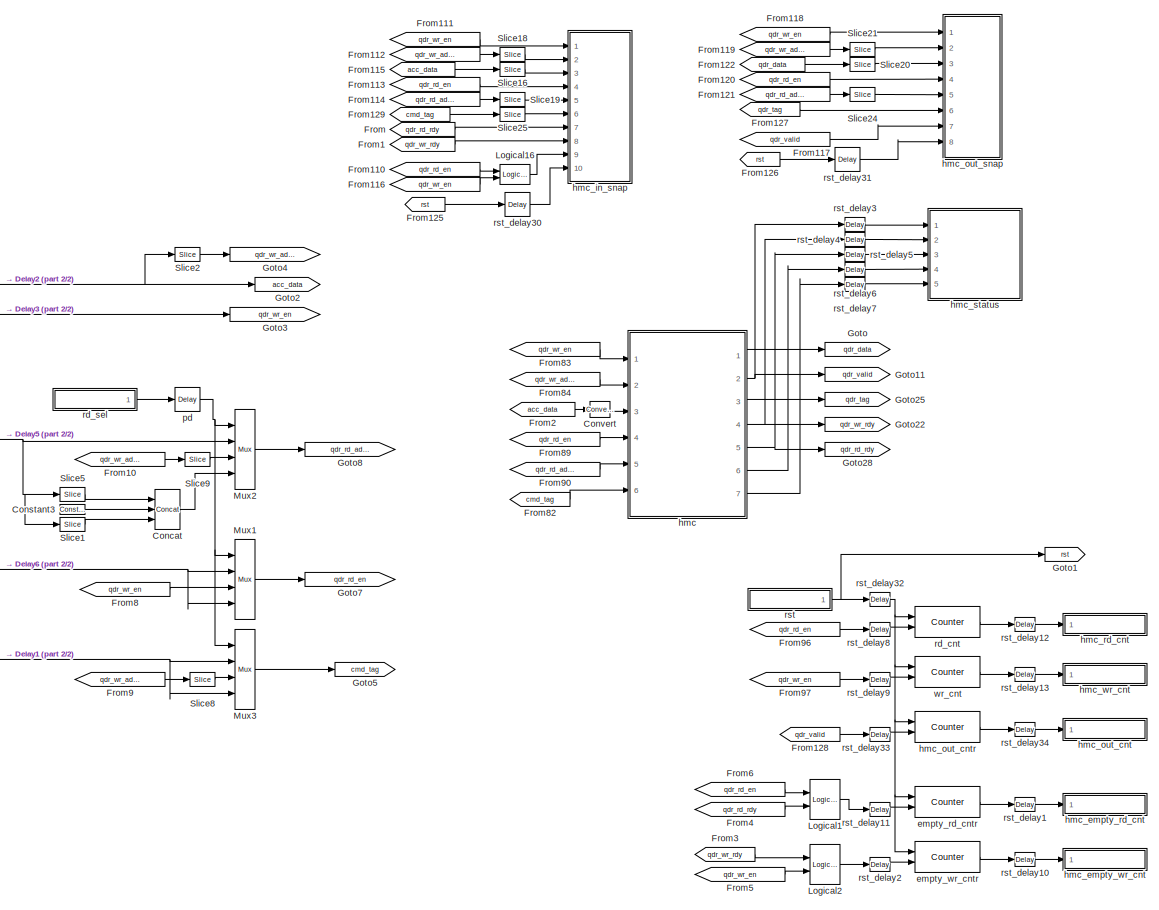
[diagram: root canvas - part 1/2, right side, full height]
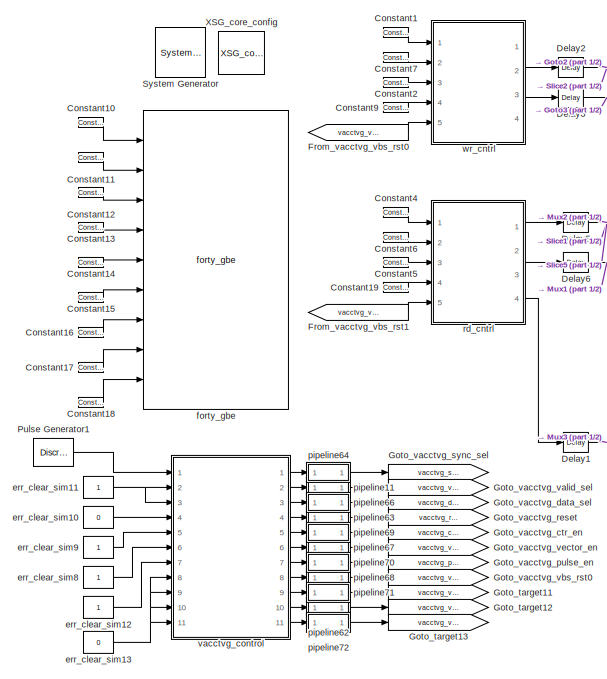
[diagram: root canvas - part 2/2, middle left region]
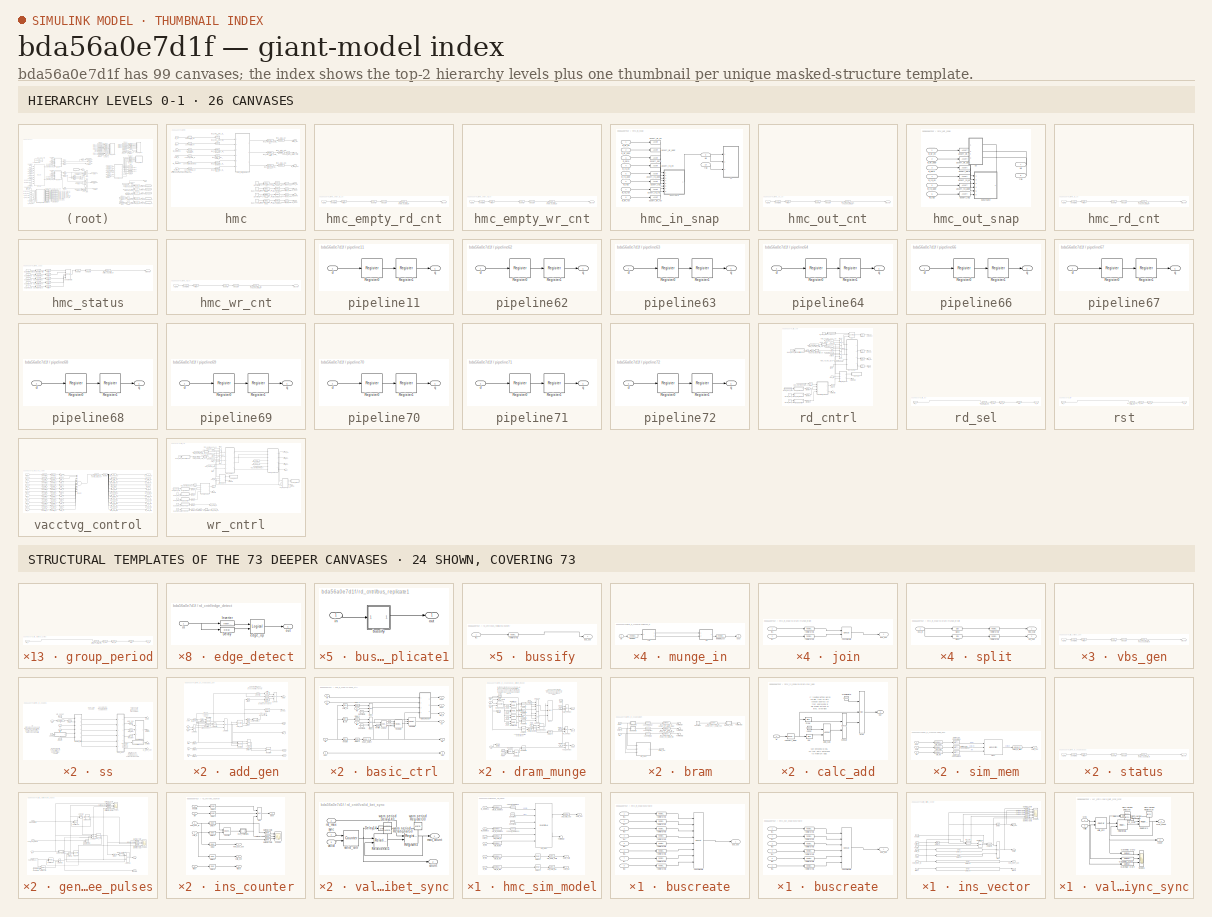
[diagram: thumbnail index - top-2 hierarchy levels (26 canvases) + 24 structural-template representatives of the remaining 73 canvases]
MODEL slx_bda56a0e7d1f
KIND model
CONFIG AbsTol = auto
CONFIG EnableMultiTasking = on
CONFIG FixedStep = auto
CONFIG MaxStep = auto
CONFIG MinStep = auto
CONFIG RelTol = 1e-3
CONFIG SampleTimeConstraint = Unconstrained
CONFIG Solver = ode45
CONFIG SolverName = ode45
CONFIG StartTime = 0.0
CONFIG StopTime = 400000
BLOCK [Reference]  System Generator  REF=xbsIndex_r4/ System Generator
  AttributesFormatString = System\nGenerator
  Ports = []
  SourceBlock = xbsIndex_r4/ System Generator
  SourceType = Xilinx System Generator Block
  Tag = genX
  UserDataPersistent = on
BLOCK [Reference] Concat  REF=xbsIndex_r4/Concat
  Ports = [3, 1]
  SourceBlock = xbsIndex_r4/Concat
  SourceType = Xilinx Bus Concatenator Block
BLOCK [Reference] Constant1  REF=xbsIndex_r4/Constant
  Ports = [0, 1]
  SourceBlock = xbsIndex_r4/Constant
  SourceType = Xilinx Constant Block Block
BLOCK [Reference] Constant10  REF=xbsIndex_r4/Constant
  Ports = [0, 1]
  SourceBlock = xbsIndex_r4/Constant
  SourceType = Xilinx Constant Block Block
BLOCK [Reference] Constant11  REF=xbsIndex_r4/Constant
  Ports = [0, 1]
  SourceBlock = xbsIndex_r4/Constant
  SourceType = Xilinx Constant Block Block
BLOCK [Reference] Constant12  REF=xbsIndex_r4/Constant
  Ports = [0, 1]
  SourceBlock = xbsIndex_r4/Constant
  SourceType = Xilinx Constant Block Block
BLOCK [Reference] Constant13  REF=xbsIndex_r4/Constant
  Ports = [0, 1]
  SourceBlock = xbsIndex_r4/Constant
  SourceType = Xilinx Constant Block Block
BLOCK [Reference] Constant14  REF=xbsIndex_r4/Constant
  Ports = [0, 1]
  SourceBlock = xbsIndex_r4/Constant
  SourceType = Xilinx Constant Block Block
BLOCK [Reference] Constant15  REF=xbsIndex_r4/Constant
  Ports = [0, 1]
  SourceBlock = xbsIndex_r4/Constant
  SourceType = Xilinx Constant Block Block
BLOCK [Reference] Constant16  REF=xbsIndex_r4/Constant
  Ports = [0, 1]
  SourceBlock = xbsIndex_r4/Constant
  SourceType = Xilinx Constant Block Block
BLOCK [Reference] Constant17  REF=xbsIndex_r4/Constant
  Ports = [0, 1]
  SourceBlock = xbsIndex_r4/Constant
  SourceType = Xilinx Constant Block Block
BLOCK [Reference] Constant18  REF=xbsIndex_r4/Constant
  Ports = [0, 1]
  SourceBlock = xbsIndex_r4/Constant
  SourceType = Xilinx Constant Block Block
BLOCK [Reference] Constant19  REF=xbsIndex_r4/Constant
  Ports = [0, 1]
  SourceBlock = xbsIndex_r4/Constant
  SourceType = Xilinx Constant Block Block
BLOCK [Reference] Constant2  REF=xbsIndex_r4/Constant
  Ports = [0, 1]
  SourceBlock = xbsIndex_r4/Constant
  SourceType = Xilinx Constant Block Block
BLOCK [Reference] Constant3  REF=xbsIndex_r4/Constant
  Ports = [0, 1]
  SourceBlock = xbsIndex_r4/Constant
  SourceType = Xilinx Constant Block Block
BLOCK [Reference] Constant4  REF=xbsIndex_r4/Constant
  Ports = [0, 1]
  SourceBlock = xbsIndex_r4/Constant
  SourceType = Xilinx Constant Block Block
BLOCK [Reference] Constant5  REF=xbsIndex_r4/Constant
  Ports = [0, 1]
  SourceBlock = xbsIndex_r4/Constant
  SourceType = Xilinx Constant Block Block
BLOCK [Reference] Constant6  REF=xbsIndex_r4/Constant
  Ports = [0, 1]
  SourceBlock = xbsIndex_r4/Constant
  SourceType = Xilinx Constant Block Block
BLOCK [Reference] Constant7  REF=xbsIndex_r4/Constant
  Ports = [0, 1]
  SourceBlock = xbsIndex_r4/Constant
  SourceType = Xilinx Constant Block Block
BLOCK [Reference] Constant9  REF=xbsIndex_r4/Constant
  Ports = [0, 1]
  SourceBlock = xbsIndex_r4/Constant
  SourceType = Xilinx Constant Block Block
BLOCK [Reference] Convert  REF=xbsIndex_r4/Convert
  Ports = [1, 1]
  SourceBlock = xbsIndex_r4/Convert
  SourceType = Xilinx Type Converter Block
BLOCK [Reference] Delay1  REF=xbsIndex_r4/Delay
  Ports = [1, 1]
  SourceBlock = xbsIndex_r4/Delay
  SourceType = Xilinx Delay Block
BLOCK [Reference] Delay2  REF=xbsIndex_r4/Delay
  Ports = [1, 1]
  SourceBlock = xbsIndex_r4/Delay
  SourceType = Xilinx Delay Block
BLOCK [Reference] Delay3  REF=xbsIndex_r4/Delay
  Ports = [1, 1]
  SourceBlock = xbsIndex_r4/Delay
  SourceType = Xilinx Delay Block
BLOCK [Reference] Delay5  REF=xbsIndex_r4/Delay
  Ports = [1, 1]
  SourceBlock = xbsIndex_r4/Delay
  SourceType = Xilinx Delay Block
BLOCK [Reference] Delay6  REF=xbsIndex_r4/Delay
  Ports = [1, 1]
  SourceBlock = xbsIndex_r4/Delay
  SourceType = Xilinx Delay Block
BLOCK [From] From
  GotoTag = qdr_rd_rdy
BLOCK [From] From1
  GotoTag = qdr_wr_rdy
BLOCK [From] From10
  CloseFcn = tagdialog Close
  GotoTag = qdr_wr_addr
BLOCK [From] From110
  CloseFcn = tagdialog Close
  GotoTag = qdr_rd_en
BLOCK [From] From111
  CloseFcn = tagdialog Close
  GotoTag = qdr_wr_en
BLOCK [From] From112
  CloseFcn = tagdialog Close
  GotoTag = qdr_wr_addr
BLOCK [From] From113
  CloseFcn = tagdialog Close
  GotoTag = qdr_rd_en
BLOCK [From] From114
  CloseFcn = tagdialog Close
  GotoTag = qdr_rd_addr
BLOCK [From] From115
  GotoTag = acc_data
BLOCK [From] From116
  CloseFcn = tagdialog Close
  GotoTag = qdr_wr_en
BLOCK [From] From117
  CloseFcn = tagdialog Close
  GotoTag = qdr_valid
BLOCK [From] From118
  CloseFcn = tagdialog Close
  GotoTag = qdr_wr_en
BLOCK [From] From119
  CloseFcn = tagdialog Close
  GotoTag = qdr_wr_addr
BLOCK [From] From120
  CloseFcn = tagdialog Close
  GotoTag = qdr_rd_en
BLOCK [From] From121
  CloseFcn = tagdialog Close
  GotoTag = qdr_rd_addr
BLOCK [From] From122
  GotoTag = qdr_data
BLOCK [From] From125
  CloseFcn = tagdialog Close
  GotoTag = rst
BLOCK [From] From126
  CloseFcn = tagdialog Close
  GotoTag = rst
BLOCK [From] From127
  CloseFcn = tagdialog Close
  GotoTag = qdr_tag
BLOCK [From] From128
  CloseFcn = tagdialog Close
  GotoTag = qdr_valid
BLOCK [From] From129
  CloseFcn = tagdialog Close
  GotoTag = cmd_tag
BLOCK [From] From2
  GotoTag = acc_data
BLOCK [From] From3
  CloseFcn = tagdialog Close
  GotoTag = qdr_wr_rdy
BLOCK [From] From4
  CloseFcn = tagdialog Close
  GotoTag = qdr_rd_rdy
BLOCK [From] From5
  CloseFcn = tagdialog Close
  GotoTag = qdr_wr_en
BLOCK [From] From6
  CloseFcn = tagdialog Close
  GotoTag = qdr_rd_en
BLOCK [From] From8
  CloseFcn = tagdialog Close
  GotoTag = qdr_wr_en
BLOCK [From] From82
  CloseFcn = tagdialog Close
  GotoTag = cmd_tag
BLOCK [From] From83
  CloseFcn = tagdialog Close
  GotoTag = qdr_wr_en
BLOCK [From] From84
  CloseFcn = tagdialog Close
  GotoTag = qdr_wr_addr
BLOCK [From] From89
  CloseFcn = tagdialog Close
  GotoTag = qdr_rd_en
BLOCK [From] From9
  CloseFcn = tagdialog Close
  GotoTag = qdr_wr_addr
BLOCK [From] From90
  CloseFcn = tagdialog Close
  GotoTag = qdr_rd_addr
BLOCK [From] From96
  CloseFcn = tagdialog Close
  GotoTag = qdr_rd_en
BLOCK [From] From97
  CloseFcn = tagdialog Close
  GotoTag = qdr_wr_en
BLOCK [From] From_vacctvg_vbs_rst0
  GotoTag = vacctvg_vbs_rst0
  TagVisibility = global
BLOCK [From] From_vacctvg_vbs_rst1
  GotoTag = vacctvg_vbs_rst0
  TagVisibility = global
BLOCK [Goto] Goto
  GotoTag = qdr_data
BLOCK [Goto] Goto1
  GotoTag = rst
BLOCK [Goto] Goto11
  GotoTag = qdr_valid
BLOCK [Goto] Goto2
  GotoTag = acc_data
BLOCK [Goto] Goto22
  GotoTag = qdr_wr_rdy
BLOCK [Goto] Goto25
  GotoTag = qdr_tag
BLOCK [Goto] Goto28
  GotoTag = qdr_rd_rdy
BLOCK [Goto] Goto3
  GotoTag = qdr_wr_en
BLOCK [Goto] Goto4
  GotoTag = qdr_wr_addr
BLOCK [Goto] Goto5
  GotoTag = cmd_tag
BLOCK [Goto] Goto7
  GotoTag = qdr_rd_en
BLOCK [Goto] Goto8
  GotoTag = qdr_rd_addr
BLOCK [Goto] Goto_target11
  GotoTag = vacctvg_vbs_rst1
  TagVisibility = global
BLOCK [Goto] Goto_target12
  GotoTag = vacctvg_vbs_rst2
  TagVisibility = global
BLOCK [Goto] Goto_target13
  GotoTag = vacctvg_vbs_rst3
  TagVisibility = global
BLOCK [Goto] Goto_vacctvg_ctr_en
  GotoTag = vacctvg_ctr_en
  TagVisibility = global
BLOCK [Goto] Goto_vacctvg_data_sel
  GotoTag = vacctvg_data_sel
  TagVisibility = global
BLOCK [Goto] Goto_vacctvg_pulse_en
  GotoTag = vacctvg_pulse_en
  TagVisibility = global
BLOCK [Goto] Goto_vacctvg_reset
  GotoTag = vacctvg_reset
  TagVisibility = global
BLOCK [Goto] Goto_vacctvg_sync_sel
  GotoTag = vacctvg_sync_sel
  TagVisibility = global
BLOCK [Goto] Goto_vacctvg_valid_sel
  GotoTag = vacctvg_valid_sel
  TagVisibility = global
BLOCK [Goto] Goto_vacctvg_vbs_rst0
  GotoTag = vacctvg_vbs_rst0
  TagVisibility = global
BLOCK [Goto] Goto_vacctvg_vector_en
  GotoTag = vacctvg_vector_en
  TagVisibility = global
BLOCK [Reference] Logical1  REF=xbsIndex_r4/Logical
  Ports = [2, 1]
  SourceBlock = xbsIndex_r4/Logical
  SourceType = Xilinx Logical Block Block
BLOCK [Reference] Logical16  REF=xbsIndex_r4/Logical
  Ports = [2, 1]
  SourceBlock = xbsIndex_r4/Logical
  SourceType = Xilinx Logical Block Block
BLOCK [Reference] Logical2  REF=xbsIndex_r4/Logical
  Ports = [2, 1]
  SourceBlock = xbsIndex_r4/Logical
  SourceType = Xilinx Logical Block Block
BLOCK [Reference] Mux1  REF=xbsIndex_r4/Mux
  Ports = [4, 1]
  SourceBlock = xbsIndex_r4/Mux
  SourceType = Xilinx Bus Multiplexer Block
BLOCK [Reference] Mux2  REF=xbsIndex_r4/Mux
  Ports = [4, 1]
  SourceBlock = xbsIndex_r4/Mux
  SourceType = Xilinx Bus Multiplexer Block
BLOCK [Reference] Mux3  REF=xbsIndex_r4/Mux
  Ports = [4, 1]
  SourceBlock = xbsIndex_r4/Mux
  SourceType = Xilinx Bus Multiplexer Block
BLOCK [DiscretePulseGenerator] Pulse Generator1
  Period = 99999999
  PhaseDelay = 1000
  Ports = [0, 1]
BLOCK [Reference] Slice1  REF=xbsIndex_r4/Slice
  Ports = [1, 1]
  SourceBlock = xbsIndex_r4/Slice
  SourceType = Xilinx Bit Slice Extractor Block
BLOCK [Reference] Slice16  REF=xbsIndex_r4/Slice
  Ports = [1, 1]
  SourceBlock = xbsIndex_r4/Slice
  SourceType = Xilinx Bit Slice Extractor Block
BLOCK [Reference] Slice18  REF=xbsIndex_r4/Slice
  Ports = [1, 1]
  SourceBlock = xbsIndex_r4/Slice
  SourceType = Xilinx Bit Slice Extractor Block
BLOCK [Reference] Slice19  REF=xbsIndex_r4/Slice
  Ports = [1, 1]
  SourceBlock = xbsIndex_r4/Slice
  SourceType = Xilinx Bit Slice Extractor Block
BLOCK [Reference] Slice2  REF=xbsIndex_r4/Slice
  Ports = [1, 1]
  SourceBlock = xbsIndex_r4/Slice
  SourceType = Xilinx Bit Slice Extractor Block
BLOCK [Reference] Slice20  REF=xbsIndex_r4/Slice
  Ports = [1, 1]
  SourceBlock = xbsIndex_r4/Slice
  SourceType = Xilinx Bit Slice Extractor Block
BLOCK [Reference] Slice21  REF=xbsIndex_r4/Slice
  Ports = [1, 1]
  SourceBlock = xbsIndex_r4/Slice
  SourceType = Xilinx Bit Slice Extractor Block
BLOCK [Reference] Slice24  REF=xbsIndex_r4/Slice
  Ports = [1, 1]
  SourceBlock = xbsIndex_r4/Slice
  SourceType = Xilinx Bit Slice Extractor Block
BLOCK [Reference] Slice25  REF=xbsIndex_r4/Slice
  Ports = [1, 1]
  SourceBlock = xbsIndex_r4/Slice
  SourceType = Xilinx Bit Slice Extractor Block
BLOCK [Reference] Slice5  REF=xbsIndex_r4/Slice
  Ports = [1, 1]
  SourceBlock = xbsIndex_r4/Slice
  SourceType = Xilinx Bit Slice Extractor Block
BLOCK [Reference] Slice8  REF=xbsIndex_r4/Slice
  Ports = [1, 1]
  SourceBlock = xbsIndex_r4/Slice
  SourceType = Xilinx Bit Slice Extractor Block
BLOCK [Reference] Slice9  REF=xbsIndex_r4/Slice
  Ports = [1, 1]
  SourceBlock = xbsIndex_r4/Slice
  SourceType = Xilinx Bit Slice Extractor Block
BLOCK [Reference] XSG_core_config  REF=xps_library/XSG_core_config  (lib defined in mdl_00b5cec29cd0, mdl_02ab6ecaa3d1, +5 more)
  Ports = []
  SourceBlock = xps_library/XSG_core_config
  SourceType = xsg core config
  Tag = xps:xsg
BLOCK [Reference] empty_rd_cntr  REF=xbsIndex_r4/Counter
  Ports = [2, 1]
  SourceBlock = xbsIndex_r4/Counter
  SourceType = Xilinx Counter Block
BLOCK [Reference] empty_wr_cntr  REF=xbsIndex_r4/Counter
  Ports = [2, 1]
  SourceBlock = xbsIndex_r4/Counter
  SourceType = Xilinx Counter Block
BLOCK [Constant] err_clear_sim10
  Value = 0
BLOCK [Constant] err_clear_sim11
BLOCK [Constant] err_clear_sim12
BLOCK [Constant] err_clear_sim13
  Value = 0
BLOCK [Constant] err_clear_sim8
BLOCK [Constant] err_clear_sim9
BLOCK [Reference] forty_gbe  REF=xps_library/forty_gbe  (lib defined in mdl_00b5cec29cd0, mdl_02ab6ecaa3d1, +5 more)
  Ports = [9, 12]
  SourceBlock = xps_library/forty_gbe
  SourceType = forty_gbe
  Tag = xps:forty_gbe
BLOCK [SubSystem] hmc
  AncestorBlock = xps_library/hmc
  Ports = [6, 7]
  RequestExecContextInheritance = off
  Tag = xps:hmc
  Variant = off
BLOCK [Constant] hmc/Constant2
BLOCK [Constant] hmc/Constant3
BLOCK [Reference] hmc/convert_data_in  REF=xbsIndex_r4/Convert
  Ports = [1, 1]
  SourceBlock = xbsIndex_r4/Convert
  SourceType = Xilinx Type Converter Block
BLOCK [Reference] hmc/convert_init_done  REF=xbsIndex_r4/Convert
  Ports = [1, 1]
  SourceBlock = xbsIndex_r4/Convert
  SourceType = Xilinx Type Converter Block
BLOCK [Reference] hmc/convert_post_ok  REF=xbsIndex_r4/Convert
  Ports = [1, 1]
  SourceBlock = xbsIndex_r4/Convert
  SourceType = Xilinx Type Converter Block
BLOCK [Reference] hmc/convert_post_ok1  REF=xbsIndex_r4/Convert
  Ports = [1, 1]
  SourceBlock = xbsIndex_r4/Convert
  SourceType = Xilinx Type Converter Block
BLOCK [Reference] hmc/convert_rd_address  REF=xbsIndex_r4/Convert
  Ports = [1, 1]
  SourceBlock = xbsIndex_r4/Convert
  SourceType = Xilinx Type Converter Block
BLOCK [Reference] hmc/convert_rd_en  REF=xbsIndex_r4/Convert
  Ports = [1, 1]
  SourceBlock = xbsIndex_r4/Convert
  SourceType = Xilinx Type Converter Block
BLOCK [Reference] hmc/convert_rd_ready  REF=xbsIndex_r4/Convert
  Ports = [1, 1]
  SourceBlock = xbsIndex_r4/Convert
  SourceType = Xilinx Type Converter Block
BLOCK [Reference] hmc/convert_rd_tag_in  REF=xbsIndex_r4/Convert
  Ports = [1, 1]
  SourceBlock = xbsIndex_r4/Convert
  SourceType = Xilinx Type Converter Block
BLOCK [Reference] hmc/convert_wr_address  REF=xbsIndex_r4/Convert
  Ports = [1, 1]
  SourceBlock = xbsIndex_r4/Convert
  SourceType = Xilinx Type Converter Block
BLOCK [Reference] hmc/convert_wr_en  REF=xbsIndex_r4/Convert
  Ports = [1, 1]
  SourceBlock = xbsIndex_r4/Convert
  SourceType = Xilinx Type Converter Block
BLOCK [Reference] hmc/convert_wr_ready  REF=xbsIndex_r4/Convert
  Ports = [1, 1]
  SourceBlock = xbsIndex_r4/Convert
  SourceType = Xilinx Type Converter Block
BLOCK [Inport] hmc/data_in
  IconDisplay = Port number
  Port = 3
BLOCK [Outport] hmc/data_out
  IconDisplay = Port number
BLOCK [Outport] hmc/data_valid 
  IconDisplay = Port number
  Port = 2
BLOCK [Reference] hmc/force_data_out  REF=xbsIndex_r4/Reinterpret
  Ports = [1, 1]
  SourceBlock = xbsIndex_r4/Reinterpret
  SourceType = Xilinx Type Reinterpreter Block
BLOCK [Reference] hmc/force_data_out1  REF=xbsIndex_r4/Reinterpret
  Ports = [1, 1]
  SourceBlock = xbsIndex_r4/Reinterpret
  SourceType = Xilinx Type Reinterpreter Block
BLOCK [Reference] hmc/force_data_out2  REF=xbsIndex_r4/Reinterpret
  Ports = [1, 1]
  SourceBlock = xbsIndex_r4/Reinterpret
  SourceType = Xilinx Type Reinterpreter Block
BLOCK [Reference] hmc/force_init_done  REF=xbsIndex_r4/Reinterpret
  Ports = [1, 1]
  SourceBlock = xbsIndex_r4/Reinterpret
  SourceType = Xilinx Type Reinterpreter Block
BLOCK [Reference] hmc/force_post_ok  REF=xbsIndex_r4/Reinterpret
  Ports = [1, 1]
  SourceBlock = xbsIndex_r4/Reinterpret
  SourceType = Xilinx Type Reinterpreter Block
BLOCK [Reference] hmc/force_rd_ready  REF=xbsIndex_r4/Reinterpret
  Ports = [1, 1]
  SourceBlock = xbsIndex_r4/Reinterpret
  SourceType = Xilinx Type Reinterpreter Block
BLOCK [Reference] hmc/force_wr_ready  REF=xbsIndex_r4/Reinterpret
  Ports = [1, 1]
  SourceBlock = xbsIndex_r4/Reinterpret
  SourceType = Xilinx Type Reinterpreter Block
BLOCK [SubSystem] hmc/hmc_sim_model
  Ports = [6, 3]
  RequestExecContextInheritance = off
  Variant = off
BLOCK [Reference] hmc/hmc_sim_model/Constant  REF=xbsIndex_r4/Constant
  Ports = [0, 1]
  SourceBlock = xbsIndex_r4/Constant
  SourceType = Xilinx Constant Block Block
BLOCK [Reference] hmc/hmc_sim_model/Constant1  REF=xbsIndex_r4/Constant
  Ports = [0, 1]
  SourceBlock = xbsIndex_r4/Constant
  SourceType = Xilinx Constant Block Block
BLOCK [Reference] hmc/hmc_sim_model/Delay2  REF=xbsIndex_r4/Delay
  Ports = [1, 1]
  SourceBlock = xbsIndex_r4/Delay
  SourceType = Xilinx Delay Block
BLOCK [Reference] hmc/hmc_sim_model/Delay3  REF=xbsIndex_r4/Delay
  Ports = [1, 1]
  SourceBlock = xbsIndex_r4/Delay
  SourceType = Xilinx Delay Block
BLOCK [Terminator] hmc/hmc_sim_model/Terminator
BLOCK [Reference] hmc/hmc_sim_model/convert_address  REF=xbsIndex_r4/Convert
  Ports = [1, 1]
  SourceBlock = xbsIndex_r4/Convert
  SourceType = Xilinx Type Converter Block
BLOCK [Reference] hmc/hmc_sim_model/convert_address1  REF=xbsIndex_r4/Convert
  Ports = [1, 1]
  SourceBlock = xbsIndex_r4/Convert
  SourceType = Xilinx Type Converter Block
BLOCK [Inport] hmc/hmc_sim_model/data_in
  IconDisplay = Port number
  Port = 4
BLOCK [Outport] hmc/hmc_sim_model/data_out
  IconDisplay = Port number
BLOCK [Outport] hmc/hmc_sim_model/data_tag
  IconDisplay = Port number
  Port = 3
BLOCK [Outport] hmc/hmc_sim_model/data_valid
  IconDisplay = Port number
  Port = 2
BLOCK [Inport] hmc/hmc_sim_model/rd_address
  IconDisplay = Port number
  Port = 5
BLOCK [Inport] hmc/hmc_sim_model/rd_req
  IconDisplay = Port number
BLOCK [Inport] hmc/hmc_sim_model/rd_tag
  IconDisplay = Port number
  Port = 6
BLOCK [Reference] hmc/hmc_sim_model/sim_bram  REF=xbsIndex_r4/Dual Port RAM
  Ports = [6, 2]
  SourceBlock = xbsIndex_r4/Dual Port RAM
  SourceType = Xilinx Dual Port Random Access Memory Block
BLOCK [Reference] hmc/hmc_sim_model/sim_data_in  REF=xbsIndex_r4/Gateway In
  Ports = [1, 1]
  SourceBlock = xbsIndex_r4/Gateway In
  SourceType = Xilinx Gateway In Block
BLOCK [Reference] hmc/hmc_sim_model/sim_data_out  REF=xbsIndex_r4/Gateway Out
  Ports = [1, 1]
  SourceBlock = xbsIndex_r4/Gateway Out
  SourceType = Xilinx Gateway Out Block
BLOCK [Reference] hmc/hmc_sim_model/sim_data_tag  REF=xbsIndex_r4/Gateway Out
  Ports = [1, 1]
  SourceBlock = xbsIndex_r4/Gateway Out
  SourceType = Xilinx Gateway Out Block
BLOCK [Reference] hmc/hmc_sim_model/sim_data_valid  REF=xbsIndex_r4/Gateway Out
  Ports = [1, 1]
  SourceBlock = xbsIndex_r4/Gateway Out
  SourceType = Xilinx Gateway Out Block
BLOCK [Reference] hmc/hmc_sim_model/sim_rd_address  REF=xbsIndex_r4/Gateway In
  Ports = [1, 1]
  SourceBlock = xbsIndex_r4/Gateway In
  SourceType = Xilinx Gateway In Block
BLOCK [Reference] hmc/hmc_sim_model/sim_rd_req  REF=xbsIndex_r4/Gateway In
  Ports = [1, 1]
  SourceBlock = xbsIndex_r4/Gateway In
  SourceType = Xilinx Gateway In Block
BLOCK [Reference] hmc/hmc_sim_model/sim_rd_tag  REF=xbsIndex_r4/Gateway In
  Ports = [1, 1]
  SourceBlock = xbsIndex_r4/Gateway In
  SourceType = Xilinx Gateway In Block
BLOCK [Reference] hmc/hmc_sim_model/sim_wr_address  REF=xbsIndex_r4/Gateway In
  Ports = [1, 1]
  SourceBlock = xbsIndex_r4/Gateway In
  SourceType = Xilinx Gateway In Block
BLOCK [Reference] hmc/hmc_sim_model/sim_wr_req  REF=xbsIndex_r4/Gateway In
  Ports = [1, 1]
  SourceBlock = xbsIndex_r4/Gateway In
  SourceType = Xilinx Gateway In Block
BLOCK [Inport] hmc/hmc_sim_model/wr_address
  IconDisplay = Port number
  Port = 3
BLOCK [Inport] hmc/hmc_sim_model/wr_req
  IconDisplay = Port number
  Port = 2
BLOCK [Outport] hmc/init_done
  IconDisplay = Port number
  Port = 6
BLOCK [Outport] hmc/post_ok
  IconDisplay = Port number
  Port = 7
BLOCK [Inport] hmc/rd_address
  IconDisplay = Port number
  Port = 5
BLOCK [Inport] hmc/rd_en
  IconDisplay = Port number
  Port = 4
BLOCK [Outport] hmc/rd_ready
  IconDisplay = Port number
  Port = 5
BLOCK [Inport] hmc/rd_tag_in
  IconDisplay = Port number
  Port = 6
BLOCK [Outport] hmc/rd_tag_out
  IconDisplay = Port number
  Port = 3
BLOCK [Constant] hmc/ready_constant
BLOCK [Constant] hmc/ready_constant1
BLOCK [Reference] hmc/test_hmc_hmc_data_in  REF=xbsIndex_r4/Gateway Out
  Ports = [1, 1]
  SourceBlock = xbsIndex_r4/Gateway Out
  SourceType = Xilinx Gateway Out Block
BLOCK [Reference] hmc/test_hmc_hmc_data_out  REF=xbsIndex_r4/Gateway In
  Ports = [1, 1]
  SourceBlock = xbsIndex_r4/Gateway In
  SourceType = Xilinx Gateway In Block
BLOCK [Reference] hmc/test_hmc_hmc_data_valid  REF=xbsIndex_r4/Gateway In
  Ports = [1, 1]
  SourceBlock = xbsIndex_r4/Gateway In
  SourceType = Xilinx Gateway In Block
BLOCK [Reference] hmc/test_hmc_hmc_init_done  REF=xbsIndex_r4/Gateway In
  Ports = [1, 1]
  SourceBlock = xbsIndex_r4/Gateway In
  SourceType = Xilinx Gateway In Block
BLOCK [Reference] hmc/test_hmc_hmc_post_ok  REF=xbsIndex_r4/Gateway In
  Ports = [1, 1]
  SourceBlock = xbsIndex_r4/Gateway In
  SourceType = Xilinx Gateway In Block
BLOCK [Reference] hmc/test_hmc_hmc_rd_address  REF=xbsIndex_r4/Gateway Out
  Ports = [1, 1]
  SourceBlock = xbsIndex_r4/Gateway Out
  SourceType = Xilinx Gateway Out Block
BLOCK [Reference] hmc/test_hmc_hmc_rd_en  REF=xbsIndex_r4/Gateway Out
  Ports = [1, 1]
  SourceBlock = xbsIndex_r4/Gateway Out
  SourceType = Xilinx Gateway Out Block
BLOCK [Reference] hmc/test_hmc_hmc_rd_ready  REF=xbsIndex_r4/Gateway In
  Ports = [1, 1]
  SourceBlock = xbsIndex_r4/Gateway In
  SourceType = Xilinx Gateway In Block
BLOCK [Reference] hmc/test_hmc_hmc_rd_tag_in  REF=xbsIndex_r4/Gateway Out
  Ports = [1, 1]
  SourceBlock = xbsIndex_r4/Gateway Out
  SourceType = Xilinx Gateway Out Block
BLOCK [Reference] hmc/test_hmc_hmc_rd_tag_out  REF=xbsIndex_r4/Gateway In
  Ports = [1, 1]
  SourceBlock = xbsIndex_r4/Gateway In
  SourceType = Xilinx Gateway In Block
BLOCK [Reference] hmc/test_hmc_hmc_wr_address  REF=xbsIndex_r4/Gateway Out
  Ports = [1, 1]
  SourceBlock = xbsIndex_r4/Gateway Out
  SourceType = Xilinx Gateway Out Block
BLOCK [Reference] hmc/test_hmc_hmc_wr_en  REF=xbsIndex_r4/Gateway Out
  Ports = [1, 1]
  SourceBlock = xbsIndex_r4/Gateway Out
  SourceType = Xilinx Gateway Out Block
BLOCK [Reference] hmc/test_hmc_hmc_wr_ready  REF=xbsIndex_r4/Gateway In
  Ports = [1, 1]
  SourceBlock = xbsIndex_r4/Gateway In
  SourceType = Xilinx Gateway In Block
BLOCK [Inport] hmc/wr_address
  IconDisplay = Port number
  Port = 2
BLOCK [Inport] hmc/wr_en
  IconDisplay = Port number
BLOCK [Outport] hmc/wr_ready
  IconDisplay = Port number
  Port = 4
BLOCK [SubSystem] hmc_empty_rd_cnt
  AncestorBlock = xps_library/software_register
  AttributesFormatString = 1output:uf32.0 = 32 bits
  Ports = [1]
  RequestExecContextInheritance = off
  Tag = xps:sw_reg
  Variant = off
BLOCK [Reference] hmc_empty_rd_cnt/assert_reg  REF=xbsIndex_r4/Assert
  Ports = [1, 1]
  SourceBlock = xbsIndex_r4/Assert
  SourceType = Xilinx Assert Block
BLOCK [Reference] hmc_empty_rd_cnt/cast_gw  REF=xbsIndex_r4/Convert
  Ports = [1, 1]
  SourceBlock = xbsIndex_r4/Convert
  SourceType = Xilinx Type Converter Block
BLOCK [Reference] hmc_empty_rd_cnt/io_delay  REF=xbsIndex_r4/Delay
  Ports = [1, 1]
  SourceBlock = xbsIndex_r4/Delay
  SourceType = Xilinx Delay Block
BLOCK [Inport] hmc_empty_rd_cnt/out_reg
  IconDisplay = Port number
BLOCK [Reference] hmc_empty_rd_cnt/reint1  REF=xbsIndex_r4/Reinterpret
  Ports = [1, 1]
  SourceBlock = xbsIndex_r4/Reinterpret
  SourceType = Xilinx Type Reinterpreter Block
BLOCK [Terminator] hmc_empty_rd_cnt/sim_out
BLOCK [Reference] hmc_empty_rd_cnt/test_hmc_hmc_empty_rd_cnt_user_data_in  REF=xbsIndex_r4/Gateway Out
  Ports = [1, 1]
  SourceBlock = xbsIndex_r4/Gateway Out
  SourceType = Xilinx Gateway Out Block
BLOCK [SubSystem] hmc_empty_wr_cnt
  AncestorBlock = xps_library/software_register
  AttributesFormatString = 1output:uf32.0 = 32 bits
  Ports = [1]
  RequestExecContextInheritance = off
  Tag = xps:sw_reg
  Variant = off
BLOCK [Reference] hmc_empty_wr_cnt/assert_reg  REF=xbsIndex_r4/Assert
  Ports = [1, 1]
  SourceBlock = xbsIndex_r4/Assert
  SourceType = Xilinx Assert Block
BLOCK [Reference] hmc_empty_wr_cnt/cast_gw  REF=xbsIndex_r4/Convert
  Ports = [1, 1]
  SourceBlock = xbsIndex_r4/Convert
  SourceType = Xilinx Type Converter Block
BLOCK [Reference] hmc_empty_wr_cnt/io_delay  REF=xbsIndex_r4/Delay
  Ports = [1, 1]
  SourceBlock = xbsIndex_r4/Delay
  SourceType = Xilinx Delay Block
BLOCK [Inport] hmc_empty_wr_cnt/out_reg
  IconDisplay = Port number
BLOCK [Reference] hmc_empty_wr_cnt/reint1  REF=xbsIndex_r4/Reinterpret
  Ports = [1, 1]
  SourceBlock = xbsIndex_r4/Reinterpret
  SourceType = Xilinx Type Reinterpreter Block
BLOCK [Terminator] hmc_empty_wr_cnt/sim_out
BLOCK [Reference] hmc_empty_wr_cnt/test_hmc_hmc_empty_wr_cnt_user_data_in  REF=xbsIndex_r4/Gateway Out
  Ports = [1, 1]
  SourceBlock = xbsIndex_r4/Gateway Out
  SourceType = Xilinx Gateway Out Block
BLOCK [SubSystem] hmc_in_snap
  AncestorBlock = casper_library_scopes/bitfield snapshot
  AttributesFormatString = snap(8):b,uf11.0,uf11.0,b,uf11.0,uf9.0,b,b = 46 bits
  Ports = [10]
  RequestExecContextInheritance = off
  Tag = casper:bitsnap
  UserDataPersistent = on
  Variant = off
BLOCK [Reference] hmc_in_snap/assert_data  REF=xbsIndex_r4/Assert
  Ports = [1, 1]
  SourceBlock = xbsIndex_r4/Assert
  SourceType = Xilinx Assert Block
BLOCK [Reference] hmc_in_snap/assert_rd_addr  REF=xbsIndex_r4/Assert
  Ports = [1, 1]
  SourceBlock = xbsIndex_r4/Assert
  SourceType = Xilinx Assert Block
BLOCK [Reference] hmc_in_snap/assert_rd_en  REF=xbsIndex_r4/Assert
  Ports = [1, 1]
  SourceBlock = xbsIndex_r4/Assert
  SourceType = Xilinx Assert Block
BLOCK [Reference] hmc_in_snap/assert_rd_rdy  REF=xbsIndex_r4/Assert
  Ports = [1, 1]
  SourceBlock = xbsIndex_r4/Assert
  SourceType = Xilinx Assert Block
BLOCK [Reference] hmc_in_snap/assert_tag  REF=xbsIndex_r4/Assert
  Ports = [1, 1]
  SourceBlock = xbsIndex_r4/Assert
  SourceType = Xilinx Assert Block
BLOCK [Reference] hmc_in_snap/assert_wr_addr  REF=xbsIndex_r4/Assert
  Ports = [1, 1]
  SourceBlock = xbsIndex_r4/Assert
  SourceType = Xilinx Assert Block
BLOCK [Reference] hmc_in_snap/assert_wr_en  REF=xbsIndex_r4/Assert
  Ports = [1, 1]
  SourceBlock = xbsIndex_r4/Assert
  SourceType = Xilinx Assert Block
BLOCK [Reference] hmc_in_snap/assert_wr_rdy  REF=xbsIndex_r4/Assert
  Ports = [1, 1]
  SourceBlock = xbsIndex_r4/Assert
  SourceType = Xilinx Assert Block
BLOCK [SubSystem] hmc_in_snap/buscreate
  AncestorBlock = casper_library_flow_control/bus_create
  Ports = [8, 1]
  RequestExecContextInheritance = off
  UserDataPersistent = on
  Variant = off
BLOCK [Outport] hmc_in_snap/buscreate/bus_out
  IconDisplay = Port number
BLOCK [Reference] hmc_in_snap/buscreate/concatenate  REF=xbsIndex_r4/Concat
  Ports = [8, 1]
  SourceBlock = xbsIndex_r4/Concat
  SourceType = Xilinx Bus Concatenator Block
BLOCK [Inport] hmc_in_snap/buscreate/in1
  IconDisplay = Port number
BLOCK [Inport] hmc_in_snap/buscreate/in2
  IconDisplay = Port number
  Port = 2
BLOCK [Inport] hmc_in_snap/buscreate/in3
  IconDisplay = Port number
  Port = 3
BLOCK [Inport] hmc_in_snap/buscreate/in4
  IconDisplay = Port number
  Port = 4
BLOCK [Inport] hmc_in_snap/buscreate/in5
  IconDisplay = Port number
  Port = 5
BLOCK [Inport] hmc_in_snap/buscreate/in6
  IconDisplay = Port number
  Port = 6
BLOCK [Inport] hmc_in_snap/buscreate/in7
  IconDisplay = Port number
  Port = 7
BLOCK [Inport] hmc_in_snap/buscreate/in8
  IconDisplay = Port number
  Port = 8
BLOCK [Reference] hmc_in_snap/buscreate/reinterpret1  REF=xbsIndex_r4/Reinterpret
  Ports = [1, 1]
  SourceBlock = xbsIndex_r4/Reinterpret
  SourceType = Xilinx Type Reinterpreter Block
BLOCK [Reference] hmc_in_snap/buscreate/reinterpret2  REF=xbsIndex_r4/Reinterpret
  Ports = [1, 1]
  SourceBlock = xbsIndex_r4/Reinterpret
  SourceType = Xilinx Type Reinterpreter Block
BLOCK [Reference] hmc_in_snap/buscreate/reinterpret3  REF=xbsIndex_r4/Reinterpret
  Ports = [1, 1]
  SourceBlock = xbsIndex_r4/Reinterpret
  SourceType = Xilinx Type Reinterpreter Block
BLOCK [Reference] hmc_in_snap/buscreate/reinterpret4  REF=xbsIndex_r4/Reinterpret
  Ports = [1, 1]
  SourceBlock = xbsIndex_r4/Reinterpret
  SourceType = Xilinx Type Reinterpreter Block
BLOCK [Reference] hmc_in_snap/buscreate/reinterpret5  REF=xbsIndex_r4/Reinterpret
  Ports = [1, 1]
  SourceBlock = xbsIndex_r4/Reinterpret
  SourceType = Xilinx Type Reinterpreter Block
BLOCK [Reference] hmc_in_snap/buscreate/reinterpret6  REF=xbsIndex_r4/Reinterpret
  Ports = [1, 1]
  SourceBlock = xbsIndex_r4/Reinterpret
  SourceType = Xilinx Type Reinterpreter Block
BLOCK [Reference] hmc_in_snap/buscreate/reinterpret7  REF=xbsIndex_r4/Reinterpret
  Ports = [1, 1]
  SourceBlock = xbsIndex_r4/Reinterpret
  SourceType = Xilinx Type Reinterpreter Block
BLOCK [Reference] hmc_in_snap/buscreate/reinterpret8  REF=xbsIndex_r4/Reinterpret
  Ports = [1, 1]
  SourceBlock = xbsIndex_r4/Reinterpret
  SourceType = Xilinx Type Reinterpreter Block
BLOCK [Inport] hmc_in_snap/in_data
  IconDisplay = Port number
  Port = 3
BLOCK [Inport] hmc_in_snap/in_rd_addr
  IconDisplay = Port number
  Port = 5
BLOCK [Inport] hmc_in_snap/in_rd_en
  IconDisplay = Port number
  Port = 4
BLOCK [Inport] hmc_in_snap/in_rd_rdy
  IconDisplay = Port number
  Port = 7
BLOCK [Inport] hmc_in_snap/in_tag
  IconDisplay = Port number
  Port = 6
BLOCK [Inport] hmc_in_snap/in_wr_addr
  IconDisplay = Port number
  Port = 2
BLOCK [Inport] hmc_in_snap/in_wr_en
  IconDisplay = Port number
BLOCK [Inport] hmc_in_snap/in_wr_rdy
  IconDisplay = Port number
  Port = 8
BLOCK [SubSystem] hmc_in_snap/ss
  AncestorBlock = casper_library_scopes/snapshot
  Ports = [3]
  RequestExecContextInheritance = off
  Tag = casper:snapshot
  UserDataPersistent = on
  Variant = off
BLOCK [Reference] hmc_in_snap/ss/add_del  REF=xbsIndex_r4/Delay
  Ports = [1, 1]
  SourceBlock = xbsIndex_r4/Delay
  SourceType = Xilinx Delay Block
BLOCK [SubSystem] hmc_in_snap/ss/add_gen
  AncestorBlock = casper_library_scopes/snapshot/add_gen
  Ports = [6, 6]
  RequestExecContextInheritance = off
  Variant = off
BLOCK [Reference] hmc_in_snap/ss/add_gen/Concat  REF=xbsIndex_r4/Concat
  Ports = [3, 1]
  SourceBlock = xbsIndex_r4/Concat
  SourceType = Xilinx Bus Concatenator Block
BLOCK [Reference] hmc_in_snap/ss/add_gen/Convert  REF=xbsIndex_r4/Convert
  Ports = [1, 1]
  SourceBlock = xbsIndex_r4/Convert
  SourceType = Xilinx Type Converter Block
BLOCK [Reference] hmc_in_snap/ss/add_gen/Delay  REF=xbsIndex_r4/Delay
  Ports = [1, 1]
  SourceBlock = xbsIndex_r4/Delay
  SourceType = Xilinx Delay Block
BLOCK [Reference] hmc_in_snap/ss/add_gen/Delay1  REF=xbsIndex_r4/Delay
  Ports = [1, 1]
  SourceBlock = xbsIndex_r4/Delay
  SourceType = Xilinx Delay Block
BLOCK [Reference] hmc_in_snap/ss/add_gen/Delay2  REF=xbsIndex_r4/Delay
  Ports = [1, 1]
  SourceBlock = xbsIndex_r4/Delay
  SourceType = Xilinx Delay Block
BLOCK [Reference] hmc_in_snap/ss/add_gen/Delay3  REF=xbsIndex_r4/Delay
  Ports = [1, 1]
  SourceBlock = xbsIndex_r4/Delay
  SourceType = Xilinx Delay Block
BLOCK [Reference] hmc_in_snap/ss/add_gen/Delay4  REF=xbsIndex_r4/Delay
  Ports = [1, 1]
  SourceBlock = xbsIndex_r4/Delay
  SourceType = Xilinx Delay Block
BLOCK [Reference] hmc_in_snap/ss/add_gen/Delay5  REF=xbsIndex_r4/Delay
  Ports = [1, 1]
  SourceBlock = xbsIndex_r4/Delay
  SourceType = Xilinx Delay Block
BLOCK [Reference] hmc_in_snap/ss/add_gen/Delay6  REF=xbsIndex_r4/Delay
  Ports = [1, 1]
  SourceBlock = xbsIndex_r4/Delay
  SourceType = Xilinx Delay Block
BLOCK [Reference] hmc_in_snap/ss/add_gen/Delay7  REF=xbsIndex_r4/Delay
  Ports = [1, 1]
  SourceBlock = xbsIndex_r4/Delay
  SourceType = Xilinx Delay Block
BLOCK [Reference] hmc_in_snap/ss/add_gen/Inverter  REF=xbsIndex_r4/Inverter
  Ports = [1, 1]
  SourceBlock = xbsIndex_r4/Inverter
  SourceType = Xilinx Inverter Block
BLOCK [Reference] hmc_in_snap/ss/add_gen/Inverter1  REF=xbsIndex_r4/Inverter
  Ports = [1, 1]
  SourceBlock = xbsIndex_r4/Inverter
  SourceType = Xilinx Inverter Block
BLOCK [Reference] hmc_in_snap/ss/add_gen/Logical1  REF=xbsIndex_r4/Logical
  Ports = [2, 1]
  SourceBlock = xbsIndex_r4/Logical
  SourceType = Xilinx Logical Block Block
BLOCK [Reference] hmc_in_snap/ss/add_gen/Logical2  REF=xbsIndex_r4/Logical
  Ports = [2, 1]
  SourceBlock = xbsIndex_r4/Logical
  SourceType = Xilinx Logical Block Block
BLOCK [Reference] hmc_in_snap/ss/add_gen/Logical4  REF=xbsIndex_r4/Logical
  Ports = [2, 1]
  SourceBlock = xbsIndex_r4/Logical
  SourceType = Xilinx Logical Block Block
BLOCK [Reference] hmc_in_snap/ss/add_gen/Logical6  REF=xbsIndex_r4/Logical
  Ports = [3, 1]
  SourceBlock = xbsIndex_r4/Logical
  SourceType = Xilinx Logical Block Block
BLOCK [Reference] hmc_in_snap/ss/add_gen/Register3  REF=xbsIndex_r4/Register
  Ports = [3, 1]
  SourceBlock = xbsIndex_r4/Register
  SourceType = Xilinx Register Block
BLOCK [Reference] hmc_in_snap/ss/add_gen/Register4  REF=xbsIndex_r4/Register
  Ports = [2, 1]
  SourceBlock = xbsIndex_r4/Register
  SourceType = Xilinx Register Block
BLOCK [Reference] hmc_in_snap/ss/add_gen/Register5  REF=xbsIndex_r4/Register
  Ports = [3, 1]
  SourceBlock = xbsIndex_r4/Register
  SourceType = Xilinx Register Block
BLOCK [Reference] hmc_in_snap/ss/add_gen/Shift  REF=xbsIndex_r4/Shift
  Ports = [1, 1]
  SourceBlock = xbsIndex_r4/Shift
  SourceType = Xilinx Binary Shift Operator Block
BLOCK [Outport] hmc_in_snap/ss/add_gen/add
  IconDisplay = Port number
  Port = 2
BLOCK [Reference] hmc_in_snap/ss/add_gen/add_gen  REF=xbsIndex_r4/Counter
  Ports = [2, 1]
  SourceBlock = xbsIndex_r4/Counter
  SourceType = Xilinx Counter Block
BLOCK [Inport] hmc_in_snap/ss/add_gen/cont
  IconDisplay = Port number
  Port = 5
BLOCK [Inport] hmc_in_snap/ss/add_gen/din
  IconDisplay = Port number
  Port = 2
BLOCK [Outport] hmc_in_snap/ss/add_gen/dout
  IconDisplay = Port number
  Port = 3
BLOCK [SubSystem] hmc_in_snap/ss/add_gen/edge_detect
  AncestorBlock = casper_library_misc/edge_detect
  AttributesFormatString = both edges\nactive high
  Ports = [1, 1]
  RequestExecContextInheritance = off
  UserDataPersistent = on
  Variant = off
BLOCK [Reference] hmc_in_snap/ss/add_gen/edge_detect/Delay  REF=xbsIndex_r4/Delay
  Ports = [1, 1]
  SourceBlock = xbsIndex_r4/Delay
  SourceType = Xilinx Delay Block
BLOCK [Reference] hmc_in_snap/ss/add_gen/edge_detect/Inverter  REF=xbsIndex_r4/Inverter
  Ports = [1, 1]
  SourceBlock = xbsIndex_r4/Inverter
  SourceType = Xilinx Inverter Block
BLOCK [Reference] hmc_in_snap/ss/add_gen/edge_detect/edge_op  REF=xbsIndex_r4/Logical
  Ports = [2, 1]
  SourceBlock = xbsIndex_r4/Logical
  SourceType = Xilinx Logical Block Block
BLOCK [Inport] hmc_in_snap/ss/add_gen/edge_detect/in
  IconDisplay = Port number
BLOCK [Outport] hmc_in_snap/ss/add_gen/edge_detect/out
  IconDisplay = Port number
BLOCK [Outport] hmc_in_snap/ss/add_gen/en_cnt
  IconDisplay = Port number
  Port = 6
BLOCK [Inport] hmc_in_snap/ss/add_gen/go
  IconDisplay = Port number
  Port = 4
BLOCK [Inport] hmc_in_snap/ss/add_gen/init
  IconDisplay = Port number
  Port = 6
BLOCK [Reference] hmc_in_snap/ss/add_gen/slice1  REF=xbsIndex_r4/Slice
  Ports = [1, 1]
  SourceBlock = xbsIndex_r4/Slice
  SourceType = Xilinx Bit Slice Extractor Block
BLOCK [Reference] hmc_in_snap/ss/add_gen/slice2  REF=xbsIndex_r4/Slice
  Ports = [1, 1]
  SourceBlock = xbsIndex_r4/Slice
  SourceType = Xilinx Bit Slice Extractor Block
BLOCK [Reference] hmc_in_snap/ss/add_gen/slice3  REF=xbsIndex_r4/Slice
  Ports = [1, 1]
  SourceBlock = xbsIndex_r4/Slice
  SourceType = Xilinx Bit Slice Extractor Block
BLOCK [Outport] hmc_in_snap/ss/add_gen/status
  IconDisplay = Port number
  Port = 5
BLOCK [Inport] hmc_in_snap/ss/add_gen/vin
  IconDisplay = Port number
BLOCK [Outport] hmc_in_snap/ss/add_gen/vout
  IconDisplay = Port number
BLOCK [Inport] hmc_in_snap/ss/add_gen/we
  IconDisplay = Port number
  Port = 3
BLOCK [Outport] hmc_in_snap/ss/add_gen/we_o
  IconDisplay = Port number
  Port = 4
BLOCK [SubSystem] hmc_in_snap/ss/basic_ctrl
  AncestorBlock = casper_library_scopes/snapshot/basic_ctrl
  Ports = [6, 6]
  RequestExecContextInheritance = off
  Variant = off
BLOCK [Reference] hmc_in_snap/ss/basic_ctrl/Constant  REF=xbsIndex_r4/Constant
  Ports = [0, 1]
  SourceBlock = xbsIndex_r4/Constant
  SourceType = Xilinx Constant Block Block
BLOCK [Reference] hmc_in_snap/ss/basic_ctrl/Constant1  REF=xbsIndex_r4/Constant
  Ports = [0, 1]
  SourceBlock = xbsIndex_r4/Constant
  SourceType = Xilinx Constant Block Block
BLOCK [Reference] hmc_in_snap/ss/basic_ctrl/Constant2  REF=xbsIndex_r4/Constant
  Ports = [0, 1]
  SourceBlock = xbsIndex_r4/Constant
  SourceType = Xilinx Constant Block Block
BLOCK [Reference] hmc_in_snap/ss/basic_ctrl/Delay1  REF=xbsIndex_r4/Delay
  Ports = [1, 1]
  SourceBlock = xbsIndex_r4/Delay
  SourceType = Xilinx Delay Block
BLOCK [Reference] hmc_in_snap/ss/basic_ctrl/Delay2  REF=xbsIndex_r4/Delay
  Ports = [1, 1]
  SourceBlock = xbsIndex_r4/Delay
  SourceType = Xilinx Delay Block
BLOCK [Reference] hmc_in_snap/ss/basic_ctrl/Delay3  REF=xbsIndex_r4/Delay
  Ports = [1, 1]
  SourceBlock = xbsIndex_r4/Delay
  SourceType = Xilinx Delay Block
BLOCK [Reference] hmc_in_snap/ss/basic_ctrl/Inverter  REF=xbsIndex_r4/Inverter
  Ports = [1, 1]
  SourceBlock = xbsIndex_r4/Inverter
  SourceType = Xilinx Inverter Block
BLOCK [Reference] hmc_in_snap/ss/basic_ctrl/Logical  REF=xbsIndex_r4/Logical
  Ports = [2, 1]
  SourceBlock = xbsIndex_r4/Logical
  SourceType = Xilinx Logical Block Block
BLOCK [Reference] hmc_in_snap/ss/basic_ctrl/Mux1  REF=xbsIndex_r4/Mux
  Ports = [3, 1]
  SourceBlock = xbsIndex_r4/Mux
  SourceType = Xilinx Bus Multiplexer Block
BLOCK [Reference] hmc_in_snap/ss/basic_ctrl/Mux2  REF=xbsIndex_r4/Mux
  Ports = [3, 1]
  SourceBlock = xbsIndex_r4/Mux
  SourceType = Xilinx Bus Multiplexer Block
BLOCK [Reference] hmc_in_snap/ss/basic_ctrl/Register1  REF=xbsIndex_r4/Register
  Ports = [3, 1]
  SourceBlock = xbsIndex_r4/Register
  SourceType = Xilinx Register Block
BLOCK [Reference] hmc_in_snap/ss/basic_ctrl/Register6  REF=xbsIndex_r4/Register
  Ports = [3, 1]
  SourceBlock = xbsIndex_r4/Register
  SourceType = Xilinx Register Block
BLOCK [Inport] hmc_in_snap/ss/basic_ctrl/ctrl
  IconDisplay = Port number
  Port = 5
BLOCK [Inport] hmc_in_snap/ss/basic_ctrl/din
  IconDisplay = Port number
  Port = 2
BLOCK [Outport] hmc_in_snap/ss/basic_ctrl/dout
  IconDisplay = Port number
  Port = 2
BLOCK [SubSystem] hmc_in_snap/ss/basic_ctrl/dram_munge
  Ports = [4, 3]
  RequestExecContextInheritance = off
  Variant = off
BLOCK [Reference] hmc_in_snap/ss/basic_ctrl/dram_munge/Concat  REF=xbsIndex_r4/Concat
  Ports = [4, 1]
  SourceBlock = xbsIndex_r4/Concat
  SourceType = Xilinx Bus Concatenator Block
BLOCK [Reference] hmc_in_snap/ss/basic_ctrl/dram_munge/Concat1  REF=xbsIndex_r4/Concat
  Ports = [4, 1]
  SourceBlock = xbsIndex_r4/Concat
  SourceType = Xilinx Bus Concatenator Block
BLOCK [Reference] hmc_in_snap/ss/basic_ctrl/dram_munge/Constant  REF=xbsIndex_r4/Constant
  Ports = [0, 1]
  SourceBlock = xbsIndex_r4/Constant
  SourceType = Xilinx Constant Block Block
BLOCK [Reference] hmc_in_snap/ss/basic_ctrl/dram_munge/Delay  REF=xbsIndex_r4/Delay
  Ports = [1, 1]
  SourceBlock = xbsIndex_r4/Delay
  SourceType = Xilinx Delay Block
BLOCK [Reference] hmc_in_snap/ss/basic_ctrl/dram_munge/Delay1  REF=xbsIndex_r4/Delay
  Ports = [1, 1]
  SourceBlock = xbsIndex_r4/Delay
  SourceType = Xilinx Delay Block
BLOCK [From] hmc_in_snap/ss/basic_ctrl/dram_munge/From
  CloseFcn = tagdialog Close
  GotoTag = init
BLOCK [From] hmc_in_snap/ss/basic_ctrl/dram_munge/From1
  CloseFcn = tagdialog Close
  GotoTag = we
BLOCK [From] hmc_in_snap/ss/basic_ctrl/dram_munge/From2
  CloseFcn = tagdialog Close
  GotoTag = din
BLOCK [From] hmc_in_snap/ss/basic_ctrl/dram_munge/From3
  CloseFcn = tagdialog Close
  GotoTag = init
BLOCK [From] hmc_in_snap/ss/basic_ctrl/dram_munge/From4
  CloseFcn = tagdialog Close
  GotoTag = we
BLOCK [From] hmc_in_snap/ss/basic_ctrl/dram_munge/From5
  CloseFcn = tagdialog Close
  GotoTag = vin
BLOCK [Goto] hmc_in_snap/ss/basic_ctrl/dram_munge/Goto
  GotoTag = init
BLOCK [Goto] hmc_in_snap/ss/basic_ctrl/dram_munge/Goto1
  GotoTag = we
BLOCK [Goto] hmc_in_snap/ss/basic_ctrl/dram_munge/Goto2
  GotoTag = din
BLOCK [Goto] hmc_in_snap/ss/basic_ctrl/dram_munge/Goto3
  GotoTag = vin
BLOCK [Reference] hmc_in_snap/ss/basic_ctrl/dram_munge/Logical  REF=xbsIndex_r4/Logical
  Ports = [2, 1]
  SourceBlock = xbsIndex_r4/Logical
  SourceType = Xilinx Logical Block Block
BLOCK [Reference] hmc_in_snap/ss/basic_ctrl/dram_munge/Logical1  REF=xbsIndex_r4/Logical
  Ports = [2, 1]
  SourceBlock = xbsIndex_r4/Logical
  SourceType = Xilinx Logical Block Block
BLOCK [Reference] hmc_in_snap/ss/basic_ctrl/dram_munge/Logical2  REF=xbsIndex_r4/Logical
  Ports = [2, 1]
  SourceBlock = xbsIndex_r4/Logical
  SourceType = Xilinx Logical Block Block
BLOCK [Reference] hmc_in_snap/ss/basic_ctrl/dram_munge/Mux1  REF=xbsIndex_r4/Mux
  Ports = [3, 1]
  SourceBlock = xbsIndex_r4/Mux
  SourceType = Xilinx Bus Multiplexer Block
BLOCK [Reference] hmc_in_snap/ss/basic_ctrl/dram_munge/Register  REF=xbsIndex_r4/Register
  Ports = [2, 1]
  SourceBlock = xbsIndex_r4/Register
  SourceType = Xilinx Register Block
BLOCK [Reference] hmc_in_snap/ss/basic_ctrl/dram_munge/Register1  REF=xbsIndex_r4/Register
  Ports = [2, 1]
  SourceBlock = xbsIndex_r4/Register
  SourceType = Xilinx Register Block
BLOCK [Reference] hmc_in_snap/ss/basic_ctrl/dram_munge/Register2  REF=xbsIndex_r4/Register
  Ports = [2, 1]
  SourceBlock = xbsIndex_r4/Register
  SourceType = Xilinx Register Block
BLOCK [Reference] hmc_in_snap/ss/basic_ctrl/dram_munge/Register3  REF=xbsIndex_r4/Register
  Ports = [2, 1]
  SourceBlock = xbsIndex_r4/Register
  SourceType = Xilinx Register Block
BLOCK [Reference] hmc_in_snap/ss/basic_ctrl/dram_munge/Register4  REF=xbsIndex_r4/Register
  Ports = [3, 1]
  SourceBlock = xbsIndex_r4/Register
  SourceType = Xilinx Register Block
BLOCK [Reference] hmc_in_snap/ss/basic_ctrl/dram_munge/Register5  REF=xbsIndex_r4/Register
  Ports = [2, 1]
  SourceBlock = xbsIndex_r4/Register
  SourceType = Xilinx Register Block
BLOCK [Reference] hmc_in_snap/ss/basic_ctrl/dram_munge/Relational  REF=xbsIndex_r4/Relational
  Ports = [2, 1]
  SourceBlock = xbsIndex_r4/Relational
  SourceType = Xilinx Arithmetic Relational Operator Block
BLOCK [Reference] hmc_in_snap/ss/basic_ctrl/dram_munge/Relational1  REF=xbsIndex_r4/Relational
  Ports = [2, 1]
  SourceBlock = xbsIndex_r4/Relational
  SourceType = Xilinx Arithmetic Relational Operator Block
BLOCK [Reference] hmc_in_snap/ss/basic_ctrl/dram_munge/Relational2  REF=xbsIndex_r4/Relational
  Ports = [2, 1]
  SourceBlock = xbsIndex_r4/Relational
  SourceType = Xilinx Arithmetic Relational Operator Block
BLOCK [Reference] hmc_in_snap/ss/basic_ctrl/dram_munge/Relational3  REF=xbsIndex_r4/Relational
  Ports = [2, 1]
  SourceBlock = xbsIndex_r4/Relational
  SourceType = Xilinx Arithmetic Relational Operator Block
BLOCK [Reference] hmc_in_snap/ss/basic_ctrl/dram_munge/con0  REF=xbsIndex_r4/Constant
  Ports = [0, 1]
  SourceBlock = xbsIndex_r4/Constant
  SourceType = Xilinx Constant Block Block
BLOCK [Reference] hmc_in_snap/ss/basic_ctrl/dram_munge/con1  REF=xbsIndex_r4/Constant
  Ports = [0, 1]
  SourceBlock = xbsIndex_r4/Constant
  SourceType = Xilinx Constant Block Block
BLOCK [Reference] hmc_in_snap/ss/basic_ctrl/dram_munge/con2  REF=xbsIndex_r4/Constant
  Ports = [0, 1]
  SourceBlock = xbsIndex_r4/Constant
  SourceType = Xilinx Constant Block Block
BLOCK [Reference] hmc_in_snap/ss/basic_ctrl/dram_munge/con3  REF=xbsIndex_r4/Constant
  Ports = [0, 1]
  SourceBlock = xbsIndex_r4/Constant
  SourceType = Xilinx Constant Block Block
BLOCK [Reference] hmc_in_snap/ss/basic_ctrl/dram_munge/data_choice  REF=xbsIndex_r4/Mux
  Ports = [3, 1]
  SourceBlock = xbsIndex_r4/Mux
  SourceType = Xilinx Bus Multiplexer Block
BLOCK [Inport] hmc_in_snap/ss/basic_ctrl/dram_munge/din
  IconDisplay = Port number
  Port = 2
BLOCK [Outport] hmc_in_snap/ss/basic_ctrl/dram_munge/dout
  IconDisplay = Port number
  Port = 2
BLOCK [Reference] hmc_in_snap/ss/basic_ctrl/dram_munge/dout_count  REF=xbsIndex_r4/Counter
  Ports = [2, 1]
  SourceBlock = xbsIndex_r4/Counter
  SourceType = Xilinx Counter Block
BLOCK [Reference] hmc_in_snap/ss/basic_ctrl/dram_munge/dram  REF=xbsIndex_r4/Constant
  Ports = [0, 1]
  SourceBlock = xbsIndex_r4/Constant
  SourceType = Xilinx Constant Block Block
BLOCK [Inport] hmc_in_snap/ss/basic_ctrl/dram_munge/init
  IconDisplay = Port number
  Port = 4
BLOCK [Reference] hmc_in_snap/ss/basic_ctrl/dram_munge/input_count  REF=xbsIndex_r4/Counter
  Ports = [2, 1]
  SourceBlock = xbsIndex_r4/Counter
  SourceType = Xilinx Counter Block
BLOCK [Inport] hmc_in_snap/ss/basic_ctrl/dram_munge/vin
  IconDisplay = Port number
BLOCK [Outport] hmc_in_snap/ss/basic_ctrl/dram_munge/vout
  IconDisplay = Port number
BLOCK [Reference] hmc_in_snap/ss/basic_ctrl/dram_munge/vout_choice  REF=xbsIndex_r4/Mux
  Ports = [3, 1]
  SourceBlock = xbsIndex_r4/Mux
  SourceType = Xilinx Bus Multiplexer Block
BLOCK [Inport] hmc_in_snap/ss/basic_ctrl/dram_munge/we
  IconDisplay = Port number
  Port = 3
BLOCK [Reference] hmc_in_snap/ss/basic_ctrl/dram_munge/we_choice  REF=xbsIndex_r4/Mux
  Ports = [3, 1]
  SourceBlock = xbsIndex_r4/Mux
  SourceType = Xilinx Bus Multiplexer Block
BLOCK [Outport] hmc_in_snap/ss/basic_ctrl/dram_munge/we_o
  IconDisplay = Port number
  Port = 3
BLOCK [Reference] hmc_in_snap/ss/basic_ctrl/edge_detect  REF=casper_library_misc/edge_detect  (lib defined in mdl_357510c33b49, mdl_57b5f564ae26, +4 more)
  AttributesFormatString = rising edges\nactive high
  Ports = [1, 1]
  SourceBlock = casper_library_misc/edge_detect
  SourceType = edge_detect
  UserDataPersistent = on
BLOCK [Reference] hmc_in_snap/ss/basic_ctrl/enable  REF=xbsIndex_r4/Slice
  Ports = [1, 1]
  SourceBlock = xbsIndex_r4/Slice
  SourceType = Xilinx Bit Slice Extractor Block
BLOCK [Outport] hmc_in_snap/ss/basic_ctrl/go
  IconDisplay = Port number
  Port = 4
BLOCK [Outport] hmc_in_snap/ss/basic_ctrl/init
  IconDisplay = Port number
  Port = 6
BLOCK [Outport] hmc_in_snap/ss/basic_ctrl/stop
  IconDisplay = Port number
  Port = 5
BLOCK [Inport] hmc_in_snap/ss/basic_ctrl/stopi
  IconDisplay = Port number
  Port = 6
BLOCK [Inport] hmc_in_snap/ss/basic_ctrl/trig
  IconDisplay = Port number
  Port = 4
BLOCK [Reference] hmc_in_snap/ss/basic_ctrl/trig_src  REF=xbsIndex_r4/Slice
  Ports = [1, 1]
  SourceBlock = xbsIndex_r4/Slice
  SourceType = Xilinx Bit Slice Extractor Block
BLOCK [Reference] hmc_in_snap/ss/basic_ctrl/valid_src  REF=xbsIndex_r4/Slice
  Ports = [1, 1]
  SourceBlock = xbsIndex_r4/Slice
  SourceType = Xilinx Bit Slice Extractor Block
BLOCK [Inport] hmc_in_snap/ss/basic_ctrl/vin
  IconDisplay = Port number
BLOCK [Outport] hmc_in_snap/ss/basic_ctrl/vout
  IconDisplay = Port number
BLOCK [Inport] hmc_in_snap/ss/basic_ctrl/we
  IconDisplay = Port number
  Port = 3
BLOCK [Outport] hmc_in_snap/ss/basic_ctrl/we_o
  IconDisplay = Port number
  Port = 3
BLOCK [SubSystem] hmc_in_snap/ss/bram
  AncestorBlock = xps_library/Shared_BRAM
  Ports = [3, 1]
  RequestExecContextInheritance = off
  Tag = xps:bram
  Variant = off
BLOCK [Constant] hmc_in_snap/ss/bram/Constant
BLOCK [Terminator] hmc_in_snap/ss/bram/Terminator
BLOCK [Terminator] hmc_in_snap/ss/bram/Terminator1
BLOCK [Terminator] hmc_in_snap/ss/bram/Terminator2
BLOCK [Terminator] hmc_in_snap/ss/bram/Terminator3
BLOCK [Inport] hmc_in_snap/ss/bram/addr
  IconDisplay = Port number
BLOCK [SubSystem] hmc_in_snap/ss/bram/calc_add
  Ports = [1, 1]
  RequestExecContextInheritance = off
  Variant = off
BLOCK [Reference] hmc_in_snap/ss/bram/calc_add/add_sub  REF=xbsIndex_r4/AddSub
  Ports = [2, 1]
  SourceBlock = xbsIndex_r4/AddSub
  SourceType = Xilinx Adder/Subtracter Block
BLOCK [Reference] hmc_in_snap/ss/bram/calc_add/concat  REF=xbsIndex_r4/Concat
  Ports = [2, 1]
  SourceBlock = xbsIndex_r4/Concat
  SourceType = Xilinx Bus Concatenator Block
BLOCK [Reference] hmc_in_snap/ss/bram/calc_add/const  REF=xbsIndex_r4/Constant
  Ports = [0, 1]
  SourceBlock = xbsIndex_r4/Constant
  SourceType = Xilinx Constant Block Block
BLOCK [Reference] hmc_in_snap/ss/bram/calc_add/convert_addr  REF=xbsIndex_r4/Convert
  Ports = [1, 1]
  SourceBlock = xbsIndex_r4/Convert
  SourceType = Xilinx Type Converter Block
BLOCK [Inport] hmc_in_snap/ss/bram/calc_add/in
  IconDisplay = Port number
BLOCK [Reference] hmc_in_snap/ss/bram/calc_add/lsw  REF=xbsIndex_r4/Slice
  Ports = [1, 1]
  SourceBlock = xbsIndex_r4/Slice
  SourceType = Xilinx Bit Slice Extractor Block
BLOCK [Reference] hmc_in_snap/ss/bram/calc_add/manipulate  REF=xbsIndex_r4/Constant
  Ports = [0, 1]
  SourceBlock = xbsIndex_r4/Constant
  SourceType = Xilinx Constant Block Block
BLOCK [Reference] hmc_in_snap/ss/bram/calc_add/msw  REF=xbsIndex_r4/Slice
  Ports = [1, 1]
  SourceBlock = xbsIndex_r4/Slice
  SourceType = Xilinx Bit Slice Extractor Block
BLOCK [Reference] hmc_in_snap/ss/bram/calc_add/mux  REF=xbsIndex_r4/Mux
  Ports = [3, 1]
  SourceBlock = xbsIndex_r4/Mux
  SourceType = Xilinx Bus Multiplexer Block
BLOCK [Outport] hmc_in_snap/ss/bram/calc_add/out
  IconDisplay = Port number
BLOCK [Reference] hmc_in_snap/ss/bram/convert_addr  REF=xbsIndex_r4/Convert
  Ports = [1, 1]
  SourceBlock = xbsIndex_r4/Convert
  SourceType = Xilinx Type Converter Block
BLOCK [Reference] hmc_in_snap/ss/bram/convert_din1  REF=xbsIndex_r4/Convert
  Ports = [1, 1]
  SourceBlock = xbsIndex_r4/Convert
  SourceType = Xilinx Type Converter Block
BLOCK [Reference] hmc_in_snap/ss/bram/convert_we  REF=xbsIndex_r4/Convert
  Ports = [1, 1]
  SourceBlock = xbsIndex_r4/Convert
  SourceType = Xilinx Type Converter Block
BLOCK [Inport] hmc_in_snap/ss/bram/data_in
  IconDisplay = Port number
  Port = 2
BLOCK [Outport] hmc_in_snap/ss/bram/data_out
  IconDisplay = Port number
BLOCK [SubSystem] hmc_in_snap/ss/bram/munge_in
  AncestorBlock = casper_library_flow_control/munge
  AttributesFormatString = split:[32 32]\njoin:[1 0]\nUnsigned [64,0]
  Ports = [1, 1]
  RequestExecContextInheritance = off
  UserDataPersistent = on
  Variant = off
BLOCK [Inport] hmc_in_snap/ss/bram/munge_in/din
  IconDisplay = Port number
BLOCK [Outport] hmc_in_snap/ss/bram/munge_in/dout
  IconDisplay = Port number
BLOCK [SubSystem] hmc_in_snap/ss/bram/munge_in/join
  AncestorBlock = casper_library_flow_control/bus_create
  Ports = [2, 1]
  RequestExecContextInheritance = off
  UserDataPersistent = on
  Variant = off
BLOCK [Outport] hmc_in_snap/ss/bram/munge_in/join/bus_out
  IconDisplay = Port number
BLOCK [Reference] hmc_in_snap/ss/bram/munge_in/join/concatenate  REF=xbsIndex_r4/Concat
  Ports = [2, 1]
  SourceBlock = xbsIndex_r4/Concat
  SourceType = Xilinx Bus Concatenator Block
BLOCK [Inport] hmc_in_snap/ss/bram/munge_in/join/in1
  IconDisplay = Port number
BLOCK [Inport] hmc_in_snap/ss/bram/munge_in/join/in2
  IconDisplay = Port number
  Port = 2
BLOCK [Reference] hmc_in_snap/ss/bram/munge_in/join/reinterpret1  REF=xbsIndex_r4/Reinterpret
  Ports = [1, 1]
  SourceBlock = xbsIndex_r4/Reinterpret
  SourceType = Xilinx Type Reinterpreter Block
BLOCK [Reference] hmc_in_snap/ss/bram/munge_in/join/reinterpret2  REF=xbsIndex_r4/Reinterpret
  Ports = [1, 1]
  SourceBlock = xbsIndex_r4/Reinterpret
  SourceType = Xilinx Type Reinterpreter Block
BLOCK [Reference] hmc_in_snap/ss/bram/munge_in/reinterpret  REF=xbsIndex_r4/Reinterpret
  Ports = [1, 1]
  SourceBlock = xbsIndex_r4/Reinterpret
  SourceType = Xilinx Type Reinterpreter Block
BLOCK [Reference] hmc_in_snap/ss/bram/munge_in/reinterpret_out  REF=xbsIndex_r4/Reinterpret
  Ports = [1, 1]
  SourceBlock = xbsIndex_r4/Reinterpret
  SourceType = Xilinx Type Reinterpreter Block
BLOCK [SubSystem] hmc_in_snap/ss/bram/munge_in/split
  AncestorBlock = casper_library_flow_control/bus_expand
  AttributesFormatString = 2 outputs
  Ports = [1, 2]
  RequestExecContextInheritance = off
  UserDataPersistent = on
  Variant = off
BLOCK [Inport] hmc_in_snap/ss/bram/munge_in/split/bus_in
  IconDisplay = Port number
BLOCK [Outport] hmc_in_snap/ss/bram/munge_in/split/lsb_out1
  IconDisplay = Port number
  Port = 2
BLOCK [Outport] hmc_in_snap/ss/bram/munge_in/split/msb_out2
  IconDisplay = Port number
BLOCK [Reference] hmc_in_snap/ss/bram/munge_in/split/reinterpret1  REF=xbsIndex_r4/Reinterpret
  Ports = [1, 1]
  SourceBlock = xbsIndex_r4/Reinterpret
  SourceType = Xilinx Type Reinterpreter Block
BLOCK [Reference] hmc_in_snap/ss/bram/munge_in/split/reinterpret2  REF=xbsIndex_r4/Reinterpret
  Ports = [1, 1]
  SourceBlock = xbsIndex_r4/Reinterpret
  SourceType = Xilinx Type Reinterpreter Block
BLOCK [Reference] hmc_in_snap/ss/bram/munge_in/split/slice1  REF=xbsIndex_r4/Slice
  Ports = [1, 1]
  SourceBlock = xbsIndex_r4/Slice
  SourceType = Xilinx Bit Slice Extractor Block
BLOCK [Reference] hmc_in_snap/ss/bram/munge_in/split/slice2  REF=xbsIndex_r4/Slice
  Ports = [1, 1]
  SourceBlock = xbsIndex_r4/Slice
  SourceType = Xilinx Bit Slice Extractor Block
BLOCK [SubSystem] hmc_in_snap/ss/bram/munge_out
  AncestorBlock = casper_library_flow_control/munge
  AttributesFormatString = split:[32 32]\njoin:[1 0]\nUnsigned [64,0]
  Ports = [1, 1]
  RequestExecContextInheritance = off
  UserDataPersistent = on
  Variant = off
BLOCK [Inport] hmc_in_snap/ss/bram/munge_out/din
  IconDisplay = Port number
BLOCK [Outport] hmc_in_snap/ss/bram/munge_out/dout
  IconDisplay = Port number
BLOCK [SubSystem] hmc_in_snap/ss/bram/munge_out/join
  AncestorBlock = casper_library_flow_control/bus_create
  Ports = [2, 1]
  RequestExecContextInheritance = off
  UserDataPersistent = on
  Variant = off
BLOCK [Outport] hmc_in_snap/ss/bram/munge_out/join/bus_out
  IconDisplay = Port number
BLOCK [Reference] hmc_in_snap/ss/bram/munge_out/join/concatenate  REF=xbsIndex_r4/Concat
  Ports = [2, 1]
  SourceBlock = xbsIndex_r4/Concat
  SourceType = Xilinx Bus Concatenator Block
BLOCK [Inport] hmc_in_snap/ss/bram/munge_out/join/in1
  IconDisplay = Port number
BLOCK [Inport] hmc_in_snap/ss/bram/munge_out/join/in2
  IconDisplay = Port number
  Port = 2
BLOCK [Reference] hmc_in_snap/ss/bram/munge_out/join/reinterpret1  REF=xbsIndex_r4/Reinterpret
  Ports = [1, 1]
  SourceBlock = xbsIndex_r4/Reinterpret
  SourceType = Xilinx Type Reinterpreter Block
BLOCK [Reference] hmc_in_snap/ss/bram/munge_out/join/reinterpret2  REF=xbsIndex_r4/Reinterpret
  Ports = [1, 1]
  SourceBlock = xbsIndex_r4/Reinterpret
  SourceType = Xilinx Type Reinterpreter Block
BLOCK [Reference] hmc_in_snap/ss/bram/munge_out/reinterpret  REF=xbsIndex_r4/Reinterpret
  Ports = [1, 1]
  SourceBlock = xbsIndex_r4/Reinterpret
  SourceType = Xilinx Type Reinterpreter Block
BLOCK [Reference] hmc_in_snap/ss/bram/munge_out/reinterpret_out  REF=xbsIndex_r4/Reinterpret
  Ports = [1, 1]
  SourceBlock = xbsIndex_r4/Reinterpret
  SourceType = Xilinx Type Reinterpreter Block
BLOCK [SubSystem] hmc_in_snap/ss/bram/munge_out/split
  AncestorBlock = casper_library_flow_control/bus_expand
  AttributesFormatString = 2 outputs
  Ports = [1, 2]
  RequestExecContextInheritance = off
  UserDataPersistent = on
  Variant = off
BLOCK [Inport] hmc_in_snap/ss/bram/munge_out/split/bus_in
  IconDisplay = Port number
BLOCK [Outport] hmc_in_snap/ss/bram/munge_out/split/lsb_out1
  IconDisplay = Port number
  Port = 2
BLOCK [Outport] hmc_in_snap/ss/bram/munge_out/split/msb_out2
  IconDisplay = Port number
BLOCK [Reference] hmc_in_snap/ss/bram/munge_out/split/reinterpret1  REF=xbsIndex_r4/Reinterpret
  Ports = [1, 1]
  SourceBlock = xbsIndex_r4/Reinterpret
  SourceType = Xilinx Type Reinterpreter Block
BLOCK [Reference] hmc_in_snap/ss/bram/munge_out/split/reinterpret2  REF=xbsIndex_r4/Reinterpret
  Ports = [1, 1]
  SourceBlock = xbsIndex_r4/Reinterpret
  SourceType = Xilinx Type Reinterpreter Block
BLOCK [Reference] hmc_in_snap/ss/bram/munge_out/split/slice1  REF=xbsIndex_r4/Slice
  Ports = [1, 1]
  SourceBlock = xbsIndex_r4/Slice
  SourceType = Xilinx Bit Slice Extractor Block
BLOCK [Reference] hmc_in_snap/ss/bram/munge_out/split/slice2  REF=xbsIndex_r4/Slice
  Ports = [1, 1]
  SourceBlock = xbsIndex_r4/Slice
  SourceType = Xilinx Bit Slice Extractor Block
BLOCK [SubSystem] hmc_in_snap/ss/bram/sim_mem
  Ports = [3, 1]
  RequestExecContextInheritance = off
  Variant = off
BLOCK [DataTypeConversion] hmc_in_snap/ss/bram/sim_mem/Data Type Conversion
  OutDataTypeStr = single
  RndMeth = Floor
  SaturateOnIntegerOverflow = off
BLOCK [DataTypeConversion] hmc_in_snap/ss/bram/sim_mem/Data Type Conversion1
  OutDataTypeStr = double
  RndMeth = Floor
  SaturateOnIntegerOverflow = off
BLOCK [DataTypeConversion] hmc_in_snap/ss/bram/sim_mem/Data Type Conversion2
  OutDataTypeStr = boolean
  RndMeth = Floor
  SaturateOnIntegerOverflow = off
BLOCK [Inport] hmc_in_snap/ss/bram/sim_mem/addr
  IconDisplay = Port number
BLOCK [Inport] hmc_in_snap/ss/bram/sim_mem/data
  IconDisplay = Port number
  Port = 2
BLOCK [Outport] hmc_in_snap/ss/bram/sim_mem/data_out
  IconDisplay = Port number
BLOCK [Reference] hmc_in_snap/ss/bram/sim_mem/data_to_xilinx  REF=xbsIndex_r4/Gateway In
  Ports = [1, 1]
  SourceBlock = xbsIndex_r4/Gateway In
  SourceType = Xilinx Gateway In Block
BLOCK [M-S-Function] hmc_in_snap/ss/bram/sim_mem/sfunc
  FunctionName = shared_bram_sim_sfunc
  Parameters = depth_bits, latency, init_vals
  Ports = [3, 1]
BLOCK [Reference] hmc_in_snap/ss/bram/sim_mem/sim_addr  REF=xbsIndex_r4/Gateway Out
  Ports = [1, 1]
  SourceBlock = xbsIndex_r4/Gateway Out
  SourceType = Xilinx Gateway Out Block
BLOCK [Reference] hmc_in_snap/ss/bram/sim_mem/sim_data  REF=xbsIndex_r4/Gateway Out
  Ports = [1, 1]
  SourceBlock = xbsIndex_r4/Gateway Out
  SourceType = Xilinx Gateway Out Block
BLOCK [Reference] hmc_in_snap/ss/bram/sim_mem/sim_we  REF=xbsIndex_r4/Gateway Out
  Ports = [1, 1]
  SourceBlock = xbsIndex_r4/Gateway Out
  SourceType = Xilinx Gateway Out Block
BLOCK [Inport] hmc_in_snap/ss/bram/sim_mem/we
  IconDisplay = Port number
  Port = 3
BLOCK [Reference] hmc_in_snap/ss/bram/test_hmc_hmc_in_snap_ss_bram_addr  REF=xbsIndex_r4/Gateway Out
  Ports = [1, 1]
  SourceBlock = xbsIndex_r4/Gateway Out
  SourceType = Xilinx Gateway Out Block
BLOCK [Reference] hmc_in_snap/ss/bram/test_hmc_hmc_in_snap_ss_bram_data_in  REF=xbsIndex_r4/Gateway Out
  Ports = [1, 1]
  SourceBlock = xbsIndex_r4/Gateway Out
  SourceType = Xilinx Gateway Out Block
BLOCK [Reference] hmc_in_snap/ss/bram/test_hmc_hmc_in_snap_ss_bram_data_out  REF=xbsIndex_r4/Gateway In
  Ports = [1, 1]
  SourceBlock = xbsIndex_r4/Gateway In
  SourceType = Xilinx Gateway In Block
BLOCK [Reference] hmc_in_snap/ss/bram/test_hmc_hmc_in_snap_ss_bram_we  REF=xbsIndex_r4/Gateway Out
  Ports = [1, 1]
  SourceBlock = xbsIndex_r4/Gateway Out
  SourceType = Xilinx Gateway Out Block
BLOCK [Inport] hmc_in_snap/ss/bram/we
  IconDisplay = Port number
  Port = 3
BLOCK [Reference] hmc_in_snap/ss/cast  REF=xbsIndex_r4/Convert
  Ports = [1, 1]
  SourceBlock = xbsIndex_r4/Convert
  SourceType = Xilinx Type Converter Block
BLOCK [Constant] hmc_in_snap/ss/const0
  Value = 0
BLOCK [SubSystem] hmc_in_snap/ss/ctrl
  AncestorBlock = xps_library/software_register
  AttributesFormatString = 1input:uf32.0 = 32 bits
  Ports = [1, 1]
  RequestExecContextInheritance = off
  Tag = xps:sw_reg
  Variant = off
BLOCK [Outport] hmc_in_snap/ss/ctrl/in_reg
  IconDisplay = Port number
BLOCK [Reference] hmc_in_snap/ss/ctrl/io_delay  REF=xbsIndex_r4/Delay
  Ports = [1, 1]
  SourceBlock = xbsIndex_r4/Delay
  SourceType = Xilinx Delay Block
BLOCK [Reference] hmc_in_snap/ss/ctrl/reint1  REF=xbsIndex_r4/Reinterpret
  Ports = [1, 1]
  SourceBlock = xbsIndex_r4/Reinterpret
  SourceType = Xilinx Type Reinterpreter Block
BLOCK [Inport] hmc_in_snap/ss/ctrl/sim_1
  IconDisplay = Port number
BLOCK [Reference] hmc_in_snap/ss/ctrl/slice_reg  REF=xbsIndex_r4/Slice
  Ports = [1, 1]
  SourceBlock = xbsIndex_r4/Slice
  SourceType = Xilinx Bit Slice Extractor Block
BLOCK [Reference] hmc_in_snap/ss/ctrl/test_hmc_hmc_in_snap_ss_ctrl_user_data_out  REF=xbsIndex_r4/Gateway In
  Ports = [1, 1]
  SourceBlock = xbsIndex_r4/Gateway In
  SourceType = Xilinx Gateway In Block
BLOCK [Reference] hmc_in_snap/ss/dat_del  REF=xbsIndex_r4/Delay
  Ports = [1, 1]
  SourceBlock = xbsIndex_r4/Delay
  SourceType = Xilinx Delay Block
BLOCK [Inport] hmc_in_snap/ss/din
  IconDisplay = Port number
BLOCK [Terminator] hmc_in_snap/ss/g_tr_en_cnt
BLOCK [Terminator] hmc_in_snap/ss/gbram
BLOCK [Terminator] hmc_in_snap/ss/gstatus
BLOCK [Terminator] hmc_in_snap/ss/gval
BLOCK [Reference] hmc_in_snap/ss/never  REF=xbsIndex_r4/Constant
  Ports = [0, 1]
  SourceBlock = xbsIndex_r4/Constant
  SourceType = Xilinx Constant Block Block
BLOCK [Reference] hmc_in_snap/ss/ri  REF=xbsIndex_r4/Reinterpret
  Ports = [1, 1]
  SourceBlock = xbsIndex_r4/Reinterpret
  SourceType = Xilinx Type Reinterpreter Block
BLOCK [SubSystem] hmc_in_snap/ss/status
  AncestorBlock = xps_library/software_register
  AttributesFormatString = 1output:uf32.0 = 32 bits
  Ports = [1, 1]
  RequestExecContextInheritance = off
  Tag = xps:sw_reg
  Variant = off
BLOCK [Reference] hmc_in_snap/ss/status/assert_reg  REF=xbsIndex_r4/Assert
  Ports = [1, 1]
  SourceBlock = xbsIndex_r4/Assert
  SourceType = Xilinx Assert Block
BLOCK [Reference] hmc_in_snap/ss/status/cast_gw  REF=xbsIndex_r4/Convert
  Ports = [1, 1]
  SourceBlock = xbsIndex_r4/Convert
  SourceType = Xilinx Type Converter Block
BLOCK [Reference] hmc_in_snap/ss/status/io_delay  REF=xbsIndex_r4/Delay
  Ports = [1, 1]
  SourceBlock = xbsIndex_r4/Delay
  SourceType = Xilinx Delay Block
BLOCK [Inport] hmc_in_snap/ss/status/out_reg
  IconDisplay = Port number
BLOCK [Reference] hmc_in_snap/ss/status/reint1  REF=xbsIndex_r4/Reinterpret
  Ports = [1, 1]
  SourceBlock = xbsIndex_r4/Reinterpret
  SourceType = Xilinx Type Reinterpreter Block
BLOCK [Outport] hmc_in_snap/ss/status/sim_out
  IconDisplay = Port number
BLOCK [Reference] hmc_in_snap/ss/status/test_hmc_hmc_in_snap_ss_status_user_data_in  REF=xbsIndex_r4/Gateway Out
  Ports = [1, 1]
  SourceBlock = xbsIndex_r4/Gateway Out
  SourceType = Xilinx Gateway Out Block
BLOCK [Inport] hmc_in_snap/ss/trig
  IconDisplay = Port number
  Port = 3
BLOCK [Reference] hmc_in_snap/ss/vin_const  REF=xbsIndex_r4/Constant
  Ports = [0, 1]
  SourceBlock = xbsIndex_r4/Constant
  SourceType = Xilinx Constant Block Block
BLOCK [Inport] hmc_in_snap/ss/we
  IconDisplay = Port number
  Port = 2
BLOCK [Reference] hmc_in_snap/ss/we_del  REF=xbsIndex_r4/Delay
  Ports = [1, 1]
  SourceBlock = xbsIndex_r4/Delay
  SourceType = Xilinx Delay Block
BLOCK [Inport] hmc_in_snap/trig
  IconDisplay = Port number
  Port = 10
BLOCK [Inport] hmc_in_snap/we
  IconDisplay = Port number
  Port = 9
BLOCK [SubSystem] hmc_out_cnt
  AncestorBlock = xps_library/software_register
  AttributesFormatString = 1output:uf32.0 = 32 bits
  Ports = [1]
  RequestExecContextInheritance = off
  Tag = xps:sw_reg
  Variant = off
BLOCK [Reference] hmc_out_cnt/assert_reg  REF=xbsIndex_r4/Assert
  Ports = [1, 1]
  SourceBlock = xbsIndex_r4/Assert
  SourceType = Xilinx Assert Block
BLOCK [Reference] hmc_out_cnt/cast_gw  REF=xbsIndex_r4/Convert
  Ports = [1, 1]
  SourceBlock = xbsIndex_r4/Convert
  SourceType = Xilinx Type Converter Block
BLOCK [Reference] hmc_out_cnt/io_delay  REF=xbsIndex_r4/Delay
  Ports = [1, 1]
  SourceBlock = xbsIndex_r4/Delay
  SourceType = Xilinx Delay Block
BLOCK [Inport] hmc_out_cnt/out_reg
  IconDisplay = Port number
BLOCK [Reference] hmc_out_cnt/reint1  REF=xbsIndex_r4/Reinterpret
  Ports = [1, 1]
  SourceBlock = xbsIndex_r4/Reinterpret
  SourceType = Xilinx Type Reinterpreter Block
BLOCK [Terminator] hmc_out_cnt/sim_out
BLOCK [Reference] hmc_out_cnt/test_hmc_hmc_out_cnt_user_data_in  REF=xbsIndex_r4/Gateway Out
  Ports = [1, 1]
  SourceBlock = xbsIndex_r4/Gateway Out
  SourceType = Xilinx Gateway Out Block
BLOCK [Reference] hmc_out_cntr  REF=xbsIndex_r4/Counter
  Ports = [2, 1]
  SourceBlock = xbsIndex_r4/Counter
  SourceType = Xilinx Counter Block
BLOCK [SubSystem] hmc_out_snap
  AncestorBlock = casper_library_scopes/bitfield snapshot
  AttributesFormatString = snap(6):b,uf11.0,uf11.0,b,uf11.0,uf9.0 = 44 bits
  Ports = [8]
  RequestExecContextInheritance = off
  Tag = casper:bitsnap
  UserDataPersistent = on
  Variant = off
BLOCK [Reference] hmc_out_snap/assert_data  REF=xbsIndex_r4/Assert
  Ports = [1, 1]
  SourceBlock = xbsIndex_r4/Assert
  SourceType = Xilinx Assert Block
BLOCK [Reference] hmc_out_snap/assert_rd_addr  REF=xbsIndex_r4/Assert
  Ports = [1, 1]
  SourceBlock = xbsIndex_r4/Assert
  SourceType = Xilinx Assert Block
BLOCK [Reference] hmc_out_snap/assert_rd_en  REF=xbsIndex_r4/Assert
  Ports = [1, 1]
  SourceBlock = xbsIndex_r4/Assert
  SourceType = Xilinx Assert Block
BLOCK [Reference] hmc_out_snap/assert_tag  REF=xbsIndex_r4/Assert
  Ports = [1, 1]
  SourceBlock = xbsIndex_r4/Assert
  SourceType = Xilinx Assert Block
BLOCK [Reference] hmc_out_snap/assert_wr_addr  REF=xbsIndex_r4/Assert
  Ports = [1, 1]
  SourceBlock = xbsIndex_r4/Assert
  SourceType = Xilinx Assert Block
BLOCK [Reference] hmc_out_snap/assert_wr_en  REF=xbsIndex_r4/Assert
  Ports = [1, 1]
  SourceBlock = xbsIndex_r4/Assert
  SourceType = Xilinx Assert Block
BLOCK [SubSystem] hmc_out_snap/buscreate
  AncestorBlock = casper_library_flow_control/bus_create
  Ports = [6, 1]
  RequestExecContextInheritance = off
  UserDataPersistent = on
  Variant = off
BLOCK [Outport] hmc_out_snap/buscreate/bus_out
  IconDisplay = Port number
BLOCK [Reference] hmc_out_snap/buscreate/concatenate  REF=xbsIndex_r4/Concat
  Ports = [6, 1]
  SourceBlock = xbsIndex_r4/Concat
  SourceType = Xilinx Bus Concatenator Block
BLOCK [Inport] hmc_out_snap/buscreate/in1
  IconDisplay = Port number
BLOCK [Inport] hmc_out_snap/buscreate/in2
  IconDisplay = Port number
  Port = 2
BLOCK [Inport] hmc_out_snap/buscreate/in3
  IconDisplay = Port number
  Port = 3
BLOCK [Inport] hmc_out_snap/buscreate/in4
  IconDisplay = Port number
  Port = 4
BLOCK [Inport] hmc_out_snap/buscreate/in5
  IconDisplay = Port number
  Port = 5
BLOCK [Inport] hmc_out_snap/buscreate/in6
  IconDisplay = Port number
  Port = 6
BLOCK [Reference] hmc_out_snap/buscreate/reinterpret1  REF=xbsIndex_r4/Reinterpret
  Ports = [1, 1]
  SourceBlock = xbsIndex_r4/Reinterpret
  SourceType = Xilinx Type Reinterpreter Block
BLOCK [Reference] hmc_out_snap/buscreate/reinterpret2  REF=xbsIndex_r4/Reinterpret
  Ports = [1, 1]
  SourceBlock = xbsIndex_r4/Reinterpret
  SourceType = Xilinx Type Reinterpreter Block
BLOCK [Reference] hmc_out_snap/buscreate/reinterpret3  REF=xbsIndex_r4/Reinterpret
  Ports = [1, 1]
  SourceBlock = xbsIndex_r4/Reinterpret
  SourceType = Xilinx Type Reinterpreter Block
BLOCK [Reference] hmc_out_snap/buscreate/reinterpret4  REF=xbsIndex_r4/Reinterpret
  Ports = [1, 1]
  SourceBlock = xbsIndex_r4/Reinterpret
  SourceType = Xilinx Type Reinterpreter Block
BLOCK [Reference] hmc_out_snap/buscreate/reinterpret5  REF=xbsIndex_r4/Reinterpret
  Ports = [1, 1]
  SourceBlock = xbsIndex_r4/Reinterpret
  SourceType = Xilinx Type Reinterpreter Block
BLOCK [Reference] hmc_out_snap/buscreate/reinterpret6  REF=xbsIndex_r4/Reinterpret
  Ports = [1, 1]
  SourceBlock = xbsIndex_r4/Reinterpret
  SourceType = Xilinx Type Reinterpreter Block
BLOCK [Inport] hmc_out_snap/in_data
  IconDisplay = Port number
  Port = 3
BLOCK [Inport] hmc_out_snap/in_rd_addr
  IconDisplay = Port number
  Port = 5
BLOCK [Inport] hmc_out_snap/in_rd_en
  IconDisplay = Port number
  Port = 4
BLOCK [Inport] hmc_out_snap/in_tag
  IconDisplay = Port number
  Port = 6
BLOCK [Inport] hmc_out_snap/in_wr_addr
  IconDisplay = Port number
  Port = 2
BLOCK [Inport] hmc_out_snap/in_wr_en
  IconDisplay = Port number
BLOCK [SubSystem] hmc_out_snap/ss
  AncestorBlock = casper_library_scopes/snapshot
  Ports = [3]
  RequestExecContextInheritance = off
  Tag = casper:snapshot
  UserDataPersistent = on
  Variant = off
BLOCK [Reference] hmc_out_snap/ss/add_del  REF=xbsIndex_r4/Delay
  Ports = [1, 1]
  SourceBlock = xbsIndex_r4/Delay
  SourceType = Xilinx Delay Block
BLOCK [SubSystem] hmc_out_snap/ss/add_gen
  AncestorBlock = casper_library_scopes/snapshot/add_gen
  Ports = [6, 6]
  RequestExecContextInheritance = off
  Variant = off
BLOCK [Reference] hmc_out_snap/ss/add_gen/Concat  REF=xbsIndex_r4/Concat
  Ports = [3, 1]
  SourceBlock = xbsIndex_r4/Concat
  SourceType = Xilinx Bus Concatenator Block
BLOCK [Reference] hmc_out_snap/ss/add_gen/Convert  REF=xbsIndex_r4/Convert
  Ports = [1, 1]
  SourceBlock = xbsIndex_r4/Convert
  SourceType = Xilinx Type Converter Block
BLOCK [Reference] hmc_out_snap/ss/add_gen/Delay  REF=xbsIndex_r4/Delay
  Ports = [1, 1]
  SourceBlock = xbsIndex_r4/Delay
  SourceType = Xilinx Delay Block
BLOCK [Reference] hmc_out_snap/ss/add_gen/Delay1  REF=xbsIndex_r4/Delay
  Ports = [1, 1]
  SourceBlock = xbsIndex_r4/Delay
  SourceType = Xilinx Delay Block
BLOCK [Reference] hmc_out_snap/ss/add_gen/Delay2  REF=xbsIndex_r4/Delay
  Ports = [1, 1]
  SourceBlock = xbsIndex_r4/Delay
  SourceType = Xilinx Delay Block
BLOCK [Reference] hmc_out_snap/ss/add_gen/Delay3  REF=xbsIndex_r4/Delay
  Ports = [1, 1]
  SourceBlock = xbsIndex_r4/Delay
  SourceType = Xilinx Delay Block
BLOCK [Reference] hmc_out_snap/ss/add_gen/Delay4  REF=xbsIndex_r4/Delay
  Ports = [1, 1]
  SourceBlock = xbsIndex_r4/Delay
  SourceType = Xilinx Delay Block
BLOCK [Reference] hmc_out_snap/ss/add_gen/Delay5  REF=xbsIndex_r4/Delay
  Ports = [1, 1]
  SourceBlock = xbsIndex_r4/Delay
  SourceType = Xilinx Delay Block
BLOCK [Reference] hmc_out_snap/ss/add_gen/Delay6  REF=xbsIndex_r4/Delay
  Ports = [1, 1]
  SourceBlock = xbsIndex_r4/Delay
  SourceType = Xilinx Delay Block
BLOCK [Reference] hmc_out_snap/ss/add_gen/Delay7  REF=xbsIndex_r4/Delay
  Ports = [1, 1]
  SourceBlock = xbsIndex_r4/Delay
  SourceType = Xilinx Delay Block
BLOCK [Reference] hmc_out_snap/ss/add_gen/Inverter  REF=xbsIndex_r4/Inverter
  Ports = [1, 1]
  SourceBlock = xbsIndex_r4/Inverter
  SourceType = Xilinx Inverter Block
BLOCK [Reference] hmc_out_snap/ss/add_gen/Inverter1  REF=xbsIndex_r4/Inverter
  Ports = [1, 1]
  SourceBlock = xbsIndex_r4/Inverter
  SourceType = Xilinx Inverter Block
BLOCK [Reference] hmc_out_snap/ss/add_gen/Logical1  REF=xbsIndex_r4/Logical
  Ports = [2, 1]
  SourceBlock = xbsIndex_r4/Logical
  SourceType = Xilinx Logical Block Block
BLOCK [Reference] hmc_out_snap/ss/add_gen/Logical2  REF=xbsIndex_r4/Logical
  Ports = [2, 1]
  SourceBlock = xbsIndex_r4/Logical
  SourceType = Xilinx Logical Block Block
BLOCK [Reference] hmc_out_snap/ss/add_gen/Logical4  REF=xbsIndex_r4/Logical
  Ports = [2, 1]
  SourceBlock = xbsIndex_r4/Logical
  SourceType = Xilinx Logical Block Block
BLOCK [Reference] hmc_out_snap/ss/add_gen/Logical6  REF=xbsIndex_r4/Logical
  Ports = [3, 1]
  SourceBlock = xbsIndex_r4/Logical
  SourceType = Xilinx Logical Block Block
BLOCK [Reference] hmc_out_snap/ss/add_gen/Register3  REF=xbsIndex_r4/Register
  Ports = [3, 1]
  SourceBlock = xbsIndex_r4/Register
  SourceType = Xilinx Register Block
BLOCK [Reference] hmc_out_snap/ss/add_gen/Register4  REF=xbsIndex_r4/Register
  Ports = [2, 1]
  SourceBlock = xbsIndex_r4/Register
  SourceType = Xilinx Register Block
BLOCK [Reference] hmc_out_snap/ss/add_gen/Register5  REF=xbsIndex_r4/Register
  Ports = [3, 1]
  SourceBlock = xbsIndex_r4/Register
  SourceType = Xilinx Register Block
BLOCK [Reference] hmc_out_snap/ss/add_gen/Shift  REF=xbsIndex_r4/Shift
  Ports = [1, 1]
  SourceBlock = xbsIndex_r4/Shift
  SourceType = Xilinx Binary Shift Operator Block
BLOCK [Outport] hmc_out_snap/ss/add_gen/add
  IconDisplay = Port number
  Port = 2
BLOCK [Reference] hmc_out_snap/ss/add_gen/add_gen  REF=xbsIndex_r4/Counter
  Ports = [2, 1]
  SourceBlock = xbsIndex_r4/Counter
  SourceType = Xilinx Counter Block
BLOCK [Inport] hmc_out_snap/ss/add_gen/cont
  IconDisplay = Port number
  Port = 5
BLOCK [Inport] hmc_out_snap/ss/add_gen/din
  IconDisplay = Port number
  Port = 2
BLOCK [Outport] hmc_out_snap/ss/add_gen/dout
  IconDisplay = Port number
  Port = 3
BLOCK [SubSystem] hmc_out_snap/ss/add_gen/edge_detect
  AncestorBlock = casper_library_misc/edge_detect
  AttributesFormatString = both edges\nactive high
  Ports = [1, 1]
  RequestExecContextInheritance = off
  UserDataPersistent = on
  Variant = off
BLOCK [Reference] hmc_out_snap/ss/add_gen/edge_detect/Delay  REF=xbsIndex_r4/Delay
  Ports = [1, 1]
  SourceBlock = xbsIndex_r4/Delay
  SourceType = Xilinx Delay Block
BLOCK [Reference] hmc_out_snap/ss/add_gen/edge_detect/Inverter  REF=xbsIndex_r4/Inverter
  Ports = [1, 1]
  SourceBlock = xbsIndex_r4/Inverter
  SourceType = Xilinx Inverter Block
BLOCK [Reference] hmc_out_snap/ss/add_gen/edge_detect/edge_op  REF=xbsIndex_r4/Logical
  Ports = [2, 1]
  SourceBlock = xbsIndex_r4/Logical
  SourceType = Xilinx Logical Block Block
BLOCK [Inport] hmc_out_snap/ss/add_gen/edge_detect/in
  IconDisplay = Port number
BLOCK [Outport] hmc_out_snap/ss/add_gen/edge_detect/out
  IconDisplay = Port number
BLOCK [Outport] hmc_out_snap/ss/add_gen/en_cnt
  IconDisplay = Port number
  Port = 6
BLOCK [Inport] hmc_out_snap/ss/add_gen/go
  IconDisplay = Port number
  Port = 4
BLOCK [Inport] hmc_out_snap/ss/add_gen/init
  IconDisplay = Port number
  Port = 6
BLOCK [Reference] hmc_out_snap/ss/add_gen/slice1  REF=xbsIndex_r4/Slice
  Ports = [1, 1]
  SourceBlock = xbsIndex_r4/Slice
  SourceType = Xilinx Bit Slice Extractor Block
BLOCK [Reference] hmc_out_snap/ss/add_gen/slice2  REF=xbsIndex_r4/Slice
  Ports = [1, 1]
  SourceBlock = xbsIndex_r4/Slice
  SourceType = Xilinx Bit Slice Extractor Block
BLOCK [Reference] hmc_out_snap/ss/add_gen/slice3  REF=xbsIndex_r4/Slice
  Ports = [1, 1]
  SourceBlock = xbsIndex_r4/Slice
  SourceType = Xilinx Bit Slice Extractor Block
BLOCK [Outport] hmc_out_snap/ss/add_gen/status
  IconDisplay = Port number
  Port = 5
BLOCK [Inport] hmc_out_snap/ss/add_gen/vin
  IconDisplay = Port number
BLOCK [Outport] hmc_out_snap/ss/add_gen/vout
  IconDisplay = Port number
BLOCK [Inport] hmc_out_snap/ss/add_gen/we
  IconDisplay = Port number
  Port = 3
BLOCK [Outport] hmc_out_snap/ss/add_gen/we_o
  IconDisplay = Port number
  Port = 4
BLOCK [SubSystem] hmc_out_snap/ss/basic_ctrl
  AncestorBlock = casper_library_scopes/snapshot/basic_ctrl
  Ports = [6, 6]
  RequestExecContextInheritance = off
  Variant = off
BLOCK [Reference] hmc_out_snap/ss/basic_ctrl/Constant  REF=xbsIndex_r4/Constant
  Ports = [0, 1]
  SourceBlock = xbsIndex_r4/Constant
  SourceType = Xilinx Constant Block Block
BLOCK [Reference] hmc_out_snap/ss/basic_ctrl/Constant1  REF=xbsIndex_r4/Constant
  Ports = [0, 1]
  SourceBlock = xbsIndex_r4/Constant
  SourceType = Xilinx Constant Block Block
BLOCK [Reference] hmc_out_snap/ss/basic_ctrl/Constant2  REF=xbsIndex_r4/Constant
  Ports = [0, 1]
  SourceBlock = xbsIndex_r4/Constant
  SourceType = Xilinx Constant Block Block
BLOCK [Reference] hmc_out_snap/ss/basic_ctrl/Delay1  REF=xbsIndex_r4/Delay
  Ports = [1, 1]
  SourceBlock = xbsIndex_r4/Delay
  SourceType = Xilinx Delay Block
BLOCK [Reference] hmc_out_snap/ss/basic_ctrl/Delay2  REF=xbsIndex_r4/Delay
  Ports = [1, 1]
  SourceBlock = xbsIndex_r4/Delay
  SourceType = Xilinx Delay Block
BLOCK [Reference] hmc_out_snap/ss/basic_ctrl/Delay3  REF=xbsIndex_r4/Delay
  Ports = [1, 1]
  SourceBlock = xbsIndex_r4/Delay
  SourceType = Xilinx Delay Block
BLOCK [Reference] hmc_out_snap/ss/basic_ctrl/Inverter  REF=xbsIndex_r4/Inverter
  Ports = [1, 1]
  SourceBlock = xbsIndex_r4/Inverter
  SourceType = Xilinx Inverter Block
BLOCK [Reference] hmc_out_snap/ss/basic_ctrl/Logical  REF=xbsIndex_r4/Logical
  Ports = [2, 1]
  SourceBlock = xbsIndex_r4/Logical
  SourceType = Xilinx Logical Block Block
BLOCK [Reference] hmc_out_snap/ss/basic_ctrl/Mux1  REF=xbsIndex_r4/Mux
  Ports = [3, 1]
  SourceBlock = xbsIndex_r4/Mux
  SourceType = Xilinx Bus Multiplexer Block
BLOCK [Reference] hmc_out_snap/ss/basic_ctrl/Mux2  REF=xbsIndex_r4/Mux
  Ports = [3, 1]
  SourceBlock = xbsIndex_r4/Mux
  SourceType = Xilinx Bus Multiplexer Block
BLOCK [Reference] hmc_out_snap/ss/basic_ctrl/Register1  REF=xbsIndex_r4/Register
  Ports = [3, 1]
  SourceBlock = xbsIndex_r4/Register
  SourceType = Xilinx Register Block
BLOCK [Reference] hmc_out_snap/ss/basic_ctrl/Register6  REF=xbsIndex_r4/Register
  Ports = [3, 1]
  SourceBlock = xbsIndex_r4/Register
  SourceType = Xilinx Register Block
BLOCK [Inport] hmc_out_snap/ss/basic_ctrl/ctrl
  IconDisplay = Port number
  Port = 5
BLOCK [Inport] hmc_out_snap/ss/basic_ctrl/din
  IconDisplay = Port number
  Port = 2
BLOCK [Outport] hmc_out_snap/ss/basic_ctrl/dout
  IconDisplay = Port number
  Port = 2
BLOCK [SubSystem] hmc_out_snap/ss/basic_ctrl/dram_munge
  Ports = [4, 3]
  RequestExecContextInheritance = off
  Variant = off
BLOCK [Reference] hmc_out_snap/ss/basic_ctrl/dram_munge/Concat  REF=xbsIndex_r4/Concat
  Ports = [4, 1]
  SourceBlock = xbsIndex_r4/Concat
  SourceType = Xilinx Bus Concatenator Block
BLOCK [Reference] hmc_out_snap/ss/basic_ctrl/dram_munge/Concat1  REF=xbsIndex_r4/Concat
  Ports = [4, 1]
  SourceBlock = xbsIndex_r4/Concat
  SourceType = Xilinx Bus Concatenator Block
BLOCK [Reference] hmc_out_snap/ss/basic_ctrl/dram_munge/Constant  REF=xbsIndex_r4/Constant
  Ports = [0, 1]
  SourceBlock = xbsIndex_r4/Constant
  SourceType = Xilinx Constant Block Block
BLOCK [Reference] hmc_out_snap/ss/basic_ctrl/dram_munge/Delay  REF=xbsIndex_r4/Delay
  Ports = [1, 1]
  SourceBlock = xbsIndex_r4/Delay
  SourceType = Xilinx Delay Block
BLOCK [Reference] hmc_out_snap/ss/basic_ctrl/dram_munge/Delay1  REF=xbsIndex_r4/Delay
  Ports = [1, 1]
  SourceBlock = xbsIndex_r4/Delay
  SourceType = Xilinx Delay Block
BLOCK [From] hmc_out_snap/ss/basic_ctrl/dram_munge/From
  CloseFcn = tagdialog Close
  GotoTag = init
BLOCK [From] hmc_out_snap/ss/basic_ctrl/dram_munge/From1
  CloseFcn = tagdialog Close
  GotoTag = we
BLOCK [From] hmc_out_snap/ss/basic_ctrl/dram_munge/From2
  CloseFcn = tagdialog Close
  GotoTag = din
BLOCK [From] hmc_out_snap/ss/basic_ctrl/dram_munge/From3
  CloseFcn = tagdialog Close
  GotoTag = init
BLOCK [From] hmc_out_snap/ss/basic_ctrl/dram_munge/From4
  CloseFcn = tagdialog Close
  GotoTag = we
BLOCK [From] hmc_out_snap/ss/basic_ctrl/dram_munge/From5
  CloseFcn = tagdialog Close
  GotoTag = vin
BLOCK [Goto] hmc_out_snap/ss/basic_ctrl/dram_munge/Goto
  GotoTag = init
BLOCK [Goto] hmc_out_snap/ss/basic_ctrl/dram_munge/Goto1
  GotoTag = we
BLOCK [Goto] hmc_out_snap/ss/basic_ctrl/dram_munge/Goto2
  GotoTag = din
BLOCK [Goto] hmc_out_snap/ss/basic_ctrl/dram_munge/Goto3
  GotoTag = vin
BLOCK [Reference] hmc_out_snap/ss/basic_ctrl/dram_munge/Logical  REF=xbsIndex_r4/Logical
  Ports = [2, 1]
  SourceBlock = xbsIndex_r4/Logical
  SourceType = Xilinx Logical Block Block
BLOCK [Reference] hmc_out_snap/ss/basic_ctrl/dram_munge/Logical1  REF=xbsIndex_r4/Logical
  Ports = [2, 1]
  SourceBlock = xbsIndex_r4/Logical
  SourceType = Xilinx Logical Block Block
BLOCK [Reference] hmc_out_snap/ss/basic_ctrl/dram_munge/Logical2  REF=xbsIndex_r4/Logical
  Ports = [2, 1]
  SourceBlock = xbsIndex_r4/Logical
  SourceType = Xilinx Logical Block Block
BLOCK [Reference] hmc_out_snap/ss/basic_ctrl/dram_munge/Mux1  REF=xbsIndex_r4/Mux
  Ports = [3, 1]
  SourceBlock = xbsIndex_r4/Mux
  SourceType = Xilinx Bus Multiplexer Block
BLOCK [Reference] hmc_out_snap/ss/basic_ctrl/dram_munge/Register  REF=xbsIndex_r4/Register
  Ports = [2, 1]
  SourceBlock = xbsIndex_r4/Register
  SourceType = Xilinx Register Block
BLOCK [Reference] hmc_out_snap/ss/basic_ctrl/dram_munge/Register1  REF=xbsIndex_r4/Register
  Ports = [2, 1]
  SourceBlock = xbsIndex_r4/Register
  SourceType = Xilinx Register Block
BLOCK [Reference] hmc_out_snap/ss/basic_ctrl/dram_munge/Register2  REF=xbsIndex_r4/Register
  Ports = [2, 1]
  SourceBlock = xbsIndex_r4/Register
  SourceType = Xilinx Register Block
BLOCK [Reference] hmc_out_snap/ss/basic_ctrl/dram_munge/Register3  REF=xbsIndex_r4/Register
  Ports = [2, 1]
  SourceBlock = xbsIndex_r4/Register
  SourceType = Xilinx Register Block
BLOCK [Reference] hmc_out_snap/ss/basic_ctrl/dram_munge/Register4  REF=xbsIndex_r4/Register
  Ports = [3, 1]
  SourceBlock = xbsIndex_r4/Register
  SourceType = Xilinx Register Block
BLOCK [Reference] hmc_out_snap/ss/basic_ctrl/dram_munge/Register5  REF=xbsIndex_r4/Register
  Ports = [2, 1]
  SourceBlock = xbsIndex_r4/Register
  SourceType = Xilinx Register Block
BLOCK [Reference] hmc_out_snap/ss/basic_ctrl/dram_munge/Relational  REF=xbsIndex_r4/Relational
  Ports = [2, 1]
  SourceBlock = xbsIndex_r4/Relational
  SourceType = Xilinx Arithmetic Relational Operator Block
BLOCK [Reference] hmc_out_snap/ss/basic_ctrl/dram_munge/Relational1  REF=xbsIndex_r4/Relational
  Ports = [2, 1]
  SourceBlock = xbsIndex_r4/Relational
  SourceType = Xilinx Arithmetic Relational Operator Block
BLOCK [Reference] hmc_out_snap/ss/basic_ctrl/dram_munge/Relational2  REF=xbsIndex_r4/Relational
  Ports = [2, 1]
  SourceBlock = xbsIndex_r4/Relational
  SourceType = Xilinx Arithmetic Relational Operator Block
BLOCK [Reference] hmc_out_snap/ss/basic_ctrl/dram_munge/Relational3  REF=xbsIndex_r4/Relational
  Ports = [2, 1]
  SourceBlock = xbsIndex_r4/Relational
  SourceType = Xilinx Arithmetic Relational Operator Block
BLOCK [Reference] hmc_out_snap/ss/basic_ctrl/dram_munge/con0  REF=xbsIndex_r4/Constant
  Ports = [0, 1]
  SourceBlock = xbsIndex_r4/Constant
  SourceType = Xilinx Constant Block Block
BLOCK [Reference] hmc_out_snap/ss/basic_ctrl/dram_munge/con1  REF=xbsIndex_r4/Constant
  Ports = [0, 1]
  SourceBlock = xbsIndex_r4/Constant
  SourceType = Xilinx Constant Block Block
BLOCK [Reference] hmc_out_snap/ss/basic_ctrl/dram_munge/con2  REF=xbsIndex_r4/Constant
  Ports = [0, 1]
  SourceBlock = xbsIndex_r4/Constant
  SourceType = Xilinx Constant Block Block
BLOCK [Reference] hmc_out_snap/ss/basic_ctrl/dram_munge/con3  REF=xbsIndex_r4/Constant
  Ports = [0, 1]
  SourceBlock = xbsIndex_r4/Constant
  SourceType = Xilinx Constant Block Block
BLOCK [Reference] hmc_out_snap/ss/basic_ctrl/dram_munge/data_choice  REF=xbsIndex_r4/Mux
  Ports = [3, 1]
  SourceBlock = xbsIndex_r4/Mux
  SourceType = Xilinx Bus Multiplexer Block
BLOCK [Inport] hmc_out_snap/ss/basic_ctrl/dram_munge/din
  IconDisplay = Port number
  Port = 2
BLOCK [Outport] hmc_out_snap/ss/basic_ctrl/dram_munge/dout
  IconDisplay = Port number
  Port = 2
BLOCK [Reference] hmc_out_snap/ss/basic_ctrl/dram_munge/dout_count  REF=xbsIndex_r4/Counter
  Ports = [2, 1]
  SourceBlock = xbsIndex_r4/Counter
  SourceType = Xilinx Counter Block
BLOCK [Reference] hmc_out_snap/ss/basic_ctrl/dram_munge/dram  REF=xbsIndex_r4/Constant
  Ports = [0, 1]
  SourceBlock = xbsIndex_r4/Constant
  SourceType = Xilinx Constant Block Block
BLOCK [Inport] hmc_out_snap/ss/basic_ctrl/dram_munge/init
  IconDisplay = Port number
  Port = 4
BLOCK [Reference] hmc_out_snap/ss/basic_ctrl/dram_munge/input_count  REF=xbsIndex_r4/Counter
  Ports = [2, 1]
  SourceBlock = xbsIndex_r4/Counter
  SourceType = Xilinx Counter Block
BLOCK [Inport] hmc_out_snap/ss/basic_ctrl/dram_munge/vin
  IconDisplay = Port number
BLOCK [Outport] hmc_out_snap/ss/basic_ctrl/dram_munge/vout
  IconDisplay = Port number
BLOCK [Reference] hmc_out_snap/ss/basic_ctrl/dram_munge/vout_choice  REF=xbsIndex_r4/Mux
  Ports = [3, 1]
  SourceBlock = xbsIndex_r4/Mux
  SourceType = Xilinx Bus Multiplexer Block
BLOCK [Inport] hmc_out_snap/ss/basic_ctrl/dram_munge/we
  IconDisplay = Port number
  Port = 3
BLOCK [Reference] hmc_out_snap/ss/basic_ctrl/dram_munge/we_choice  REF=xbsIndex_r4/Mux
  Ports = [3, 1]
  SourceBlock = xbsIndex_r4/Mux
  SourceType = Xilinx Bus Multiplexer Block
BLOCK [Outport] hmc_out_snap/ss/basic_ctrl/dram_munge/we_o
  IconDisplay = Port number
  Port = 3
BLOCK [Reference] hmc_out_snap/ss/basic_ctrl/edge_detect  REF=casper_library_misc/edge_detect  (lib defined in mdl_357510c33b49, mdl_57b5f564ae26, +4 more)
  AttributesFormatString = rising edges\nactive high
  Ports = [1, 1]
  SourceBlock = casper_library_misc/edge_detect
  SourceType = edge_detect
  UserDataPersistent = on
BLOCK [Reference] hmc_out_snap/ss/basic_ctrl/enable  REF=xbsIndex_r4/Slice
  Ports = [1, 1]
  SourceBlock = xbsIndex_r4/Slice
  SourceType = Xilinx Bit Slice Extractor Block
BLOCK [Outport] hmc_out_snap/ss/basic_ctrl/go
  IconDisplay = Port number
  Port = 4
BLOCK [Outport] hmc_out_snap/ss/basic_ctrl/init
  IconDisplay = Port number
  Port = 6
BLOCK [Outport] hmc_out_snap/ss/basic_ctrl/stop
  IconDisplay = Port number
  Port = 5
BLOCK [Inport] hmc_out_snap/ss/basic_ctrl/stopi
  IconDisplay = Port number
  Port = 6
BLOCK [Inport] hmc_out_snap/ss/basic_ctrl/trig
  IconDisplay = Port number
  Port = 4
BLOCK [Reference] hmc_out_snap/ss/basic_ctrl/trig_src  REF=xbsIndex_r4/Slice
  Ports = [1, 1]
  SourceBlock = xbsIndex_r4/Slice
  SourceType = Xilinx Bit Slice Extractor Block
BLOCK [Reference] hmc_out_snap/ss/basic_ctrl/valid_src  REF=xbsIndex_r4/Slice
  Ports = [1, 1]
  SourceBlock = xbsIndex_r4/Slice
  SourceType = Xilinx Bit Slice Extractor Block
BLOCK [Inport] hmc_out_snap/ss/basic_ctrl/vin
  IconDisplay = Port number
BLOCK [Outport] hmc_out_snap/ss/basic_ctrl/vout
  IconDisplay = Port number
BLOCK [Inport] hmc_out_snap/ss/basic_ctrl/we
  IconDisplay = Port number
  Port = 3
BLOCK [Outport] hmc_out_snap/ss/basic_ctrl/we_o
  IconDisplay = Port number
  Port = 3
BLOCK [SubSystem] hmc_out_snap/ss/bram
  AncestorBlock = xps_library/Shared_BRAM
  Ports = [3, 1]
  RequestExecContextInheritance = off
  Tag = xps:bram
  Variant = off
BLOCK [Constant] hmc_out_snap/ss/bram/Constant
BLOCK [Terminator] hmc_out_snap/ss/bram/Terminator
BLOCK [Terminator] hmc_out_snap/ss/bram/Terminator1
BLOCK [Terminator] hmc_out_snap/ss/bram/Terminator2
BLOCK [Terminator] hmc_out_snap/ss/bram/Terminator3
BLOCK [Inport] hmc_out_snap/ss/bram/addr
  IconDisplay = Port number
BLOCK [SubSystem] hmc_out_snap/ss/bram/calc_add
  Ports = [1, 1]
  RequestExecContextInheritance = off
  Variant = off
BLOCK [Reference] hmc_out_snap/ss/bram/calc_add/add_sub  REF=xbsIndex_r4/AddSub
  Ports = [2, 1]
  SourceBlock = xbsIndex_r4/AddSub
  SourceType = Xilinx Adder/Subtracter Block
BLOCK [Reference] hmc_out_snap/ss/bram/calc_add/concat  REF=xbsIndex_r4/Concat
  Ports = [2, 1]
  SourceBlock = xbsIndex_r4/Concat
  SourceType = Xilinx Bus Concatenator Block
BLOCK [Reference] hmc_out_snap/ss/bram/calc_add/const  REF=xbsIndex_r4/Constant
  Ports = [0, 1]
  SourceBlock = xbsIndex_r4/Constant
  SourceType = Xilinx Constant Block Block
BLOCK [Reference] hmc_out_snap/ss/bram/calc_add/convert_addr  REF=xbsIndex_r4/Convert
  Ports = [1, 1]
  SourceBlock = xbsIndex_r4/Convert
  SourceType = Xilinx Type Converter Block
BLOCK [Inport] hmc_out_snap/ss/bram/calc_add/in
  IconDisplay = Port number
BLOCK [Reference] hmc_out_snap/ss/bram/calc_add/lsw  REF=xbsIndex_r4/Slice
  Ports = [1, 1]
  SourceBlock = xbsIndex_r4/Slice
  SourceType = Xilinx Bit Slice Extractor Block
BLOCK [Reference] hmc_out_snap/ss/bram/calc_add/manipulate  REF=xbsIndex_r4/Constant
  Ports = [0, 1]
  SourceBlock = xbsIndex_r4/Constant
  SourceType = Xilinx Constant Block Block
BLOCK [Reference] hmc_out_snap/ss/bram/calc_add/msw  REF=xbsIndex_r4/Slice
  Ports = [1, 1]
  SourceBlock = xbsIndex_r4/Slice
  SourceType = Xilinx Bit Slice Extractor Block
BLOCK [Reference] hmc_out_snap/ss/bram/calc_add/mux  REF=xbsIndex_r4/Mux
  Ports = [3, 1]
  SourceBlock = xbsIndex_r4/Mux
  SourceType = Xilinx Bus Multiplexer Block
BLOCK [Outport] hmc_out_snap/ss/bram/calc_add/out
  IconDisplay = Port number
BLOCK [Reference] hmc_out_snap/ss/bram/convert_addr  REF=xbsIndex_r4/Convert
  Ports = [1, 1]
  SourceBlock = xbsIndex_r4/Convert
  SourceType = Xilinx Type Converter Block
BLOCK [Reference] hmc_out_snap/ss/bram/convert_din1  REF=xbsIndex_r4/Convert
  Ports = [1, 1]
  SourceBlock = xbsIndex_r4/Convert
  SourceType = Xilinx Type Converter Block
BLOCK [Reference] hmc_out_snap/ss/bram/convert_we  REF=xbsIndex_r4/Convert
  Ports = [1, 1]
  SourceBlock = xbsIndex_r4/Convert
  SourceType = Xilinx Type Converter Block
BLOCK [Inport] hmc_out_snap/ss/bram/data_in
  IconDisplay = Port number
  Port = 2
BLOCK [Outport] hmc_out_snap/ss/bram/data_out
  IconDisplay = Port number
BLOCK [SubSystem] hmc_out_snap/ss/bram/munge_in
  AncestorBlock = casper_library_flow_control/munge
  AttributesFormatString = split:[32 32]\njoin:[1 0]\nUnsigned [64,0]
  Ports = [1, 1]
  RequestExecContextInheritance = off
  UserDataPersistent = on
  Variant = off
BLOCK [Inport] hmc_out_snap/ss/bram/munge_in/din
  IconDisplay = Port number
BLOCK [Outport] hmc_out_snap/ss/bram/munge_in/dout
  IconDisplay = Port number
BLOCK [SubSystem] hmc_out_snap/ss/bram/munge_in/join
  AncestorBlock = casper_library_flow_control/bus_create
  Ports = [2, 1]
  RequestExecContextInheritance = off
  UserDataPersistent = on
  Variant = off
BLOCK [Outport] hmc_out_snap/ss/bram/munge_in/join/bus_out
  IconDisplay = Port number
BLOCK [Reference] hmc_out_snap/ss/bram/munge_in/join/concatenate  REF=xbsIndex_r4/Concat
  Ports = [2, 1]
  SourceBlock = xbsIndex_r4/Concat
  SourceType = Xilinx Bus Concatenator Block
BLOCK [Inport] hmc_out_snap/ss/bram/munge_in/join/in1
  IconDisplay = Port number
BLOCK [Inport] hmc_out_snap/ss/bram/munge_in/join/in2
  IconDisplay = Port number
  Port = 2
BLOCK [Reference] hmc_out_snap/ss/bram/munge_in/join/reinterpret1  REF=xbsIndex_r4/Reinterpret
  Ports = [1, 1]
  SourceBlock = xbsIndex_r4/Reinterpret
  SourceType = Xilinx Type Reinterpreter Block
BLOCK [Reference] hmc_out_snap/ss/bram/munge_in/join/reinterpret2  REF=xbsIndex_r4/Reinterpret
  Ports = [1, 1]
  SourceBlock = xbsIndex_r4/Reinterpret
  SourceType = Xilinx Type Reinterpreter Block
BLOCK [Reference] hmc_out_snap/ss/bram/munge_in/reinterpret  REF=xbsIndex_r4/Reinterpret
  Ports = [1, 1]
  SourceBlock = xbsIndex_r4/Reinterpret
  SourceType = Xilinx Type Reinterpreter Block
BLOCK [Reference] hmc_out_snap/ss/bram/munge_in/reinterpret_out  REF=xbsIndex_r4/Reinterpret
  Ports = [1, 1]
  SourceBlock = xbsIndex_r4/Reinterpret
  SourceType = Xilinx Type Reinterpreter Block
BLOCK [SubSystem] hmc_out_snap/ss/bram/munge_in/split
  AncestorBlock = casper_library_flow_control/bus_expand
  AttributesFormatString = 2 outputs
  Ports = [1, 2]
  RequestExecContextInheritance = off
  UserDataPersistent = on
  Variant = off
BLOCK [Inport] hmc_out_snap/ss/bram/munge_in/split/bus_in
  IconDisplay = Port number
BLOCK [Outport] hmc_out_snap/ss/bram/munge_in/split/lsb_out1
  IconDisplay = Port number
  Port = 2
BLOCK [Outport] hmc_out_snap/ss/bram/munge_in/split/msb_out2
  IconDisplay = Port number
BLOCK [Reference] hmc_out_snap/ss/bram/munge_in/split/reinterpret1  REF=xbsIndex_r4/Reinterpret
  Ports = [1, 1]
  SourceBlock = xbsIndex_r4/Reinterpret
  SourceType = Xilinx Type Reinterpreter Block
BLOCK [Reference] hmc_out_snap/ss/bram/munge_in/split/reinterpret2  REF=xbsIndex_r4/Reinterpret
  Ports = [1, 1]
  SourceBlock = xbsIndex_r4/Reinterpret
  SourceType = Xilinx Type Reinterpreter Block
BLOCK [Reference] hmc_out_snap/ss/bram/munge_in/split/slice1  REF=xbsIndex_r4/Slice
  Ports = [1, 1]
  SourceBlock = xbsIndex_r4/Slice
  SourceType = Xilinx Bit Slice Extractor Block
BLOCK [Reference] hmc_out_snap/ss/bram/munge_in/split/slice2  REF=xbsIndex_r4/Slice
  Ports = [1, 1]
  SourceBlock = xbsIndex_r4/Slice
  SourceType = Xilinx Bit Slice Extractor Block
BLOCK [SubSystem] hmc_out_snap/ss/bram/munge_out
  AncestorBlock = casper_library_flow_control/munge
  AttributesFormatString = split:[32 32]\njoin:[1 0]\nUnsigned [64,0]
  Ports = [1, 1]
  RequestExecContextInheritance = off
  UserDataPersistent = on
  Variant = off
BLOCK [Inport] hmc_out_snap/ss/bram/munge_out/din
  IconDisplay = Port number
BLOCK [Outport] hmc_out_snap/ss/bram/munge_out/dout
  IconDisplay = Port number
BLOCK [SubSystem] hmc_out_snap/ss/bram/munge_out/join
  AncestorBlock = casper_library_flow_control/bus_create
  Ports = [2, 1]
  RequestExecContextInheritance = off
  UserDataPersistent = on
  Variant = off
BLOCK [Outport] hmc_out_snap/ss/bram/munge_out/join/bus_out
  IconDisplay = Port number
BLOCK [Reference] hmc_out_snap/ss/bram/munge_out/join/concatenate  REF=xbsIndex_r4/Concat
  Ports = [2, 1]
  SourceBlock = xbsIndex_r4/Concat
  SourceType = Xilinx Bus Concatenator Block
BLOCK [Inport] hmc_out_snap/ss/bram/munge_out/join/in1
  IconDisplay = Port number
BLOCK [Inport] hmc_out_snap/ss/bram/munge_out/join/in2
  IconDisplay = Port number
  Port = 2
BLOCK [Reference] hmc_out_snap/ss/bram/munge_out/join/reinterpret1  REF=xbsIndex_r4/Reinterpret
  Ports = [1, 1]
  SourceBlock = xbsIndex_r4/Reinterpret
  SourceType = Xilinx Type Reinterpreter Block
BLOCK [Reference] hmc_out_snap/ss/bram/munge_out/join/reinterpret2  REF=xbsIndex_r4/Reinterpret
  Ports = [1, 1]
  SourceBlock = xbsIndex_r4/Reinterpret
  SourceType = Xilinx Type Reinterpreter Block
BLOCK [Reference] hmc_out_snap/ss/bram/munge_out/reinterpret  REF=xbsIndex_r4/Reinterpret
  Ports = [1, 1]
  SourceBlock = xbsIndex_r4/Reinterpret
  SourceType = Xilinx Type Reinterpreter Block
BLOCK [Reference] hmc_out_snap/ss/bram/munge_out/reinterpret_out  REF=xbsIndex_r4/Reinterpret
  Ports = [1, 1]
  SourceBlock = xbsIndex_r4/Reinterpret
  SourceType = Xilinx Type Reinterpreter Block
BLOCK [SubSystem] hmc_out_snap/ss/bram/munge_out/split
  AncestorBlock = casper_library_flow_control/bus_expand
  AttributesFormatString = 2 outputs
  Ports = [1, 2]
  RequestExecContextInheritance = off
  UserDataPersistent = on
  Variant = off
BLOCK [Inport] hmc_out_snap/ss/bram/munge_out/split/bus_in
  IconDisplay = Port number
BLOCK [Outport] hmc_out_snap/ss/bram/munge_out/split/lsb_out1
  IconDisplay = Port number
  Port = 2
BLOCK [Outport] hmc_out_snap/ss/bram/munge_out/split/msb_out2
  IconDisplay = Port number
BLOCK [Reference] hmc_out_snap/ss/bram/munge_out/split/reinterpret1  REF=xbsIndex_r4/Reinterpret
  Ports = [1, 1]
  SourceBlock = xbsIndex_r4/Reinterpret
  SourceType = Xilinx Type Reinterpreter Block
BLOCK [Reference] hmc_out_snap/ss/bram/munge_out/split/reinterpret2  REF=xbsIndex_r4/Reinterpret
  Ports = [1, 1]
  SourceBlock = xbsIndex_r4/Reinterpret
  SourceType = Xilinx Type Reinterpreter Block
BLOCK [Reference] hmc_out_snap/ss/bram/munge_out/split/slice1  REF=xbsIndex_r4/Slice
  Ports = [1, 1]
  SourceBlock = xbsIndex_r4/Slice
  SourceType = Xilinx Bit Slice Extractor Block
BLOCK [Reference] hmc_out_snap/ss/bram/munge_out/split/slice2  REF=xbsIndex_r4/Slice
  Ports = [1, 1]
  SourceBlock = xbsIndex_r4/Slice
  SourceType = Xilinx Bit Slice Extractor Block
BLOCK [SubSystem] hmc_out_snap/ss/bram/sim_mem
  Ports = [3, 1]
  RequestExecContextInheritance = off
  Variant = off
BLOCK [DataTypeConversion] hmc_out_snap/ss/bram/sim_mem/Data Type Conversion
  OutDataTypeStr = single
  RndMeth = Floor
  SaturateOnIntegerOverflow = off
BLOCK [DataTypeConversion] hmc_out_snap/ss/bram/sim_mem/Data Type Conversion1
  OutDataTypeStr = double
  RndMeth = Floor
  SaturateOnIntegerOverflow = off
BLOCK [DataTypeConversion] hmc_out_snap/ss/bram/sim_mem/Data Type Conversion2
  OutDataTypeStr = boolean
  RndMeth = Floor
  SaturateOnIntegerOverflow = off
BLOCK [Inport] hmc_out_snap/ss/bram/sim_mem/addr
  IconDisplay = Port number
BLOCK [Inport] hmc_out_snap/ss/bram/sim_mem/data
  IconDisplay = Port number
  Port = 2
BLOCK [Outport] hmc_out_snap/ss/bram/sim_mem/data_out
  IconDisplay = Port number
BLOCK [Reference] hmc_out_snap/ss/bram/sim_mem/data_to_xilinx  REF=xbsIndex_r4/Gateway In
  Ports = [1, 1]
  SourceBlock = xbsIndex_r4/Gateway In
  SourceType = Xilinx Gateway In Block
BLOCK [M-S-Function] hmc_out_snap/ss/bram/sim_mem/sfunc
  FunctionName = shared_bram_sim_sfunc
  Parameters = depth_bits, latency, init_vals
  Ports = [3, 1]
BLOCK [Reference] hmc_out_snap/ss/bram/sim_mem/sim_addr  REF=xbsIndex_r4/Gateway Out
  Ports = [1, 1]
  SourceBlock = xbsIndex_r4/Gateway Out
  SourceType = Xilinx Gateway Out Block
BLOCK [Reference] hmc_out_snap/ss/bram/sim_mem/sim_data  REF=xbsIndex_r4/Gateway Out
  Ports = [1, 1]
  SourceBlock = xbsIndex_r4/Gateway Out
  SourceType = Xilinx Gateway Out Block
BLOCK [Reference] hmc_out_snap/ss/bram/sim_mem/sim_we  REF=xbsIndex_r4/Gateway Out
  Ports = [1, 1]
  SourceBlock = xbsIndex_r4/Gateway Out
  SourceType = Xilinx Gateway Out Block
BLOCK [Inport] hmc_out_snap/ss/bram/sim_mem/we
  IconDisplay = Port number
  Port = 3
BLOCK [Reference] hmc_out_snap/ss/bram/test_hmc_hmc_out_snap_ss_bram_addr  REF=xbsIndex_r4/Gateway Out
  Ports = [1, 1]
  SourceBlock = xbsIndex_r4/Gateway Out
  SourceType = Xilinx Gateway Out Block
BLOCK [Reference] hmc_out_snap/ss/bram/test_hmc_hmc_out_snap_ss_bram_data_in  REF=xbsIndex_r4/Gateway Out
  Ports = [1, 1]
  SourceBlock = xbsIndex_r4/Gateway Out
  SourceType = Xilinx Gateway Out Block
BLOCK [Reference] hmc_out_snap/ss/bram/test_hmc_hmc_out_snap_ss_bram_data_out  REF=xbsIndex_r4/Gateway In
  Ports = [1, 1]
  SourceBlock = xbsIndex_r4/Gateway In
  SourceType = Xilinx Gateway In Block
BLOCK [Reference] hmc_out_snap/ss/bram/test_hmc_hmc_out_snap_ss_bram_we  REF=xbsIndex_r4/Gateway Out
  Ports = [1, 1]
  SourceBlock = xbsIndex_r4/Gateway Out
  SourceType = Xilinx Gateway Out Block
BLOCK [Inport] hmc_out_snap/ss/bram/we
  IconDisplay = Port number
  Port = 3
BLOCK [Reference] hmc_out_snap/ss/cast  REF=xbsIndex_r4/Convert
  Ports = [1, 1]
  SourceBlock = xbsIndex_r4/Convert
  SourceType = Xilinx Type Converter Block
BLOCK [Constant] hmc_out_snap/ss/const0
  Value = 0
BLOCK [SubSystem] hmc_out_snap/ss/ctrl
  AncestorBlock = xps_library/software_register
  AttributesFormatString = 1input:uf32.0 = 32 bits
  Ports = [1, 1]
  RequestExecContextInheritance = off
  Tag = xps:sw_reg
  Variant = off
BLOCK [Outport] hmc_out_snap/ss/ctrl/in_reg
  IconDisplay = Port number
BLOCK [Reference] hmc_out_snap/ss/ctrl/io_delay  REF=xbsIndex_r4/Delay
  Ports = [1, 1]
  SourceBlock = xbsIndex_r4/Delay
  SourceType = Xilinx Delay Block
BLOCK [Reference] hmc_out_snap/ss/ctrl/reint1  REF=xbsIndex_r4/Reinterpret
  Ports = [1, 1]
  SourceBlock = xbsIndex_r4/Reinterpret
  SourceType = Xilinx Type Reinterpreter Block
BLOCK [Inport] hmc_out_snap/ss/ctrl/sim_1
  IconDisplay = Port number
BLOCK [Reference] hmc_out_snap/ss/ctrl/slice_reg  REF=xbsIndex_r4/Slice
  Ports = [1, 1]
  SourceBlock = xbsIndex_r4/Slice
  SourceType = Xilinx Bit Slice Extractor Block
BLOCK [Reference] hmc_out_snap/ss/ctrl/test_hmc_hmc_out_snap_ss_ctrl_user_data_out  REF=xbsIndex_r4/Gateway In
  Ports = [1, 1]
  SourceBlock = xbsIndex_r4/Gateway In
  SourceType = Xilinx Gateway In Block
BLOCK [Reference] hmc_out_snap/ss/dat_del  REF=xbsIndex_r4/Delay
  Ports = [1, 1]
  SourceBlock = xbsIndex_r4/Delay
  SourceType = Xilinx Delay Block
BLOCK [Inport] hmc_out_snap/ss/din
  IconDisplay = Port number
BLOCK [Terminator] hmc_out_snap/ss/g_tr_en_cnt
BLOCK [Terminator] hmc_out_snap/ss/gbram
BLOCK [Terminator] hmc_out_snap/ss/gstatus
BLOCK [Terminator] hmc_out_snap/ss/gval
BLOCK [Reference] hmc_out_snap/ss/never  REF=xbsIndex_r4/Constant
  Ports = [0, 1]
  SourceBlock = xbsIndex_r4/Constant
  SourceType = Xilinx Constant Block Block
BLOCK [Reference] hmc_out_snap/ss/ri  REF=xbsIndex_r4/Reinterpret
  Ports = [1, 1]
  SourceBlock = xbsIndex_r4/Reinterpret
  SourceType = Xilinx Type Reinterpreter Block
BLOCK [SubSystem] hmc_out_snap/ss/status
  AncestorBlock = xps_library/software_register
  AttributesFormatString = 1output:uf32.0 = 32 bits
  Ports = [1, 1]
  RequestExecContextInheritance = off
  Tag = xps:sw_reg
  Variant = off
BLOCK [Reference] hmc_out_snap/ss/status/assert_reg  REF=xbsIndex_r4/Assert
  Ports = [1, 1]
  SourceBlock = xbsIndex_r4/Assert
  SourceType = Xilinx Assert Block
BLOCK [Reference] hmc_out_snap/ss/status/cast_gw  REF=xbsIndex_r4/Convert
  Ports = [1, 1]
  SourceBlock = xbsIndex_r4/Convert
  SourceType = Xilinx Type Converter Block
BLOCK [Reference] hmc_out_snap/ss/status/io_delay  REF=xbsIndex_r4/Delay
  Ports = [1, 1]
  SourceBlock = xbsIndex_r4/Delay
  SourceType = Xilinx Delay Block
BLOCK [Inport] hmc_out_snap/ss/status/out_reg
  IconDisplay = Port number
BLOCK [Reference] hmc_out_snap/ss/status/reint1  REF=xbsIndex_r4/Reinterpret
  Ports = [1, 1]
  SourceBlock = xbsIndex_r4/Reinterpret
  SourceType = Xilinx Type Reinterpreter Block
BLOCK [Outport] hmc_out_snap/ss/status/sim_out
  IconDisplay = Port number
BLOCK [Reference] hmc_out_snap/ss/status/test_hmc_hmc_out_snap_ss_status_user_data_in  REF=xbsIndex_r4/Gateway Out
  Ports = [1, 1]
  SourceBlock = xbsIndex_r4/Gateway Out
  SourceType = Xilinx Gateway Out Block
BLOCK [Inport] hmc_out_snap/ss/trig
  IconDisplay = Port number
  Port = 3
BLOCK [Reference] hmc_out_snap/ss/vin_const  REF=xbsIndex_r4/Constant
  Ports = [0, 1]
  SourceBlock = xbsIndex_r4/Constant
  SourceType = Xilinx Constant Block Block
BLOCK [Inport] hmc_out_snap/ss/we
  IconDisplay = Port number
  Port = 2
BLOCK [Reference] hmc_out_snap/ss/we_del  REF=xbsIndex_r4/Delay
  Ports = [1, 1]
  SourceBlock = xbsIndex_r4/Delay
  SourceType = Xilinx Delay Block
BLOCK [Inport] hmc_out_snap/trig
  IconDisplay = Port number
  Port = 8
BLOCK [Inport] hmc_out_snap/we
  IconDisplay = Port number
  Port = 7
BLOCK [SubSystem] hmc_rd_cnt
  AncestorBlock = xps_library/software_register
  AttributesFormatString = 1output:uf32.0 = 32 bits
  Ports = [1]
  RequestExecContextInheritance = off
  Tag = xps:sw_reg
  Variant = off
BLOCK [Reference] hmc_rd_cnt/assert_reg  REF=xbsIndex_r4/Assert
  Ports = [1, 1]
  SourceBlock = xbsIndex_r4/Assert
  SourceType = Xilinx Assert Block
BLOCK [Reference] hmc_rd_cnt/cast_gw  REF=xbsIndex_r4/Convert
  Ports = [1, 1]
  SourceBlock = xbsIndex_r4/Convert
  SourceType = Xilinx Type Converter Block
BLOCK [Reference] hmc_rd_cnt/io_delay  REF=xbsIndex_r4/Delay
  Ports = [1, 1]
  SourceBlock = xbsIndex_r4/Delay
  SourceType = Xilinx Delay Block
BLOCK [Inport] hmc_rd_cnt/out_reg
  IconDisplay = Port number
BLOCK [Reference] hmc_rd_cnt/reint1  REF=xbsIndex_r4/Reinterpret
  Ports = [1, 1]
  SourceBlock = xbsIndex_r4/Reinterpret
  SourceType = Xilinx Type Reinterpreter Block
BLOCK [Terminator] hmc_rd_cnt/sim_out
BLOCK [Reference] hmc_rd_cnt/test_hmc_hmc_rd_cnt_user_data_in  REF=xbsIndex_r4/Gateway Out
  Ports = [1, 1]
  SourceBlock = xbsIndex_r4/Gateway Out
  SourceType = Xilinx Gateway Out Block
BLOCK [SubSystem] hmc_status
  AncestorBlock = xps_library/software_register
  AttributesFormatString = 5 outputs:b,b,b,b,b = 5 bits
  Ports = [5]
  RequestExecContextInheritance = off
  Tag = xps:sw_reg
  Variant = off
BLOCK [Reference] hmc_status/assert_data_valid  REF=xbsIndex_r4/Assert
  Ports = [1, 1]
  SourceBlock = xbsIndex_r4/Assert
  SourceType = Xilinx Assert Block
BLOCK [Reference] hmc_status/assert_init_done  REF=xbsIndex_r4/Assert
  Ports = [1, 1]
  SourceBlock = xbsIndex_r4/Assert
  SourceType = Xilinx Assert Block
BLOCK [Reference] hmc_status/assert_post_ok  REF=xbsIndex_r4/Assert
  Ports = [1, 1]
  SourceBlock = xbsIndex_r4/Assert
  SourceType = Xilinx Assert Block
BLOCK [Reference] hmc_status/assert_rd_ready  REF=xbsIndex_r4/Assert
  Ports = [1, 1]
  SourceBlock = xbsIndex_r4/Assert
  SourceType = Xilinx Assert Block
BLOCK [Reference] hmc_status/assert_wr_ready  REF=xbsIndex_r4/Assert
  Ports = [1, 1]
  SourceBlock = xbsIndex_r4/Assert
  SourceType = Xilinx Assert Block
BLOCK [Reference] hmc_status/cast_gw  REF=xbsIndex_r4/Convert
  Ports = [1, 1]
  SourceBlock = xbsIndex_r4/Convert
  SourceType = Xilinx Type Converter Block
BLOCK [Reference] hmc_status/concatenate  REF=xbsIndex_r4/Concat
  Ports = [5, 1]
  SourceBlock = xbsIndex_r4/Concat
  SourceType = Xilinx Bus Concatenator Block
BLOCK [Reference] hmc_status/io_delay  REF=xbsIndex_r4/Delay
  Ports = [1, 1]
  SourceBlock = xbsIndex_r4/Delay
  SourceType = Xilinx Delay Block
BLOCK [Inport] hmc_status/out_data_valid
  IconDisplay = Port number
BLOCK [Inport] hmc_status/out_init_done
  IconDisplay = Port number
  Port = 4
BLOCK [Inport] hmc_status/out_post_ok
  IconDisplay = Port number
  Port = 5
BLOCK [Inport] hmc_status/out_rd_ready
  IconDisplay = Port number
  Port = 3
BLOCK [Inport] hmc_status/out_wr_ready
  IconDisplay = Port number
  Port = 2
BLOCK [Reference] hmc_status/reint1  REF=xbsIndex_r4/Reinterpret
  Ports = [1, 1]
  SourceBlock = xbsIndex_r4/Reinterpret
  SourceType = Xilinx Type Reinterpreter Block
BLOCK [Reference] hmc_status/reint2  REF=xbsIndex_r4/Reinterpret
  Ports = [1, 1]
  SourceBlock = xbsIndex_r4/Reinterpret
  SourceType = Xilinx Type Reinterpreter Block
BLOCK [Reference] hmc_status/reint3  REF=xbsIndex_r4/Reinterpret
  Ports = [1, 1]
  SourceBlock = xbsIndex_r4/Reinterpret
  SourceType = Xilinx Type Reinterpreter Block
BLOCK [Reference] hmc_status/reint4  REF=xbsIndex_r4/Reinterpret
  Ports = [1, 1]
  SourceBlock = xbsIndex_r4/Reinterpret
  SourceType = Xilinx Type Reinterpreter Block
BLOCK [Reference] hmc_status/reint5  REF=xbsIndex_r4/Reinterpret
  Ports = [1, 1]
  SourceBlock = xbsIndex_r4/Reinterpret
  SourceType = Xilinx Type Reinterpreter Block
BLOCK [Terminator] hmc_status/sim_out
BLOCK [Reference] hmc_status/test_hmc_hmc_status_user_data_in  REF=xbsIndex_r4/Gateway Out
  Ports = [1, 1]
  SourceBlock = xbsIndex_r4/Gateway Out
  SourceType = Xilinx Gateway Out Block
BLOCK [SubSystem] hmc_wr_cnt
  AncestorBlock = xps_library/software_register
  AttributesFormatString = 1output:uf32.0 = 32 bits
  Ports = [1]
  RequestExecContextInheritance = off
  Tag = xps:sw_reg
  Variant = off
BLOCK [Reference] hmc_wr_cnt/assert_reg  REF=xbsIndex_r4/Assert
  Ports = [1, 1]
  SourceBlock = xbsIndex_r4/Assert
  SourceType = Xilinx Assert Block
BLOCK [Reference] hmc_wr_cnt/cast_gw  REF=xbsIndex_r4/Convert
  Ports = [1, 1]
  SourceBlock = xbsIndex_r4/Convert
  SourceType = Xilinx Type Converter Block
BLOCK [Reference] hmc_wr_cnt/io_delay  REF=xbsIndex_r4/Delay
  Ports = [1, 1]
  SourceBlock = xbsIndex_r4/Delay
  SourceType = Xilinx Delay Block
BLOCK [Inport] hmc_wr_cnt/out_reg
  IconDisplay = Port number
BLOCK [Reference] hmc_wr_cnt/reint1  REF=xbsIndex_r4/Reinterpret
  Ports = [1, 1]
  SourceBlock = xbsIndex_r4/Reinterpret
  SourceType = Xilinx Type Reinterpreter Block
BLOCK [Terminator] hmc_wr_cnt/sim_out
BLOCK [Reference] hmc_wr_cnt/test_hmc_hmc_wr_cnt_user_data_in  REF=xbsIndex_r4/Gateway Out
  Ports = [1, 1]
  SourceBlock = xbsIndex_r4/Gateway Out
  SourceType = Xilinx Gateway Out Block
BLOCK [Reference] pd  REF=xbsIndex_r4/Delay
  Ports = [1, 1]
  SourceBlock = xbsIndex_r4/Delay
  SourceType = Xilinx Delay Block
BLOCK [SubSystem] pipeline11
  AncestorBlock = casper_library_delays/pipeline
  AttributesFormatString = Latency = %<latency>
  Ports = [1, 1]
  RequestExecContextInheritance = off
  UserDataPersistent = on
  Variant = off
BLOCK [Reference] pipeline11/Register0  REF=xbsIndex_r4/Register
  Ports = [1, 1]
  SourceBlock = xbsIndex_r4/Register
  SourceType = Xilinx Register Block
BLOCK [Reference] pipeline11/Register1  REF=xbsIndex_r4/Register
  Ports = [1, 1]
  SourceBlock = xbsIndex_r4/Register
  SourceType = Xilinx Register Block
BLOCK [Inport] pipeline11/d
  IconDisplay = Port number
BLOCK [Outport] pipeline11/q
  IconDisplay = Port number
BLOCK [SubSystem] pipeline62
  AncestorBlock = casper_library_delays/pipeline
  AttributesFormatString = Latency = %<latency>
  Ports = [1, 1]
  RequestExecContextInheritance = off
  UserDataPersistent = on
  Variant = off
BLOCK [Reference] pipeline62/Register0  REF=xbsIndex_r4/Register
  Ports = [1, 1]
  SourceBlock = xbsIndex_r4/Register
  SourceType = Xilinx Register Block
BLOCK [Reference] pipeline62/Register1  REF=xbsIndex_r4/Register
  Ports = [1, 1]
  SourceBlock = xbsIndex_r4/Register
  SourceType = Xilinx Register Block
BLOCK [Inport] pipeline62/d
  IconDisplay = Port number
BLOCK [Outport] pipeline62/q
  IconDisplay = Port number
BLOCK [SubSystem] pipeline63
  AncestorBlock = casper_library_delays/pipeline
  AttributesFormatString = Latency = %<latency>
  Ports = [1, 1]
  RequestExecContextInheritance = off
  UserDataPersistent = on
  Variant = off
BLOCK [Reference] pipeline63/Register0  REF=xbsIndex_r4/Register
  Ports = [1, 1]
  SourceBlock = xbsIndex_r4/Register
  SourceType = Xilinx Register Block
BLOCK [Reference] pipeline63/Register1  REF=xbsIndex_r4/Register
  Ports = [1, 1]
  SourceBlock = xbsIndex_r4/Register
  SourceType = Xilinx Register Block
BLOCK [Inport] pipeline63/d
  IconDisplay = Port number
BLOCK [Outport] pipeline63/q
  IconDisplay = Port number
BLOCK [SubSystem] pipeline64
  AncestorBlock = casper_library_delays/pipeline
  AttributesFormatString = Latency = %<latency>
  Ports = [1, 1]
  RequestExecContextInheritance = off
  UserDataPersistent = on
  Variant = off
BLOCK [Reference] pipeline64/Register0  REF=xbsIndex_r4/Register
  Ports = [1, 1]
  SourceBlock = xbsIndex_r4/Register
  SourceType = Xilinx Register Block
BLOCK [Reference] pipeline64/Register1  REF=xbsIndex_r4/Register
  Ports = [1, 1]
  SourceBlock = xbsIndex_r4/Register
  SourceType = Xilinx Register Block
BLOCK [Inport] pipeline64/d
  IconDisplay = Port number
BLOCK [Outport] pipeline64/q
  IconDisplay = Port number
BLOCK [SubSystem] pipeline66
  AncestorBlock = casper_library_delays/pipeline
  AttributesFormatString = Latency = %<latency>
  Ports = [1, 1]
  RequestExecContextInheritance = off
  UserDataPersistent = on
  Variant = off
BLOCK [Reference] pipeline66/Register0  REF=xbsIndex_r4/Register
  Ports = [1, 1]
  SourceBlock = xbsIndex_r4/Register
  SourceType = Xilinx Register Block
BLOCK [Reference] pipeline66/Register1  REF=xbsIndex_r4/Register
  Ports = [1, 1]
  SourceBlock = xbsIndex_r4/Register
  SourceType = Xilinx Register Block
BLOCK [Inport] pipeline66/d
  IconDisplay = Port number
BLOCK [Outport] pipeline66/q
  IconDisplay = Port number
BLOCK [SubSystem] pipeline67
  AncestorBlock = casper_library_delays/pipeline
  AttributesFormatString = Latency = %<latency>
  Ports = [1, 1]
  RequestExecContextInheritance = off
  UserDataPersistent = on
  Variant = off
BLOCK [Reference] pipeline67/Register0  REF=xbsIndex_r4/Register
  Ports = [1, 1]
  SourceBlock = xbsIndex_r4/Register
  SourceType = Xilinx Register Block
BLOCK [Reference] pipeline67/Register1  REF=xbsIndex_r4/Register
  Ports = [1, 1]
  SourceBlock = xbsIndex_r4/Register
  SourceType = Xilinx Register Block
BLOCK [Inport] pipeline67/d
  IconDisplay = Port number
BLOCK [Outport] pipeline67/q
  IconDisplay = Port number
BLOCK [SubSystem] pipeline68
  AncestorBlock = casper_library_delays/pipeline
  AttributesFormatString = Latency = %<latency>
  Ports = [1, 1]
  RequestExecContextInheritance = off
  UserDataPersistent = on
  Variant = off
BLOCK [Reference] pipeline68/Register0  REF=xbsIndex_r4/Register
  Ports = [1, 1]
  SourceBlock = xbsIndex_r4/Register
  SourceType = Xilinx Register Block
BLOCK [Reference] pipeline68/Register1  REF=xbsIndex_r4/Register
  Ports = [1, 1]
  SourceBlock = xbsIndex_r4/Register
  SourceType = Xilinx Register Block
BLOCK [Inport] pipeline68/d
  IconDisplay = Port number
BLOCK [Outport] pipeline68/q
  IconDisplay = Port number
BLOCK [SubSystem] pipeline69
  AncestorBlock = casper_library_delays/pipeline
  AttributesFormatString = Latency = %<latency>
  Ports = [1, 1]
  RequestExecContextInheritance = off
  UserDataPersistent = on
  Variant = off
BLOCK [Reference] pipeline69/Register0  REF=xbsIndex_r4/Register
  Ports = [1, 1]
  SourceBlock = xbsIndex_r4/Register
  SourceType = Xilinx Register Block
BLOCK [Reference] pipeline69/Register1  REF=xbsIndex_r4/Register
  Ports = [1, 1]
  SourceBlock = xbsIndex_r4/Register
  SourceType = Xilinx Register Block
BLOCK [Inport] pipeline69/d
  IconDisplay = Port number
BLOCK [Outport] pipeline69/q
  IconDisplay = Port number
BLOCK [SubSystem] pipeline70
  AncestorBlock = casper_library_delays/pipeline
  AttributesFormatString = Latency = %<latency>
  Ports = [1, 1]
  RequestExecContextInheritance = off
  UserDataPersistent = on
  Variant = off
BLOCK [Reference] pipeline70/Register0  REF=xbsIndex_r4/Register
  Ports = [1, 1]
  SourceBlock = xbsIndex_r4/Register
  SourceType = Xilinx Register Block
BLOCK [Reference] pipeline70/Register1  REF=xbsIndex_r4/Register
  Ports = [1, 1]
  SourceBlock = xbsIndex_r4/Register
  SourceType = Xilinx Register Block
BLOCK [Inport] pipeline70/d
  IconDisplay = Port number
BLOCK [Outport] pipeline70/q
  IconDisplay = Port number
BLOCK [SubSystem] pipeline71
  AncestorBlock = casper_library_delays/pipeline
  AttributesFormatString = Latency = %<latency>
  Ports = [1, 1]
  RequestExecContextInheritance = off
  UserDataPersistent = on
  Variant = off
BLOCK [Reference] pipeline71/Register0  REF=xbsIndex_r4/Register
  Ports = [1, 1]
  SourceBlock = xbsIndex_r4/Register
  SourceType = Xilinx Register Block
BLOCK [Reference] pipeline71/Register1  REF=xbsIndex_r4/Register
  Ports = [1, 1]
  SourceBlock = xbsIndex_r4/Register
  SourceType = Xilinx Register Block
BLOCK [Inport] pipeline71/d
  IconDisplay = Port number
BLOCK [Outport] pipeline71/q
  IconDisplay = Port number
BLOCK [SubSystem] pipeline72
  AncestorBlock = casper_library_delays/pipeline
  AttributesFormatString = Latency = %<latency>
  Ports = [1, 1]
  RequestExecContextInheritance = off
  UserDataPersistent = on
  Variant = off
BLOCK [Reference] pipeline72/Register0  REF=xbsIndex_r4/Register
  Ports = [1, 1]
  SourceBlock = xbsIndex_r4/Register
  SourceType = Xilinx Register Block
BLOCK [Reference] pipeline72/Register1  REF=xbsIndex_r4/Register
  Ports = [1, 1]
  SourceBlock = xbsIndex_r4/Register
  SourceType = Xilinx Register Block
BLOCK [Inport] pipeline72/d
  IconDisplay = Port number
BLOCK [Outport] pipeline72/q
  IconDisplay = Port number
BLOCK [Reference] rd_cnt  REF=xbsIndex_r4/Counter
  Ports = [2, 1]
  SourceBlock = xbsIndex_r4/Counter
  SourceType = Xilinx Counter Block
BLOCK [SubSystem] rd_cntrl
  AncestorBlock = casper_library/Accumulators/vacc_tvg
  AttributesFormatString = Vector Length: 134217728
  Ports = [5, 4]
  RequestExecContextInheritance = off
  Variant = off
BLOCK [Reference] rd_cntrl/Convert  REF=xbsIndex_r4/Convert
  Ports = [1, 1]
  SourceBlock = xbsIndex_r4/Convert
  SourceType = Xilinx Type Converter Block
BLOCK [Reference] rd_cntrl/Delay  REF=xbsIndex_r4/Delay
  Ports = [1, 1]
  SourceBlock = xbsIndex_r4/Delay
  SourceType = Xilinx Delay Block
BLOCK [Reference] rd_cntrl/Delay1  REF=xbsIndex_r4/Delay
  Ports = [1, 1]
  SourceBlock = xbsIndex_r4/Delay
  SourceType = Xilinx Delay Block
BLOCK [Reference] rd_cntrl/Delay2  REF=xbsIndex_r4/Delay
  Ports = [1, 1]
  SourceBlock = xbsIndex_r4/Delay
  SourceType = Xilinx Delay Block
BLOCK [Reference] rd_cntrl/Delay3  REF=xbsIndex_r4/Delay
  Ports = [1, 1]
  SourceBlock = xbsIndex_r4/Delay
  SourceType = Xilinx Delay Block
BLOCK [Reference] rd_cntrl/Delay4  REF=xbsIndex_r4/Delay
  Ports = [1, 1]
  SourceBlock = xbsIndex_r4/Delay
  SourceType = Xilinx Delay Block
BLOCK [Reference] rd_cntrl/Delay5  REF=xbsIndex_r4/Delay
  Ports = [1, 1]
  SourceBlock = xbsIndex_r4/Delay
  SourceType = Xilinx Delay Block
BLOCK [From] rd_cntrl/From_vacctvg_ctr_en
  GotoTag = vacctvg_ctr_en
  TagVisibility = global
BLOCK [From] rd_cntrl/From_vacctvg_data_sel
  GotoTag = vacctvg_data_sel
  TagVisibility = global
BLOCK [From] rd_cntrl/From_vacctvg_pulse_en
  GotoTag = vacctvg_pulse_en
  TagVisibility = global
BLOCK [From] rd_cntrl/From_vacctvg_reset
  GotoTag = vacctvg_reset
  TagVisibility = global
BLOCK [From] rd_cntrl/From_vacctvg_sync_sel
  GotoTag = vacctvg_sync_sel
  TagVisibility = global
BLOCK [From] rd_cntrl/From_vacctvg_valid_sel
  GotoTag = vacctvg_valid_sel
  TagVisibility = global
BLOCK [Reference] rd_cntrl/Mux1  REF=xbsIndex_r4/Mux
  Ports = [3, 1]
  SourceBlock = xbsIndex_r4/Mux
  SourceType = Xilinx Bus Multiplexer Block
BLOCK [Reference] rd_cntrl/Mux2  REF=xbsIndex_r4/Mux
  Ports = [3, 1]
  SourceBlock = xbsIndex_r4/Mux
  SourceType = Xilinx Bus Multiplexer Block
BLOCK [Reference] rd_cntrl/Mux3  REF=xbsIndex_r4/Mux
  Ports = [3, 1]
  SourceBlock = xbsIndex_r4/Mux
  SourceType = Xilinx Bus Multiplexer Block
BLOCK [Reference] rd_cntrl/Slice8  REF=xbsIndex_r4/Slice
  Ports = [1, 1]
  SourceBlock = xbsIndex_r4/Slice
  SourceType = Xilinx Bit Slice Extractor Block
BLOCK [Terminator] rd_cntrl/Terminator2
BLOCK [Terminator] rd_cntrl/Terminator5
BLOCK [Reference] rd_cntrl/acc  REF=xbsIndex_r4/Accumulator
  Ports = [3, 1]
  SourceBlock = xbsIndex_r4/Accumulator
  SourceType = Xilinx Accumulator Block
BLOCK [Outport] rd_cntrl/addr_out
  IconDisplay = Port number
BLOCK [SubSystem] rd_cntrl/bus_replicate1
  AncestorBlock = casper_library_bus/bus_replicate
  Ports = [1, 1]
  RequestExecContextInheritance = off
  UserDataPersistent = on
  Variant = off
BLOCK [SubSystem] rd_cntrl/bus_replicate1/bussify
  AncestorBlock = casper_library_flow_control/bus_create
  Ports = [1, 1]
  RequestExecContextInheritance = off
  UserDataPersistent = on
  Variant = off
BLOCK [Outport] rd_cntrl/bus_replicate1/bussify/bus_out
  IconDisplay = Port number
BLOCK [Inport] rd_cntrl/bus_replicate1/bussify/in1
  IconDisplay = Port number
BLOCK [Reference] rd_cntrl/bus_replicate1/bussify/reinterpret1  REF=xbsIndex_r4/Reinterpret
  Ports = [1, 1]
  SourceBlock = xbsIndex_r4/Reinterpret
  SourceType = Xilinx Type Reinterpreter Block
BLOCK [Inport] rd_cntrl/bus_replicate1/in
  IconDisplay = Port number
BLOCK [Outport] rd_cntrl/bus_replicate1/out
  IconDisplay = Port number
BLOCK [Inport] rd_cntrl/data_in
  IconDisplay = Port number
  Port = 2
BLOCK [SubSystem] rd_cntrl/edge_detect
  AncestorBlock = casper_library_misc/edge_detect
  AttributesFormatString = rising edges\nactive high
  Ports = [1, 1]
  RequestExecContextInheritance = off
  UserDataPersistent = on
  Variant = off
BLOCK [Reference] rd_cntrl/edge_detect/Delay  REF=xbsIndex_r4/Delay
  Ports = [1, 1]
  SourceBlock = xbsIndex_r4/Delay
  SourceType = Xilinx Delay Block
BLOCK [Reference] rd_cntrl/edge_detect/Inverter  REF=xbsIndex_r4/Inverter
  Ports = [1, 1]
  SourceBlock = xbsIndex_r4/Inverter
  SourceType = Xilinx Inverter Block
BLOCK [Reference] rd_cntrl/edge_detect/edge_op  REF=xbsIndex_r4/Logical
  Ports = [2, 1]
  SourceBlock = xbsIndex_r4/Logical
  SourceType = Xilinx Logical Block Block
BLOCK [Inport] rd_cntrl/edge_detect/in
  IconDisplay = Port number
BLOCK [Outport] rd_cntrl/edge_detect/out
  IconDisplay = Port number
BLOCK [Constant] rd_cntrl/err_clear_sim11
BLOCK [SubSystem] rd_cntrl/generate_pulses
  Ports = [4, 2]
  RequestExecContextInheritance = off
  Variant = off
BLOCK [Reference] rd_cntrl/generate_pulses/Constant  REF=xbsIndex_r4/Constant
  Ports = [0, 1]
  SourceBlock = xbsIndex_r4/Constant
  SourceType = Xilinx Constant Block Block
BLOCK [Reference] rd_cntrl/generate_pulses/Gateway Out1  REF=xbsIndex_r4/Gateway Out
  Ports = [1, 1]
  SourceBlock = xbsIndex_r4/Gateway Out
  SourceType = Xilinx Gateway Out Block
BLOCK [Reference] rd_cntrl/generate_pulses/Gateway Out2  REF=xbsIndex_r4/Gateway Out
  Ports = [1, 1]
  SourceBlock = xbsIndex_r4/Gateway Out
  SourceType = Xilinx Gateway Out Block
BLOCK [Reference] rd_cntrl/generate_pulses/Gateway Out3  REF=xbsIndex_r4/Gateway Out
  Ports = [1, 1]
  SourceBlock = xbsIndex_r4/Gateway Out
  SourceType = Xilinx Gateway Out Block
BLOCK [Reference] rd_cntrl/generate_pulses/Gateway Out4  REF=xbsIndex_r4/Gateway Out
  Ports = [1, 1]
  SourceBlock = xbsIndex_r4/Gateway Out
  SourceType = Xilinx Gateway Out Block
BLOCK [Reference] rd_cntrl/generate_pulses/Gateway Out5  REF=xbsIndex_r4/Gateway Out
  Ports = [1, 1]
  SourceBlock = xbsIndex_r4/Gateway Out
  SourceType = Xilinx Gateway Out Block
BLOCK [Reference] rd_cntrl/generate_pulses/Gateway Out6  REF=xbsIndex_r4/Gateway Out
  Ports = [1, 1]
  SourceBlock = xbsIndex_r4/Gateway Out
  SourceType = Xilinx Gateway Out Block
BLOCK [Reference] rd_cntrl/generate_pulses/Gateway Out7  REF=xbsIndex_r4/Gateway Out
  Ports = [1, 1]
  SourceBlock = xbsIndex_r4/Gateway Out
  SourceType = Xilinx Gateway Out Block
BLOCK [Reference] rd_cntrl/generate_pulses/Gateway Out8  REF=xbsIndex_r4/Gateway Out
  Ports = [1, 1]
  SourceBlock = xbsIndex_r4/Gateway Out
  SourceType = Xilinx Gateway Out Block
BLOCK [Reference] rd_cntrl/generate_pulses/Logical1  REF=xbsIndex_r4/Logical
  Ports = [2, 1]
  SourceBlock = xbsIndex_r4/Logical
  SourceType = Xilinx Logical Block Block
BLOCK [Reference] rd_cntrl/generate_pulses/Logical2  REF=xbsIndex_r4/Logical
  Ports = [3, 1]
  SourceBlock = xbsIndex_r4/Logical
  SourceType = Xilinx Logical Block Block
BLOCK [Reference] rd_cntrl/generate_pulses/Logical3  REF=xbsIndex_r4/Logical
  Ports = [2, 1]
  SourceBlock = xbsIndex_r4/Logical
  SourceType = Xilinx Logical Block Block
BLOCK [Reference] rd_cntrl/generate_pulses/Logical4  REF=xbsIndex_r4/Logical
  Ports = [2, 1]
  SourceBlock = xbsIndex_r4/Logical
  SourceType = Xilinx Logical Block Block
BLOCK [Reference] rd_cntrl/generate_pulses/Logical5  REF=xbsIndex_r4/Logical
  Ports = [2, 1]
  SourceBlock = xbsIndex_r4/Logical
  SourceType = Xilinx Logical Block Block
BLOCK [Reference] rd_cntrl/generate_pulses/Relational  REF=xbsIndex_r4/Relational
  Ports = [2, 1]
  SourceBlock = xbsIndex_r4/Relational
  SourceType = Xilinx Arithmetic Relational Operator Block
BLOCK [Reference] rd_cntrl/generate_pulses/Relational1  REF=xbsIndex_r4/Relational
  Ports = [2, 1]
  SourceBlock = xbsIndex_r4/Relational
  SourceType = Xilinx Arithmetic Relational Operator Block
BLOCK [Reference] rd_cntrl/generate_pulses/Relational2  REF=xbsIndex_r4/Relational
  Ports = [2, 1]
  SourceBlock = xbsIndex_r4/Relational
  SourceType = Xilinx Arithmetic Relational Operator Block
BLOCK [Reference] rd_cntrl/generate_pulses/Relational3  REF=xbsIndex_r4/Relational
  Ports = [2, 1]
  SourceBlock = xbsIndex_r4/Relational
  SourceType = Xilinx Arithmetic Relational Operator Block
BLOCK [Scope] rd_cntrl/generate_pulses/Scope1
  NumInputPorts = 4
  Ports = [4]
  ScopeSpecificationString = C++SS(StrPVP('Location','[6, 49, 1030, 743]'),StrPVP('Open','off'),StrPVP('ZoomMode','xonly'),MxPVP('AxesTitles',24,'struct(''axes1'',''run'',''axes2'',''rst'',''axes3'',''pulse_cnt_en'',''axes4'',''total_cnt_en'')'),StrPVP('ShowLegends','off'),StrPVP('YMin','0~-1~0~0'),StrPVP('YMax','1~1~1~1'),StrPVP('DataFormat','StructureWithTime'),StrPVP('LimitDataPoints','off'),StrPVP('BlockParamSampleTime','...<+67ch>
BLOCK [Scope] rd_cntrl/generate_pulses/Scope2
  NumInputPorts = 4
  Ports = [4]
  ScopeSpecificationString = C++SS(StrPVP('Location','[6, 49, 1030, 743]'),StrPVP('Open','off'),StrPVP('ZoomMode','yonly'),MxPVP('AxesTitles',24,'struct(''axes1'',''valid'',''axes2'',''pulse_cnt'',''axes3'',''group_cnt'',''axes4'',''total_pulse_cnt'')'),StrPVP('ShowLegends','off'),StrPVP('YMin','0.95~0~-1~-5'),StrPVP('YMax','1.05~1~1~5'),StrPVP('SaveName','ScopeData1'),StrPVP('DataFormat','StructureWithTime'),StrPVP('LimitDat...<+114ch>
BLOCK [Reference] rd_cntrl/generate_pulses/Slice6  REF=xbsIndex_r4/Slice
  Ports = [1, 1]
  SourceBlock = xbsIndex_r4/Slice
  SourceType = Xilinx Bit Slice Extractor Block
BLOCK [SubSystem] rd_cntrl/generate_pulses/edge_detect
  AncestorBlock = casper_library_misc/edge_detect
  AttributesFormatString = rising edges\nactive high
  Ports = [1, 1]
  RequestExecContextInheritance = off
  UserDataPersistent = on
  Variant = off
BLOCK [Reference] rd_cntrl/generate_pulses/edge_detect/Delay  REF=xbsIndex_r4/Delay
  Ports = [1, 1]
  SourceBlock = xbsIndex_r4/Delay
  SourceType = Xilinx Delay Block
BLOCK [Reference] rd_cntrl/generate_pulses/edge_detect/Inverter  REF=xbsIndex_r4/Inverter
  Ports = [1, 1]
  SourceBlock = xbsIndex_r4/Inverter
  SourceType = Xilinx Inverter Block
BLOCK [Reference] rd_cntrl/generate_pulses/edge_detect/edge_op  REF=xbsIndex_r4/Logical
  Ports = [2, 1]
  SourceBlock = xbsIndex_r4/Logical
  SourceType = Xilinx Logical Block Block
BLOCK [Inport] rd_cntrl/generate_pulses/edge_detect/in
  IconDisplay = Port number
BLOCK [Outport] rd_cntrl/generate_pulses/edge_detect/out
  IconDisplay = Port number
BLOCK [SubSystem] rd_cntrl/generate_pulses/edge_detect1
  AncestorBlock = casper_library_misc/edge_detect
  AttributesFormatString = both edges\nactive high
  Ports = [1, 1]
  RequestExecContextInheritance = off
  UserDataPersistent = on
  Variant = off
BLOCK [Reference] rd_cntrl/generate_pulses/edge_detect1/Delay  REF=xbsIndex_r4/Delay
  Ports = [1, 1]
  SourceBlock = xbsIndex_r4/Delay
  SourceType = Xilinx Delay Block
BLOCK [Reference] rd_cntrl/generate_pulses/edge_detect1/Inverter  REF=xbsIndex_r4/Inverter
  Ports = [1, 1]
  SourceBlock = xbsIndex_r4/Inverter
  SourceType = Xilinx Inverter Block
BLOCK [Reference] rd_cntrl/generate_pulses/edge_detect1/edge_op  REF=xbsIndex_r4/Logical
  Ports = [2, 1]
  SourceBlock = xbsIndex_r4/Logical
  SourceType = Xilinx Logical Block Block
BLOCK [Inport] rd_cntrl/generate_pulses/edge_detect1/in
  IconDisplay = Port number
BLOCK [Outport] rd_cntrl/generate_pulses/edge_detect1/out
  IconDisplay = Port number
BLOCK [Inport] rd_cntrl/generate_pulses/group period
  IconDisplay = Port number
  Port = 4
BLOCK [Reference] rd_cntrl/generate_pulses/group_cntr  REF=xbsIndex_r4/Counter
  Ports = [1, 1]
  SourceBlock = xbsIndex_r4/Counter
  SourceType = Xilinx Counter Block
BLOCK [Inport] rd_cntrl/generate_pulses/num_per_group
  IconDisplay = Port number
  Port = 3
BLOCK [Inport] rd_cntrl/generate_pulses/num_pulses
  IconDisplay = Port number
  Port = 2
BLOCK [Reference] rd_cntrl/generate_pulses/pulse_cntr  REF=xbsIndex_r4/Counter
  Ports = [2, 1]
  SourceBlock = xbsIndex_r4/Counter
  SourceType = Xilinx Counter Block
BLOCK [Inport] rd_cntrl/generate_pulses/run
  IconDisplay = Port number
BLOCK [Outport] rd_cntrl/generate_pulses/running
  IconDisplay = Port number
  Port = 2
BLOCK [Reference] rd_cntrl/generate_pulses/tot_cntr  REF=xbsIndex_r4/Counter
  Ports = [2, 1]
  SourceBlock = xbsIndex_r4/Counter
  SourceType = Xilinx Counter Block
BLOCK [Outport] rd_cntrl/generate_pulses/valid
  IconDisplay = Port number
BLOCK [SubSystem] rd_cntrl/group_period
  AncestorBlock = xps_library/software register
  AttributesFormatString = 1input:uf32.0 = 32 bits
  Ports = [1, 1]
  RequestExecContextInheritance = off
  Tag = xps:sw_reg
  Variant = off
BLOCK [Outport] rd_cntrl/group_period/in_reg
  IconDisplay = Port number
BLOCK [Reference] rd_cntrl/group_period/io_delay  REF=xbsIndex_r4/Delay
  Ports = [1, 1]
  SourceBlock = xbsIndex_r4/Delay
  SourceType = Xilinx Delay Block
BLOCK [Reference] rd_cntrl/group_period/reint1  REF=xbsIndex_r4/Reinterpret
  Ports = [1, 1]
  SourceBlock = xbsIndex_r4/Reinterpret
  SourceType = Xilinx Type Reinterpreter Block
BLOCK [Inport] rd_cntrl/group_period/sim_1
  IconDisplay = Port number
BLOCK [Reference] rd_cntrl/group_period/slice_reg  REF=xbsIndex_r4/Slice
  Ports = [1, 1]
  SourceBlock = xbsIndex_r4/Slice
  SourceType = Xilinx Bit Slice Extractor Block
BLOCK [Reference] rd_cntrl/group_period/test_hmc_rd_cntrl_group_period_user_data_out  REF=xbsIndex_r4/Gateway In
  Ports = [1, 1]
  SourceBlock = xbsIndex_r4/Gateway In
  SourceType = Xilinx Gateway In Block
BLOCK [SubSystem] rd_cntrl/incr
  AncestorBlock = xps_library/software_register
  AttributesFormatString = 1input:uf32.0 = 32 bits
  Ports = [1, 1]
  RequestExecContextInheritance = off
  Tag = xps:sw_reg
  Variant = off
BLOCK [Outport] rd_cntrl/incr/in_reg
  IconDisplay = Port number
BLOCK [Reference] rd_cntrl/incr/io_delay  REF=xbsIndex_r4/Delay
  Ports = [1, 1]
  SourceBlock = xbsIndex_r4/Delay
  SourceType = Xilinx Delay Block
BLOCK [Reference] rd_cntrl/incr/reint1  REF=xbsIndex_r4/Reinterpret
  Ports = [1, 1]
  SourceBlock = xbsIndex_r4/Reinterpret
  SourceType = Xilinx Type Reinterpreter Block
BLOCK [Inport] rd_cntrl/incr/sim_1
  IconDisplay = Port number
BLOCK [Reference] rd_cntrl/incr/slice_reg  REF=xbsIndex_r4/Slice
  Ports = [1, 1]
  SourceBlock = xbsIndex_r4/Slice
  SourceType = Xilinx Bit Slice Extractor Block
BLOCK [Reference] rd_cntrl/incr/test_hmc_rd_cntrl_incr_user_data_out  REF=xbsIndex_r4/Gateway In
  Ports = [1, 1]
  SourceBlock = xbsIndex_r4/Gateway In
  SourceType = Xilinx Gateway In Block
BLOCK [SubSystem] rd_cntrl/ins_counter
  AttributesFormatString = Vector Length: 134217728
  Ports = [5, 4]
  RequestExecContextInheritance = off
  Variant = off
BLOCK [Reference] rd_cntrl/ins_counter/Counter  REF=xbsIndex_r4/Counter
  Ports = [2, 1]
  SourceBlock = xbsIndex_r4/Counter
  SourceType = Xilinx Counter Block
BLOCK [Reference] rd_cntrl/ins_counter/Delay  REF=xbsIndex_r4/Delay
  Ports = [1, 1]
  SourceBlock = xbsIndex_r4/Delay
  SourceType = Xilinx Delay Block
BLOCK [Reference] rd_cntrl/ins_counter/Delay1  REF=xbsIndex_r4/Delay
  Ports = [1, 1]
  SourceBlock = xbsIndex_r4/Delay
  SourceType = Xilinx Delay Block
BLOCK [Reference] rd_cntrl/ins_counter/Delay2  REF=xbsIndex_r4/Delay
  Ports = [1, 1]
  SourceBlock = xbsIndex_r4/Delay
  SourceType = Xilinx Delay Block
BLOCK [Reference] rd_cntrl/ins_counter/Delay3  REF=xbsIndex_r4/Delay
  Ports = [1, 1]
  SourceBlock = xbsIndex_r4/Delay
  SourceType = Xilinx Delay Block
BLOCK [Reference] rd_cntrl/ins_counter/Delay4  REF=xbsIndex_r4/Delay
  Ports = [1, 1]
  SourceBlock = xbsIndex_r4/Delay
  SourceType = Xilinx Delay Block
BLOCK [Reference] rd_cntrl/ins_counter/Delay5  REF=xbsIndex_r4/Delay
  Ports = [1, 1]
  SourceBlock = xbsIndex_r4/Delay
  SourceType = Xilinx Delay Block
BLOCK [Reference] rd_cntrl/ins_counter/Delay6  REF=xbsIndex_r4/Delay
  Ports = [1, 1]
  SourceBlock = xbsIndex_r4/Delay
  SourceType = Xilinx Delay Block
BLOCK [Reference] rd_cntrl/ins_counter/Gateway Out4  REF=xbsIndex_r4/Gateway Out
  Ports = [1, 1]
  SourceBlock = xbsIndex_r4/Gateway Out
  SourceType = Xilinx Gateway Out Block
BLOCK [Reference] rd_cntrl/ins_counter/Gateway Out5  REF=xbsIndex_r4/Gateway Out
  Ports = [1, 1]
  SourceBlock = xbsIndex_r4/Gateway Out
  SourceType = Xilinx Gateway Out Block
BLOCK [Reference] rd_cntrl/ins_counter/Gateway Out6  REF=xbsIndex_r4/Gateway Out
  Ports = [1, 1]
  SourceBlock = xbsIndex_r4/Gateway Out
  SourceType = Xilinx Gateway Out Block
BLOCK [Reference] rd_cntrl/ins_counter/Mux  REF=xbsIndex_r4/Mux
  Ports = [3, 1]
  SourceBlock = xbsIndex_r4/Mux
  SourceType = Xilinx Bus Multiplexer Block
BLOCK [Scope] rd_cntrl/ins_counter/Scope2
  NumInputPorts = 3
  Ports = [3]
  ScopeSpecificationString = C++SS(StrPVP('Location','[-3, 41, 1437, 867]'),StrPVP('Open','off'),StrPVP('ZoomMode','xonly'),MxPVP('AxesTitles',24,'struct(''axes1'',''new_acc'',''axes2'',''data_out'',''axes3'',''valid_out'')'),StrPVP('ShowLegends','off'),StrPVP('YMin','-1~65~0'),StrPVP('YMax','1~92.5~1'),StrPVP('SaveName','ScopeData35'),StrPVP('DataFormat','StructureWithTime'),StrPVP('LimitDataPoints','off'),StrPVP('BlockParam...<+80ch>
BLOCK [SubSystem] rd_cntrl/ins_counter/bus_replicate1
  AncestorBlock = casper_library_bus/bus_replicate
  Ports = [1, 1]
  RequestExecContextInheritance = off
  UserDataPersistent = on
  Variant = off
BLOCK [SubSystem] rd_cntrl/ins_counter/bus_replicate1/bussify
  AncestorBlock = casper_library_flow_control/bus_create
  Ports = [1, 1]
  RequestExecContextInheritance = off
  UserDataPersistent = on
  Variant = off
BLOCK [Outport] rd_cntrl/ins_counter/bus_replicate1/bussify/bus_out
  IconDisplay = Port number
BLOCK [Inport] rd_cntrl/ins_counter/bus_replicate1/bussify/in1
  IconDisplay = Port number
BLOCK [Reference] rd_cntrl/ins_counter/bus_replicate1/bussify/reinterpret1  REF=xbsIndex_r4/Reinterpret
  Ports = [1, 1]
  SourceBlock = xbsIndex_r4/Reinterpret
  SourceType = Xilinx Type Reinterpreter Block
BLOCK [Inport] rd_cntrl/ins_counter/bus_replicate1/in
  IconDisplay = Port number
BLOCK [Outport] rd_cntrl/ins_counter/bus_replicate1/out
  IconDisplay = Port number
BLOCK [Inport] rd_cntrl/ins_counter/din
  IconDisplay = Port number
  Port = 2
BLOCK [Outport] rd_cntrl/ins_counter/dout
  IconDisplay = Port number
  Port = 2
BLOCK [Inport] rd_cntrl/ins_counter/enable
  IconDisplay = Port number
  Port = 4
BLOCK [Inport] rd_cntrl/ins_counter/misci
  IconDisplay = Port number
  Port = 5
BLOCK [Outport] rd_cntrl/ins_counter/misco
  IconDisplay = Port number
  Port = 4
BLOCK [Inport] rd_cntrl/ins_counter/new_acc_in
  IconDisplay = Port number
BLOCK [Outport] rd_cntrl/ins_counter/new_acc_out
  IconDisplay = Port number
BLOCK [Inport] rd_cntrl/ins_counter/valid_in
  IconDisplay = Port number
  Port = 3
BLOCK [Outport] rd_cntrl/ins_counter/valid_out
  IconDisplay = Port number
  Port = 3
BLOCK [Constant] rd_cntrl/master_reset_sim1
  Value = 10
BLOCK [Constant] rd_cntrl/master_reset_sim2
  Value = 51200000
BLOCK [Constant] rd_cntrl/master_reset_sim3
BLOCK [Constant] rd_cntrl/master_reset_sim5
  Value = 10
BLOCK [Inport] rd_cntrl/misci
  IconDisplay = Port number
  Port = 4
BLOCK [Outport] rd_cntrl/misco
  IconDisplay = Port number
  Port = 3
BLOCK [SubSystem] rd_cntrl/n_per_group
  AncestorBlock = xps_library/software register
  AttributesFormatString = 1input:uf32.0 = 32 bits
  Ports = [1, 1]
  RequestExecContextInheritance = off
  Tag = xps:sw_reg
  Variant = off
BLOCK [Outport] rd_cntrl/n_per_group/in_reg
  IconDisplay = Port number
BLOCK [Reference] rd_cntrl/n_per_group/io_delay  REF=xbsIndex_r4/Delay
  Ports = [1, 1]
  SourceBlock = xbsIndex_r4/Delay
  SourceType = Xilinx Delay Block
BLOCK [Reference] rd_cntrl/n_per_group/reint1  REF=xbsIndex_r4/Reinterpret
  Ports = [1, 1]
  SourceBlock = xbsIndex_r4/Reinterpret
  SourceType = Xilinx Type Reinterpreter Block
BLOCK [Inport] rd_cntrl/n_per_group/sim_1
  IconDisplay = Port number
BLOCK [Reference] rd_cntrl/n_per_group/slice_reg  REF=xbsIndex_r4/Slice
  Ports = [1, 1]
  SourceBlock = xbsIndex_r4/Slice
  SourceType = Xilinx Bit Slice Extractor Block
BLOCK [Reference] rd_cntrl/n_per_group/test_hmc_rd_cntrl_n_per_group_user_data_out  REF=xbsIndex_r4/Gateway In
  Ports = [1, 1]
  SourceBlock = xbsIndex_r4/Gateway In
  SourceType = Xilinx Gateway In Block
BLOCK [SubSystem] rd_cntrl/n_pulses
  AncestorBlock = xps_library/software register
  AttributesFormatString = 1input:uf32.0 = 32 bits
  Ports = [1, 1]
  RequestExecContextInheritance = off
  Tag = xps:sw_reg
  Variant = off
BLOCK [Outport] rd_cntrl/n_pulses/in_reg
  IconDisplay = Port number
BLOCK [Reference] rd_cntrl/n_pulses/io_delay  REF=xbsIndex_r4/Delay
  Ports = [1, 1]
  SourceBlock = xbsIndex_r4/Delay
  SourceType = Xilinx Delay Block
BLOCK [Reference] rd_cntrl/n_pulses/reint1  REF=xbsIndex_r4/Reinterpret
  Ports = [1, 1]
  SourceBlock = xbsIndex_r4/Reinterpret
  SourceType = Xilinx Type Reinterpreter Block
BLOCK [Inport] rd_cntrl/n_pulses/sim_1
  IconDisplay = Port number
BLOCK [Reference] rd_cntrl/n_pulses/slice_reg  REF=xbsIndex_r4/Slice
  Ports = [1, 1]
  SourceBlock = xbsIndex_r4/Slice
  SourceType = Xilinx Bit Slice Extractor Block
BLOCK [Reference] rd_cntrl/n_pulses/test_hmc_rd_cntrl_n_pulses_user_data_out  REF=xbsIndex_r4/Gateway In
  Ports = [1, 1]
  SourceBlock = xbsIndex_r4/Gateway In
  SourceType = Xilinx Gateway In Block
BLOCK [Reference] rd_cntrl/pipeline1  REF=casper_library_delays/pipeline  (lib defined in mdl_259a08a3fac5, mdl_65009615caaa, +5 more)
  AttributesFormatString = Latency = %<latency>
  Ports = [1, 1]
  SourceBlock = casper_library_delays/pipeline
  SourceType = pipeline
  UserDataPersistent = on
BLOCK [Reference] rd_cntrl/pipeline2  REF=casper_library_delays/pipeline  (lib defined in mdl_259a08a3fac5, mdl_65009615caaa, +5 more)
  AttributesFormatString = Latency = %<latency>
  Ports = [1, 1]
  SourceBlock = casper_library_delays/pipeline
  SourceType = pipeline
  UserDataPersistent = on
BLOCK [Reference] rd_cntrl/pipeline7  REF=casper_library_delays/pipeline  (lib defined in mdl_259a08a3fac5, mdl_65009615caaa, +5 more)
  AttributesFormatString = Latency = %<latency>
  Ports = [1, 1]
  SourceBlock = casper_library_delays/pipeline
  SourceType = pipeline
  UserDataPersistent = on
BLOCK [Inport] rd_cntrl/sync_in
  IconDisplay = Port number
BLOCK [Outport] rd_cntrl/tag_out
  IconDisplay = Port number
  Port = 4
BLOCK [SubSystem] rd_cntrl/valid_bet_sync
  Ports = [3, 2]
  RequestExecContextInheritance = off
  Variant = off
BLOCK [Reference] rd_cntrl/valid_bet_sync/Delay14  REF=xbsIndex_r4/Delay
  Ports = [1, 1]
  SourceBlock = xbsIndex_r4/Delay
  SourceType = Xilinx Delay Block
BLOCK [Reference] rd_cntrl/valid_bet_sync/Register3  REF=xbsIndex_r4/Register
  Ports = [3, 1]
  SourceBlock = xbsIndex_r4/Register
  SourceType = Xilinx Register Block
BLOCK [Reference] rd_cntrl/valid_bet_sync/Relational5  REF=xbsIndex_r4/Relational
  Ports = [2, 1]
  SourceBlock = xbsIndex_r4/Relational
  SourceType = Xilinx Arithmetic Relational Operator Block
BLOCK [Outport] rd_cntrl/valid_bet_sync/count
  IconDisplay = Port number
  Port = 2
BLOCK [Outport] rd_cntrl/valid_bet_sync/max_count
  IconDisplay = Port number
BLOCK [Inport] rd_cntrl/valid_bet_sync/rst_max
  IconDisplay = Port number
  Port = 2
BLOCK [Inport] rd_cntrl/valid_bet_sync/sync
  IconDisplay = Port number
BLOCK [Inport] rd_cntrl/valid_bet_sync/valid
  IconDisplay = Port number
  Port = 3
BLOCK [Reference] rd_cntrl/valid_bet_sync/valid_cntr  REF=xbsIndex_r4/Counter
  Ports = [2, 1]
  SourceBlock = xbsIndex_r4/Counter
  SourceType = Xilinx Counter Block
BLOCK [Reference] rd_cntrl/valid_bet_sync/warn period Delay140  REF=xbsReplacements_r4/Warning
  Ports = []
  SourceBlock = xbsReplacements_r4/Warning
BLOCK [Reference] rd_cntrl/valid_bet_sync/warn period Register30  REF=xbsReplacements_r4/Warning
  Ports = []
  SourceBlock = xbsReplacements_r4/Warning
BLOCK [Reference] rd_cntrl/valid_bet_sync/warn period Relational50  REF=xbsReplacements_r4/Warning
  Ports = []
  SourceBlock = xbsReplacements_r4/Warning
BLOCK [Inport] rd_cntrl/valid_in
  IconDisplay = Port number
  Port = 3
BLOCK [Outport] rd_cntrl/valid_out
  IconDisplay = Port number
  Port = 2
BLOCK [SubSystem] rd_cntrl/vbs_gen
  AncestorBlock = xps_library/software register
  AttributesFormatString = 1output:uf32.0 = 32 bits
  Ports = [1]
  RequestExecContextInheritance = off
  Tag = xps:sw_reg
  Variant = off
BLOCK [Reference] rd_cntrl/vbs_gen/assert_reg  REF=xbsIndex_r4/Assert
  Ports = [1, 1]
  SourceBlock = xbsIndex_r4/Assert
  SourceType = Xilinx Assert Block
BLOCK [Reference] rd_cntrl/vbs_gen/cast_gw  REF=xbsIndex_r4/Convert
  Ports = [1, 1]
  SourceBlock = xbsIndex_r4/Convert
  SourceType = Xilinx Type Converter Block
BLOCK [Reference] rd_cntrl/vbs_gen/io_delay  REF=xbsIndex_r4/Delay
  Ports = [1, 1]
  SourceBlock = xbsIndex_r4/Delay
  SourceType = Xilinx Delay Block
BLOCK [Inport] rd_cntrl/vbs_gen/out_reg
  IconDisplay = Port number
BLOCK [Reference] rd_cntrl/vbs_gen/reint1  REF=xbsIndex_r4/Reinterpret
  Ports = [1, 1]
  SourceBlock = xbsIndex_r4/Reinterpret
  SourceType = Xilinx Type Reinterpreter Block
BLOCK [Terminator] rd_cntrl/vbs_gen/sim_out
BLOCK [Reference] rd_cntrl/vbs_gen/test_hmc_rd_cntrl_vbs_gen_user_data_in  REF=xbsIndex_r4/Gateway Out
  Ports = [1, 1]
  SourceBlock = xbsIndex_r4/Gateway Out
  SourceType = Xilinx Gateway Out Block
BLOCK [Inport] rd_cntrl/vbs_rst
  IconDisplay = Port number
  Port = 5
BLOCK [SubSystem] rd_cntrl/write
  AncestorBlock = xps_library/software register
  AttributesFormatString = 1input:uf32.0 = 32 bits
  Ports = [1, 1]
  RequestExecContextInheritance = off
  Tag = xps:sw_reg
  Variant = off
BLOCK [Outport] rd_cntrl/write/in_reg
  IconDisplay = Port number
BLOCK [Reference] rd_cntrl/write/io_delay  REF=xbsIndex_r4/Delay
  Ports = [1, 1]
  SourceBlock = xbsIndex_r4/Delay
  SourceType = Xilinx Delay Block
BLOCK [Reference] rd_cntrl/write/reint1  REF=xbsIndex_r4/Reinterpret
  Ports = [1, 1]
  SourceBlock = xbsIndex_r4/Reinterpret
  SourceType = Xilinx Type Reinterpreter Block
BLOCK [Inport] rd_cntrl/write/sim_1
  IconDisplay = Port number
BLOCK [Reference] rd_cntrl/write/slice_reg  REF=xbsIndex_r4/Slice
  Ports = [1, 1]
  SourceBlock = xbsIndex_r4/Slice
  SourceType = Xilinx Bit Slice Extractor Block
BLOCK [Reference] rd_cntrl/write/test_hmc_rd_cntrl_write_user_data_out  REF=xbsIndex_r4/Gateway In
  Ports = [1, 1]
  SourceBlock = xbsIndex_r4/Gateway In
  SourceType = Xilinx Gateway In Block
BLOCK [SubSystem] rd_sel
  AncestorBlock = xps_library/software_register
  AttributesFormatString = 1input:uf2.0 = 2 bits
  Ports = [0, 1]
  RequestExecContextInheritance = off
  Tag = xps:sw_reg
  Variant = off
BLOCK [Outport] rd_sel/in_reg
  IconDisplay = Port number
BLOCK [Reference] rd_sel/io_delay  REF=xbsIndex_r4/Delay
  Ports = [1, 1]
  SourceBlock = xbsIndex_r4/Delay
  SourceType = Xilinx Delay Block
BLOCK [Reference] rd_sel/reint1  REF=xbsIndex_r4/Reinterpret
  Ports = [1, 1]
  SourceBlock = xbsIndex_r4/Reinterpret
  SourceType = Xilinx Type Reinterpreter Block
BLOCK [Constant] rd_sel/sim_1
  Value = 0
BLOCK [Reference] rd_sel/slice_reg  REF=xbsIndex_r4/Slice
  Ports = [1, 1]
  SourceBlock = xbsIndex_r4/Slice
  SourceType = Xilinx Bit Slice Extractor Block
BLOCK [Reference] rd_sel/test_hmc_rd_sel_user_data_out  REF=xbsIndex_r4/Gateway In
  Ports = [1, 1]
  SourceBlock = xbsIndex_r4/Gateway In
  SourceType = Xilinx Gateway In Block
BLOCK [SubSystem] rst
  AncestorBlock = xps_library/software_register
  AttributesFormatString = 1input:b = 1 bits
  Ports = [0, 1]
  RequestExecContextInheritance = off
  Tag = xps:sw_reg
  Variant = off
BLOCK [Outport] rst/in_reg
  IconDisplay = Port number
BLOCK [Reference] rst/io_delay  REF=xbsIndex_r4/Delay
  Ports = [1, 1]
  SourceBlock = xbsIndex_r4/Delay
  SourceType = Xilinx Delay Block
BLOCK [Constant] rst/sim_1
  Value = 0
BLOCK [Reference] rst/slice_reg  REF=xbsIndex_r4/Slice
  Ports = [1, 1]
  SourceBlock = xbsIndex_r4/Slice
  SourceType = Xilinx Bit Slice Extractor Block
BLOCK [Reference] rst/test_hmc_rst_user_data_out  REF=xbsIndex_r4/Gateway In
  Ports = [1, 1]
  SourceBlock = xbsIndex_r4/Gateway In
  SourceType = Xilinx Gateway In Block
BLOCK [Reference] rst_delay1  REF=xbsIndex_r4/Delay
  Ports = [1, 1]
  SourceBlock = xbsIndex_r4/Delay
  SourceType = Xilinx Delay Block
BLOCK [Reference] rst_delay10  REF=xbsIndex_r4/Delay
  Ports = [1, 1]
  SourceBlock = xbsIndex_r4/Delay
  SourceType = Xilinx Delay Block
BLOCK [Reference] rst_delay11  REF=xbsIndex_r4/Delay
  Ports = [1, 1]
  SourceBlock = xbsIndex_r4/Delay
  SourceType = Xilinx Delay Block
BLOCK [Reference] rst_delay12  REF=xbsIndex_r4/Delay
  Ports = [1, 1]
  SourceBlock = xbsIndex_r4/Delay
  SourceType = Xilinx Delay Block
BLOCK [Reference] rst_delay13  REF=xbsIndex_r4/Delay
  Ports = [1, 1]
  SourceBlock = xbsIndex_r4/Delay
  SourceType = Xilinx Delay Block
BLOCK [Reference] rst_delay2  REF=xbsIndex_r4/Delay
  Ports = [1, 1]
  SourceBlock = xbsIndex_r4/Delay
  SourceType = Xilinx Delay Block
BLOCK [Reference] rst_delay3  REF=xbsIndex_r4/Delay
  Ports = [1, 1]
  SourceBlock = xbsIndex_r4/Delay
  SourceType = Xilinx Delay Block
BLOCK [Reference] rst_delay30  REF=xbsIndex_r4/Delay
  Ports = [1, 1]
  SourceBlock = xbsIndex_r4/Delay
  SourceType = Xilinx Delay Block
BLOCK [Reference] rst_delay31  REF=xbsIndex_r4/Delay
  Ports = [1, 1]
  SourceBlock = xbsIndex_r4/Delay
  SourceType = Xilinx Delay Block
BLOCK [Reference] rst_delay32  REF=xbsIndex_r4/Delay
  Ports = [1, 1]
  SourceBlock = xbsIndex_r4/Delay
  SourceType = Xilinx Delay Block
BLOCK [Reference] rst_delay33  REF=xbsIndex_r4/Delay
  Ports = [1, 1]
  SourceBlock = xbsIndex_r4/Delay
  SourceType = Xilinx Delay Block
BLOCK [Reference] rst_delay34  REF=xbsIndex_r4/Delay
  Ports = [1, 1]
  SourceBlock = xbsIndex_r4/Delay
  SourceType = Xilinx Delay Block
BLOCK [Reference] rst_delay4  REF=xbsIndex_r4/Delay
  Ports = [1, 1]
  SourceBlock = xbsIndex_r4/Delay
  SourceType = Xilinx Delay Block
BLOCK [Reference] rst_delay5  REF=xbsIndex_r4/Delay
  Ports = [1, 1]
  SourceBlock = xbsIndex_r4/Delay
  SourceType = Xilinx Delay Block
BLOCK [Reference] rst_delay6  REF=xbsIndex_r4/Delay
  Ports = [1, 1]
  SourceBlock = xbsIndex_r4/Delay
  SourceType = Xilinx Delay Block
BLOCK [Reference] rst_delay7  REF=xbsIndex_r4/Delay
  Ports = [1, 1]
  SourceBlock = xbsIndex_r4/Delay
  SourceType = Xilinx Delay Block
BLOCK [Reference] rst_delay8  REF=xbsIndex_r4/Delay
  Ports = [1, 1]
  SourceBlock = xbsIndex_r4/Delay
  SourceType = Xilinx Delay Block
BLOCK [Reference] rst_delay9  REF=xbsIndex_r4/Delay
  Ports = [1, 1]
  SourceBlock = xbsIndex_r4/Delay
  SourceType = Xilinx Delay Block
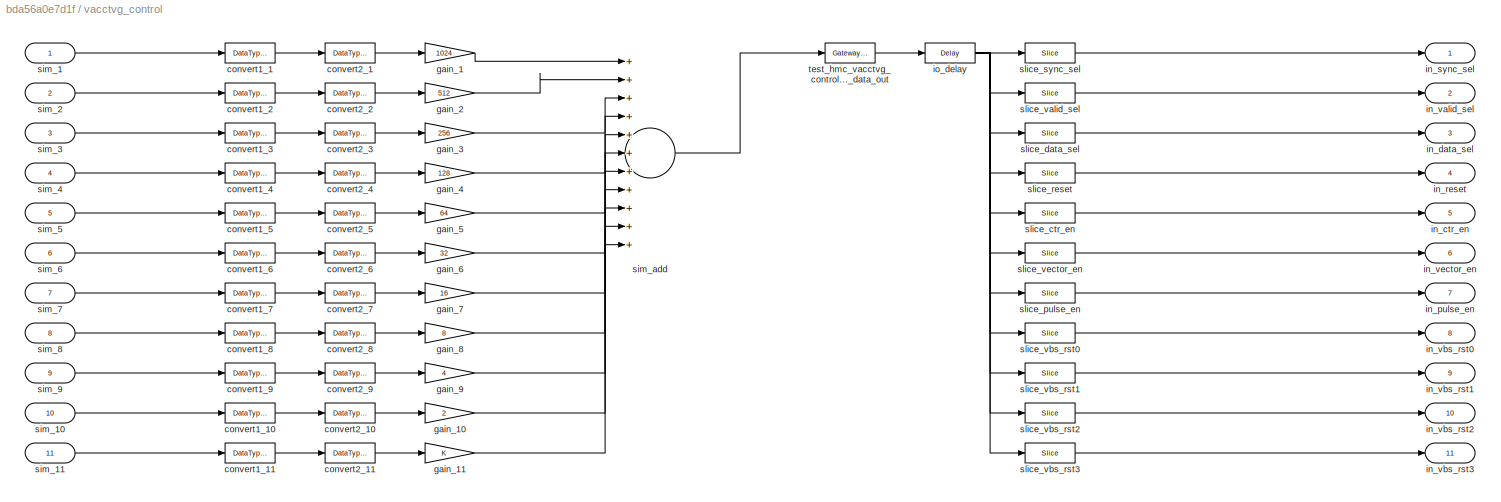
BLOCK [SubSystem] vacctvg_control
  AncestorBlock = xps_library/software register
  AttributesFormatString = 11 inputs:b,b,b,b,b,b,b,b,b,b,b = 11 bits
  Ports = [11, 11]
  RequestExecContextInheritance = off
  Tag = xps:sw_reg
  Variant = off
BLOCK [DataTypeConversion] vacctvg_control/convert1_1
  LockScale = on
  OutDataTypeStr = fixdt('ufix1_En0')
  RndMeth = Floor
  SaturateOnIntegerOverflow = off
BLOCK [DataTypeConversion] vacctvg_control/convert1_10
  LockScale = on
  OutDataTypeStr = fixdt('ufix1_En0')
  RndMeth = Floor
  SaturateOnIntegerOverflow = off
BLOCK [DataTypeConversion] vacctvg_control/convert1_11
  LockScale = on
  OutDataTypeStr = fixdt('ufix1_En0')
  RndMeth = Floor
  SaturateOnIntegerOverflow = off
BLOCK [DataTypeConversion] vacctvg_control/convert1_2
  LockScale = on
  OutDataTypeStr = fixdt('ufix1_En0')
  RndMeth = Floor
  SaturateOnIntegerOverflow = off
BLOCK [DataTypeConversion] vacctvg_control/convert1_3
  LockScale = on
  OutDataTypeStr = fixdt('ufix1_En0')
  RndMeth = Floor
  SaturateOnIntegerOverflow = off
BLOCK [DataTypeConversion] vacctvg_control/convert1_4
  LockScale = on
  OutDataTypeStr = fixdt('ufix1_En0')
  RndMeth = Floor
  SaturateOnIntegerOverflow = off
BLOCK [DataTypeConversion] vacctvg_control/convert1_5
  LockScale = on
  OutDataTypeStr = fixdt('ufix1_En0')
  RndMeth = Floor
  SaturateOnIntegerOverflow = off
BLOCK [DataTypeConversion] vacctvg_control/convert1_6
  LockScale = on
  OutDataTypeStr = fixdt('ufix1_En0')
  RndMeth = Floor
  SaturateOnIntegerOverflow = off
BLOCK [DataTypeConversion] vacctvg_control/convert1_7
  LockScale = on
  OutDataTypeStr = fixdt('ufix1_En0')
  RndMeth = Floor
  SaturateOnIntegerOverflow = off
BLOCK [DataTypeConversion] vacctvg_control/convert1_8
  LockScale = on
  OutDataTypeStr = fixdt('ufix1_En0')
  RndMeth = Floor
  SaturateOnIntegerOverflow = off
BLOCK [DataTypeConversion] vacctvg_control/convert1_9
  LockScale = on
  OutDataTypeStr = fixdt('ufix1_En0')
  RndMeth = Floor
  SaturateOnIntegerOverflow = off
BLOCK [DataTypeConversion] vacctvg_control/convert2_1
  ConvertRealWorld = Stored Integer (SI)
  LockScale = on
  OutDataTypeStr = fixdt('ufix1_En0')
  RndMeth = Floor
  SaturateOnIntegerOverflow = off
BLOCK [DataTypeConversion] vacctvg_control/convert2_10
  ConvertRealWorld = Stored Integer (SI)
  LockScale = on
  OutDataTypeStr = fixdt('ufix1_En0')
  RndMeth = Floor
  SaturateOnIntegerOverflow = off
BLOCK [DataTypeConversion] vacctvg_control/convert2_11
  ConvertRealWorld = Stored Integer (SI)
  LockScale = on
  OutDataTypeStr = fixdt('ufix1_En0')
  RndMeth = Floor
  SaturateOnIntegerOverflow = off
BLOCK [DataTypeConversion] vacctvg_control/convert2_2
  ConvertRealWorld = Stored Integer (SI)
  LockScale = on
  OutDataTypeStr = fixdt('ufix1_En0')
  RndMeth = Floor
  SaturateOnIntegerOverflow = off
BLOCK [DataTypeConversion] vacctvg_control/convert2_3
  ConvertRealWorld = Stored Integer (SI)
  LockScale = on
  OutDataTypeStr = fixdt('ufix1_En0')
  RndMeth = Floor
  SaturateOnIntegerOverflow = off
BLOCK [DataTypeConversion] vacctvg_control/convert2_4
  ConvertRealWorld = Stored Integer (SI)
  LockScale = on
  OutDataTypeStr = fixdt('ufix1_En0')
  RndMeth = Floor
  SaturateOnIntegerOverflow = off
BLOCK [DataTypeConversion] vacctvg_control/convert2_5
  ConvertRealWorld = Stored Integer (SI)
  LockScale = on
  OutDataTypeStr = fixdt('ufix1_En0')
  RndMeth = Floor
  SaturateOnIntegerOverflow = off
BLOCK [DataTypeConversion] vacctvg_control/convert2_6
  ConvertRealWorld = Stored Integer (SI)
  LockScale = on
  OutDataTypeStr = fixdt('ufix1_En0')
  RndMeth = Floor
  SaturateOnIntegerOverflow = off
BLOCK [DataTypeConversion] vacctvg_control/convert2_7
  ConvertRealWorld = Stored Integer (SI)
  LockScale = on
  OutDataTypeStr = fixdt('ufix1_En0')
  RndMeth = Floor
  SaturateOnIntegerOverflow = off
BLOCK [DataTypeConversion] vacctvg_control/convert2_8
  ConvertRealWorld = Stored Integer (SI)
  LockScale = on
  OutDataTypeStr = fixdt('ufix1_En0')
  RndMeth = Floor
  SaturateOnIntegerOverflow = off
BLOCK [DataTypeConversion] vacctvg_control/convert2_9
  ConvertRealWorld = Stored Integer (SI)
  LockScale = on
  OutDataTypeStr = fixdt('ufix1_En0')
  RndMeth = Floor
  SaturateOnIntegerOverflow = off
BLOCK [Gain] vacctvg_control/gain_1
  Gain = 1024
  OutDataTypeStr = Inherit: Inherit via internal rule
  ParamDataTypeStr = Inherit: Inherit via internal rule
  SaturateOnIntegerOverflow = off
BLOCK [Gain] vacctvg_control/gain_10
  Gain = 2
  OutDataTypeStr = Inherit: Inherit via internal rule
  ParamDataTypeStr = Inherit: Inherit via internal rule
  SaturateOnIntegerOverflow = off
BLOCK [Gain] vacctvg_control/gain_11
  OutDataTypeStr = Inherit: Inherit via internal rule
  ParamDataTypeStr = Inherit: Inherit via internal rule
  SaturateOnIntegerOverflow = off
BLOCK [Gain] vacctvg_control/gain_2
  Gain = 512
  OutDataTypeStr = Inherit: Inherit via internal rule
  ParamDataTypeStr = Inherit: Inherit via internal rule
  SaturateOnIntegerOverflow = off
BLOCK [Gain] vacctvg_control/gain_3
  Gain = 256
  OutDataTypeStr = Inherit: Inherit via internal rule
  ParamDataTypeStr = Inherit: Inherit via internal rule
  SaturateOnIntegerOverflow = off
BLOCK [Gain] vacctvg_control/gain_4
  Gain = 128
  OutDataTypeStr = Inherit: Inherit via internal rule
  ParamDataTypeStr = Inherit: Inherit via internal rule
  SaturateOnIntegerOverflow = off
BLOCK [Gain] vacctvg_control/gain_5
  Gain = 64
  OutDataTypeStr = Inherit: Inherit via internal rule
  ParamDataTypeStr = Inherit: Inherit via internal rule
  SaturateOnIntegerOverflow = off
BLOCK [Gain] vacctvg_control/gain_6
  Gain = 32
  OutDataTypeStr = Inherit: Inherit via internal rule
  ParamDataTypeStr = Inherit: Inherit via internal rule
  SaturateOnIntegerOverflow = off
BLOCK [Gain] vacctvg_control/gain_7
  Gain = 16
  OutDataTypeStr = Inherit: Inherit via internal rule
  ParamDataTypeStr = Inherit: Inherit via internal rule
  SaturateOnIntegerOverflow = off
BLOCK [Gain] vacctvg_control/gain_8
  Gain = 8
  OutDataTypeStr = Inherit: Inherit via internal rule
  ParamDataTypeStr = Inherit: Inherit via internal rule
  SaturateOnIntegerOverflow = off
BLOCK [Gain] vacctvg_control/gain_9
  Gain = 4
  OutDataTypeStr = Inherit: Inherit via internal rule
  ParamDataTypeStr = Inherit: Inherit via internal rule
  SaturateOnIntegerOverflow = off
BLOCK [Outport] vacctvg_control/in_ctr_en
  IconDisplay = Port number
  Port = 5
BLOCK [Outport] vacctvg_control/in_data_sel
  IconDisplay = Port number
  Port = 3
BLOCK [Outport] vacctvg_control/in_pulse_en
  IconDisplay = Port number
  Port = 7
BLOCK [Outport] vacctvg_control/in_reset
  IconDisplay = Port number
  Port = 4
BLOCK [Outport] vacctvg_control/in_sync_sel
  IconDisplay = Port number
BLOCK [Outport] vacctvg_control/in_valid_sel
  IconDisplay = Port number
  Port = 2
BLOCK [Outport] vacctvg_control/in_vbs_rst0
  IconDisplay = Port number
  Port = 8
BLOCK [Outport] vacctvg_control/in_vbs_rst1
  IconDisplay = Port number
  Port = 9
BLOCK [Outport] vacctvg_control/in_vbs_rst2
  IconDisplay = Port number
  Port = 10
BLOCK [Outport] vacctvg_control/in_vbs_rst3
  IconDisplay = Port number
  Port = 11
BLOCK [Outport] vacctvg_control/in_vector_en
  IconDisplay = Port number
  Port = 6
BLOCK [Reference] vacctvg_control/io_delay  REF=xbsIndex_r4/Delay
  Ports = [1, 1]
  SourceBlock = xbsIndex_r4/Delay
  SourceType = Xilinx Delay Block
BLOCK [Inport] vacctvg_control/sim_1
  IconDisplay = Port number
BLOCK [Inport] vacctvg_control/sim_10
  IconDisplay = Port number
  Port = 10
BLOCK [Inport] vacctvg_control/sim_11
  IconDisplay = Port number
  Port = 11
BLOCK [Inport] vacctvg_control/sim_2
  IconDisplay = Port number
  Port = 2
BLOCK [Inport] vacctvg_control/sim_3
  IconDisplay = Port number
  Port = 3
BLOCK [Inport] vacctvg_control/sim_4
  IconDisplay = Port number
  Port = 4
BLOCK [Inport] vacctvg_control/sim_5
  IconDisplay = Port number
  Port = 5
BLOCK [Inport] vacctvg_control/sim_6
  IconDisplay = Port number
  Port = 6
BLOCK [Inport] vacctvg_control/sim_7
  IconDisplay = Port number
  Port = 7
BLOCK [Inport] vacctvg_control/sim_8
  IconDisplay = Port number
  Port = 8
BLOCK [Inport] vacctvg_control/sim_9
  IconDisplay = Port number
  Port = 9
BLOCK [Sum] vacctvg_control/sim_add
  InputSameDT = off
  Inputs = +++++++++++
  OutDataTypeStr = uint32
  Ports = [11, 1]
  SaturateOnIntegerOverflow = off
BLOCK [Reference] vacctvg_control/slice_ctr_en  REF=xbsIndex_r4/Slice
  Ports = [1, 1]
  SourceBlock = xbsIndex_r4/Slice
  SourceType = Xilinx Bit Slice Extractor Block
BLOCK [Reference] vacctvg_control/slice_data_sel  REF=xbsIndex_r4/Slice
  Ports = [1, 1]
  SourceBlock = xbsIndex_r4/Slice
  SourceType = Xilinx Bit Slice Extractor Block
BLOCK [Reference] vacctvg_control/slice_pulse_en  REF=xbsIndex_r4/Slice
  Ports = [1, 1]
  SourceBlock = xbsIndex_r4/Slice
  SourceType = Xilinx Bit Slice Extractor Block
BLOCK [Reference] vacctvg_control/slice_reset  REF=xbsIndex_r4/Slice
  Ports = [1, 1]
  SourceBlock = xbsIndex_r4/Slice
  SourceType = Xilinx Bit Slice Extractor Block
BLOCK [Reference] vacctvg_control/slice_sync_sel  REF=xbsIndex_r4/Slice
  Ports = [1, 1]
  SourceBlock = xbsIndex_r4/Slice
  SourceType = Xilinx Bit Slice Extractor Block
BLOCK [Reference] vacctvg_control/slice_valid_sel  REF=xbsIndex_r4/Slice
  Ports = [1, 1]
  SourceBlock = xbsIndex_r4/Slice
  SourceType = Xilinx Bit Slice Extractor Block
BLOCK [Reference] vacctvg_control/slice_vbs_rst0  REF=xbsIndex_r4/Slice
  Ports = [1, 1]
  SourceBlock = xbsIndex_r4/Slice
  SourceType = Xilinx Bit Slice Extractor Block
BLOCK [Reference] vacctvg_control/slice_vbs_rst1  REF=xbsIndex_r4/Slice
  Ports = [1, 1]
  SourceBlock = xbsIndex_r4/Slice
  SourceType = Xilinx Bit Slice Extractor Block
BLOCK [Reference] vacctvg_control/slice_vbs_rst2  REF=xbsIndex_r4/Slice
  Ports = [1, 1]
  SourceBlock = xbsIndex_r4/Slice
  SourceType = Xilinx Bit Slice Extractor Block
BLOCK [Reference] vacctvg_control/slice_vbs_rst3  REF=xbsIndex_r4/Slice
  Ports = [1, 1]
  SourceBlock = xbsIndex_r4/Slice
  SourceType = Xilinx Bit Slice Extractor Block
BLOCK [Reference] vacctvg_control/slice_vector_en  REF=xbsIndex_r4/Slice
  Ports = [1, 1]
  SourceBlock = xbsIndex_r4/Slice
  SourceType = Xilinx Bit Slice Extractor Block
BLOCK [Reference] vacctvg_control/test_hmc_vacctvg_control_user_data_out  REF=xbsIndex_r4/Gateway In
  Ports = [1, 1]
  SourceBlock = xbsIndex_r4/Gateway In
  SourceType = Xilinx Gateway In Block
BLOCK [Reference] wr_cnt  REF=xbsIndex_r4/Counter
  Ports = [2, 1]
  SourceBlock = xbsIndex_r4/Counter
  SourceType = Xilinx Counter Block
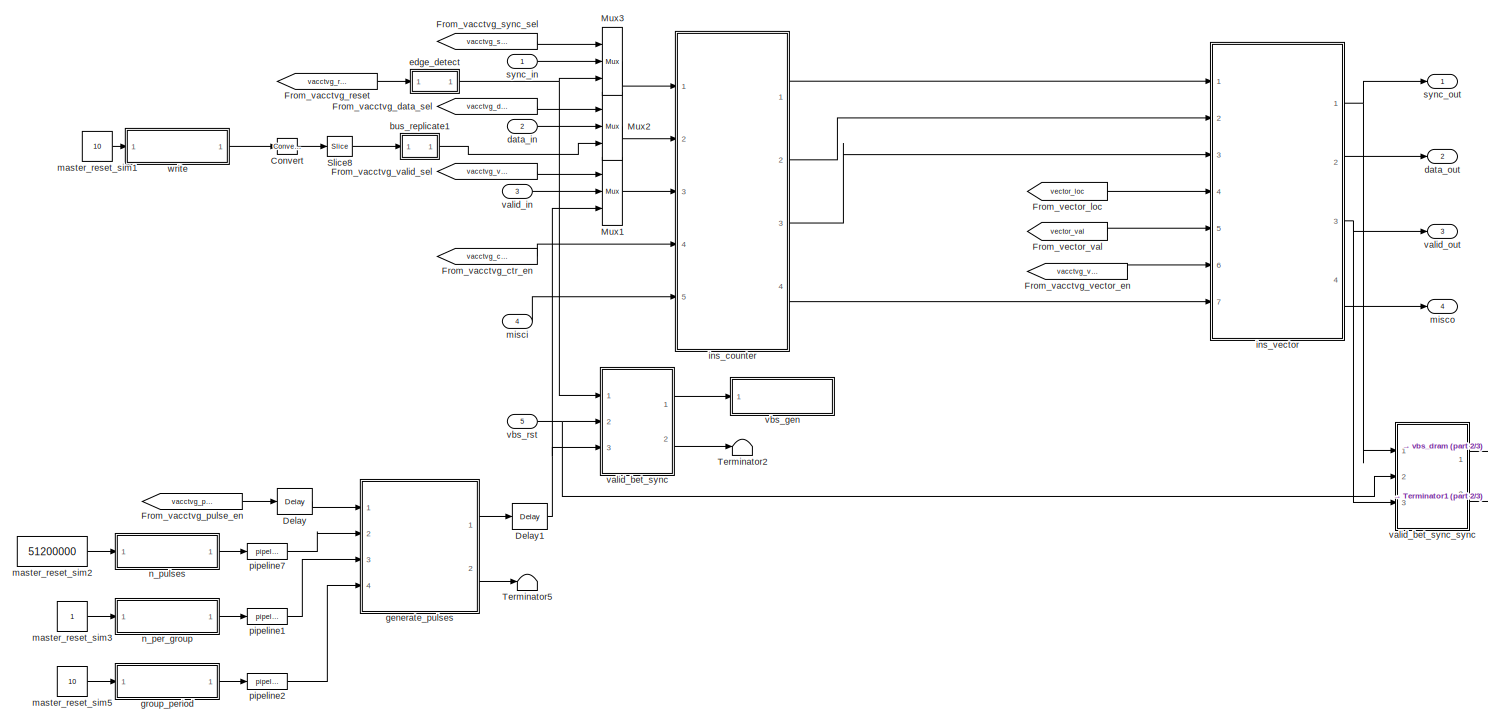
[diagram: wr_cntrl - part 1/3, most of the canvas]
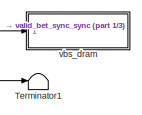
[diagram: wr_cntrl - part 2/3, middle right region]
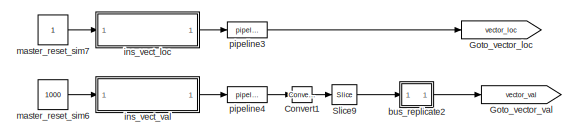
[diagram: wr_cntrl - part 3/3, bottom left region]
BLOCK [SubSystem] wr_cntrl
  AncestorBlock = casper_library/Accumulators/vacc_tvg
  AttributesFormatString = Vector Length: 134217728
  Ports = [5, 4]
  RequestExecContextInheritance = off
  Variant = off
BLOCK [Reference] wr_cntrl/Convert  REF=xbsIndex_r4/Convert
  Ports = [1, 1]
  SourceBlock = xbsIndex_r4/Convert
  SourceType = Xilinx Type Converter Block
BLOCK [Reference] wr_cntrl/Convert1  REF=xbsIndex_r4/Convert
  Ports = [1, 1]
  SourceBlock = xbsIndex_r4/Convert
  SourceType = Xilinx Type Converter Block
BLOCK [Reference] wr_cntrl/Delay  REF=xbsIndex_r4/Delay
  Ports = [1, 1]
  SourceBlock = xbsIndex_r4/Delay
  SourceType = Xilinx Delay Block
BLOCK [Reference] wr_cntrl/Delay1  REF=xbsIndex_r4/Delay
  Ports = [1, 1]
  SourceBlock = xbsIndex_r4/Delay
  SourceType = Xilinx Delay Block
BLOCK [From] wr_cntrl/From_vacctvg_ctr_en
  GotoTag = vacctvg_ctr_en
  TagVisibility = global
BLOCK [From] wr_cntrl/From_vacctvg_data_sel
  GotoTag = vacctvg_data_sel
  TagVisibility = global
BLOCK [From] wr_cntrl/From_vacctvg_pulse_en
  GotoTag = vacctvg_pulse_en
  TagVisibility = global
BLOCK [From] wr_cntrl/From_vacctvg_reset
  GotoTag = vacctvg_reset
  TagVisibility = global
BLOCK [From] wr_cntrl/From_vacctvg_sync_sel
  GotoTag = vacctvg_sync_sel
  TagVisibility = global
BLOCK [From] wr_cntrl/From_vacctvg_valid_sel
  GotoTag = vacctvg_valid_sel
  TagVisibility = global
BLOCK [From] wr_cntrl/From_vacctvg_vector_en
  GotoTag = vacctvg_vector_en
  TagVisibility = global
BLOCK [From] wr_cntrl/From_vector_loc
  GotoTag = vector_loc
BLOCK [From] wr_cntrl/From_vector_val
  GotoTag = vector_val
BLOCK [Goto] wr_cntrl/Goto_vector_loc
  GotoTag = vector_loc
BLOCK [Goto] wr_cntrl/Goto_vector_val
  GotoTag = vector_val
BLOCK [Reference] wr_cntrl/Mux1  REF=xbsIndex_r4/Mux
  Ports = [3, 1]
  SourceBlock = xbsIndex_r4/Mux
  SourceType = Xilinx Bus Multiplexer Block
BLOCK [Reference] wr_cntrl/Mux2  REF=xbsIndex_r4/Mux
  Ports = [3, 1]
  SourceBlock = xbsIndex_r4/Mux
  SourceType = Xilinx Bus Multiplexer Block
BLOCK [Reference] wr_cntrl/Mux3  REF=xbsIndex_r4/Mux
  Ports = [3, 1]
  SourceBlock = xbsIndex_r4/Mux
  SourceType = Xilinx Bus Multiplexer Block
BLOCK [Reference] wr_cntrl/Slice8  REF=xbsIndex_r4/Slice
  Ports = [1, 1]
  SourceBlock = xbsIndex_r4/Slice
  SourceType = Xilinx Bit Slice Extractor Block
BLOCK [Reference] wr_cntrl/Slice9  REF=xbsIndex_r4/Slice
  Ports = [1, 1]
  SourceBlock = xbsIndex_r4/Slice
  SourceType = Xilinx Bit Slice Extractor Block
BLOCK [Terminator] wr_cntrl/Terminator1
BLOCK [Terminator] wr_cntrl/Terminator2
BLOCK [Terminator] wr_cntrl/Terminator5
BLOCK [SubSystem] wr_cntrl/bus_replicate1
  AncestorBlock = casper_library_bus/bus_replicate
  Ports = [1, 1]
  RequestExecContextInheritance = off
  UserDataPersistent = on
  Variant = off
BLOCK [SubSystem] wr_cntrl/bus_replicate1/bussify
  AncestorBlock = casper_library_flow_control/bus_create
  Ports = [1, 1]
  RequestExecContextInheritance = off
  UserDataPersistent = on
  Variant = off
BLOCK [Outport] wr_cntrl/bus_replicate1/bussify/bus_out
  IconDisplay = Port number
BLOCK [Inport] wr_cntrl/bus_replicate1/bussify/in1
  IconDisplay = Port number
BLOCK [Reference] wr_cntrl/bus_replicate1/bussify/reinterpret1  REF=xbsIndex_r4/Reinterpret
  Ports = [1, 1]
  SourceBlock = xbsIndex_r4/Reinterpret
  SourceType = Xilinx Type Reinterpreter Block
BLOCK [Inport] wr_cntrl/bus_replicate1/in
  IconDisplay = Port number
BLOCK [Outport] wr_cntrl/bus_replicate1/out
  IconDisplay = Port number
BLOCK [SubSystem] wr_cntrl/bus_replicate2
  AncestorBlock = casper_library_bus/bus_replicate
  Ports = [1, 1]
  RequestExecContextInheritance = off
  UserDataPersistent = on
  Variant = off
BLOCK [SubSystem] wr_cntrl/bus_replicate2/bussify
  AncestorBlock = casper_library_flow_control/bus_create
  Ports = [1, 1]
  RequestExecContextInheritance = off
  UserDataPersistent = on
  Variant = off
BLOCK [Outport] wr_cntrl/bus_replicate2/bussify/bus_out
  IconDisplay = Port number
BLOCK [Inport] wr_cntrl/bus_replicate2/bussify/in1
  IconDisplay = Port number
BLOCK [Reference] wr_cntrl/bus_replicate2/bussify/reinterpret1  REF=xbsIndex_r4/Reinterpret
  Ports = [1, 1]
  SourceBlock = xbsIndex_r4/Reinterpret
  SourceType = Xilinx Type Reinterpreter Block
BLOCK [Inport] wr_cntrl/bus_replicate2/in
  IconDisplay = Port number
BLOCK [Outport] wr_cntrl/bus_replicate2/out
  IconDisplay = Port number
BLOCK [Inport] wr_cntrl/data_in
  IconDisplay = Port number
  Port = 2
BLOCK [Outport] wr_cntrl/data_out
  IconDisplay = Port number
  Port = 2
BLOCK [SubSystem] wr_cntrl/edge_detect
  AncestorBlock = casper_library_misc/edge_detect
  AttributesFormatString = rising edges\nactive high
  Ports = [1, 1]
  RequestExecContextInheritance = off
  UserDataPersistent = on
  Variant = off
BLOCK [Reference] wr_cntrl/edge_detect/Delay  REF=xbsIndex_r4/Delay
  Ports = [1, 1]
  SourceBlock = xbsIndex_r4/Delay
  SourceType = Xilinx Delay Block
BLOCK [Reference] wr_cntrl/edge_detect/Inverter  REF=xbsIndex_r4/Inverter
  Ports = [1, 1]
  SourceBlock = xbsIndex_r4/Inverter
  SourceType = Xilinx Inverter Block
BLOCK [Reference] wr_cntrl/edge_detect/edge_op  REF=xbsIndex_r4/Logical
  Ports = [2, 1]
  SourceBlock = xbsIndex_r4/Logical
  SourceType = Xilinx Logical Block Block
BLOCK [Inport] wr_cntrl/edge_detect/in
  IconDisplay = Port number
BLOCK [Outport] wr_cntrl/edge_detect/out
  IconDisplay = Port number
BLOCK [SubSystem] wr_cntrl/generate_pulses
  Ports = [4, 2]
  RequestExecContextInheritance = off
  Variant = off
BLOCK [Reference] wr_cntrl/generate_pulses/Constant  REF=xbsIndex_r4/Constant
  Ports = [0, 1]
  SourceBlock = xbsIndex_r4/Constant
  SourceType = Xilinx Constant Block Block
BLOCK [Reference] wr_cntrl/generate_pulses/Gateway Out1  REF=xbsIndex_r4/Gateway Out
  Ports = [1, 1]
  SourceBlock = xbsIndex_r4/Gateway Out
  SourceType = Xilinx Gateway Out Block
BLOCK [Reference] wr_cntrl/generate_pulses/Gateway Out2  REF=xbsIndex_r4/Gateway Out
  Ports = [1, 1]
  SourceBlock = xbsIndex_r4/Gateway Out
  SourceType = Xilinx Gateway Out Block
BLOCK [Reference] wr_cntrl/generate_pulses/Gateway Out3  REF=xbsIndex_r4/Gateway Out
  Ports = [1, 1]
  SourceBlock = xbsIndex_r4/Gateway Out
  SourceType = Xilinx Gateway Out Block
BLOCK [Reference] wr_cntrl/generate_pulses/Gateway Out4  REF=xbsIndex_r4/Gateway Out
  Ports = [1, 1]
  SourceBlock = xbsIndex_r4/Gateway Out
  SourceType = Xilinx Gateway Out Block
BLOCK [Reference] wr_cntrl/generate_pulses/Gateway Out5  REF=xbsIndex_r4/Gateway Out
  Ports = [1, 1]
  SourceBlock = xbsIndex_r4/Gateway Out
  SourceType = Xilinx Gateway Out Block
BLOCK [Reference] wr_cntrl/generate_pulses/Gateway Out6  REF=xbsIndex_r4/Gateway Out
  Ports = [1, 1]
  SourceBlock = xbsIndex_r4/Gateway Out
  SourceType = Xilinx Gateway Out Block
BLOCK [Reference] wr_cntrl/generate_pulses/Gateway Out7  REF=xbsIndex_r4/Gateway Out
  Ports = [1, 1]
  SourceBlock = xbsIndex_r4/Gateway Out
  SourceType = Xilinx Gateway Out Block
BLOCK [Reference] wr_cntrl/generate_pulses/Gateway Out8  REF=xbsIndex_r4/Gateway Out
  Ports = [1, 1]
  SourceBlock = xbsIndex_r4/Gateway Out
  SourceType = Xilinx Gateway Out Block
BLOCK [Reference] wr_cntrl/generate_pulses/Logical1  REF=xbsIndex_r4/Logical
  Ports = [2, 1]
  SourceBlock = xbsIndex_r4/Logical
  SourceType = Xilinx Logical Block Block
BLOCK [Reference] wr_cntrl/generate_pulses/Logical2  REF=xbsIndex_r4/Logical
  Ports = [3, 1]
  SourceBlock = xbsIndex_r4/Logical
  SourceType = Xilinx Logical Block Block
BLOCK [Reference] wr_cntrl/generate_pulses/Logical3  REF=xbsIndex_r4/Logical
  Ports = [2, 1]
  SourceBlock = xbsIndex_r4/Logical
  SourceType = Xilinx Logical Block Block
BLOCK [Reference] wr_cntrl/generate_pulses/Logical4  REF=xbsIndex_r4/Logical
  Ports = [2, 1]
  SourceBlock = xbsIndex_r4/Logical
  SourceType = Xilinx Logical Block Block
BLOCK [Reference] wr_cntrl/generate_pulses/Logical5  REF=xbsIndex_r4/Logical
  Ports = [2, 1]
  SourceBlock = xbsIndex_r4/Logical
  SourceType = Xilinx Logical Block Block
BLOCK [Reference] wr_cntrl/generate_pulses/Relational  REF=xbsIndex_r4/Relational
  Ports = [2, 1]
  SourceBlock = xbsIndex_r4/Relational
  SourceType = Xilinx Arithmetic Relational Operator Block
BLOCK [Reference] wr_cntrl/generate_pulses/Relational1  REF=xbsIndex_r4/Relational
  Ports = [2, 1]
  SourceBlock = xbsIndex_r4/Relational
  SourceType = Xilinx Arithmetic Relational Operator Block
BLOCK [Reference] wr_cntrl/generate_pulses/Relational2  REF=xbsIndex_r4/Relational
  Ports = [2, 1]
  SourceBlock = xbsIndex_r4/Relational
  SourceType = Xilinx Arithmetic Relational Operator Block
BLOCK [Reference] wr_cntrl/generate_pulses/Relational3  REF=xbsIndex_r4/Relational
  Ports = [2, 1]
  SourceBlock = xbsIndex_r4/Relational
  SourceType = Xilinx Arithmetic Relational Operator Block
BLOCK [Scope] wr_cntrl/generate_pulses/Scope1
  NumInputPorts = 4
  Ports = [4]
  ScopeSpecificationString = C++SS(StrPVP('Location','[6, 49, 1030, 743]'),StrPVP('Open','off'),StrPVP('ZoomMode','xonly'),MxPVP('AxesTitles',24,'struct(''axes1'',''run'',''axes2'',''rst'',''axes3'',''pulse_cnt_en'',''axes4'',''total_cnt_en'')'),StrPVP('ShowLegends','off'),StrPVP('YMin','0~-1~0~0'),StrPVP('YMax','1~1~1~1'),StrPVP('DataFormat','StructureWithTime'),StrPVP('LimitDataPoints','off'),StrPVP('BlockParamSampleTime','...<+67ch>
BLOCK [Scope] wr_cntrl/generate_pulses/Scope2
  NumInputPorts = 4
  Ports = [4]
  ScopeSpecificationString = C++SS(StrPVP('Location','[6, 49, 1030, 743]'),StrPVP('Open','off'),StrPVP('ZoomMode','yonly'),MxPVP('AxesTitles',24,'struct(''axes1'',''valid'',''axes2'',''pulse_cnt'',''axes3'',''group_cnt'',''axes4'',''total_pulse_cnt'')'),StrPVP('ShowLegends','off'),StrPVP('YMin','0.95~0~-1~-5'),StrPVP('YMax','1.05~1~1~5'),StrPVP('SaveName','ScopeData1'),StrPVP('DataFormat','StructureWithTime'),StrPVP('LimitDat...<+114ch>
BLOCK [Reference] wr_cntrl/generate_pulses/Slice6  REF=xbsIndex_r4/Slice
  Ports = [1, 1]
  SourceBlock = xbsIndex_r4/Slice
  SourceType = Xilinx Bit Slice Extractor Block
BLOCK [SubSystem] wr_cntrl/generate_pulses/edge_detect
  AncestorBlock = casper_library_misc/edge_detect
  AttributesFormatString = rising edges\nactive high
  Ports = [1, 1]
  RequestExecContextInheritance = off
  UserDataPersistent = on
  Variant = off
BLOCK [Reference] wr_cntrl/generate_pulses/edge_detect/Delay  REF=xbsIndex_r4/Delay
  Ports = [1, 1]
  SourceBlock = xbsIndex_r4/Delay
  SourceType = Xilinx Delay Block
BLOCK [Reference] wr_cntrl/generate_pulses/edge_detect/Inverter  REF=xbsIndex_r4/Inverter
  Ports = [1, 1]
  SourceBlock = xbsIndex_r4/Inverter
  SourceType = Xilinx Inverter Block
BLOCK [Reference] wr_cntrl/generate_pulses/edge_detect/edge_op  REF=xbsIndex_r4/Logical
  Ports = [2, 1]
  SourceBlock = xbsIndex_r4/Logical
  SourceType = Xilinx Logical Block Block
BLOCK [Inport] wr_cntrl/generate_pulses/edge_detect/in
  IconDisplay = Port number
BLOCK [Outport] wr_cntrl/generate_pulses/edge_detect/out
  IconDisplay = Port number
BLOCK [SubSystem] wr_cntrl/generate_pulses/edge_detect1
  AncestorBlock = casper_library_misc/edge_detect
  AttributesFormatString = both edges\nactive high
  Ports = [1, 1]
  RequestExecContextInheritance = off
  UserDataPersistent = on
  Variant = off
BLOCK [Reference] wr_cntrl/generate_pulses/edge_detect1/Delay  REF=xbsIndex_r4/Delay
  Ports = [1, 1]
  SourceBlock = xbsIndex_r4/Delay
  SourceType = Xilinx Delay Block
BLOCK [Reference] wr_cntrl/generate_pulses/edge_detect1/Inverter  REF=xbsIndex_r4/Inverter
  Ports = [1, 1]
  SourceBlock = xbsIndex_r4/Inverter
  SourceType = Xilinx Inverter Block
BLOCK [Reference] wr_cntrl/generate_pulses/edge_detect1/edge_op  REF=xbsIndex_r4/Logical
  Ports = [2, 1]
  SourceBlock = xbsIndex_r4/Logical
  SourceType = Xilinx Logical Block Block
BLOCK [Inport] wr_cntrl/generate_pulses/edge_detect1/in
  IconDisplay = Port number
BLOCK [Outport] wr_cntrl/generate_pulses/edge_detect1/out
  IconDisplay = Port number
BLOCK [Inport] wr_cntrl/generate_pulses/group period
  IconDisplay = Port number
  Port = 4
BLOCK [Reference] wr_cntrl/generate_pulses/group_cntr  REF=xbsIndex_r4/Counter
  Ports = [1, 1]
  SourceBlock = xbsIndex_r4/Counter
  SourceType = Xilinx Counter Block
BLOCK [Inport] wr_cntrl/generate_pulses/num_per_group
  IconDisplay = Port number
  Port = 3
BLOCK [Inport] wr_cntrl/generate_pulses/num_pulses
  IconDisplay = Port number
  Port = 2
BLOCK [Reference] wr_cntrl/generate_pulses/pulse_cntr  REF=xbsIndex_r4/Counter
  Ports = [2, 1]
  SourceBlock = xbsIndex_r4/Counter
  SourceType = Xilinx Counter Block
BLOCK [Inport] wr_cntrl/generate_pulses/run
  IconDisplay = Port number
BLOCK [Outport] wr_cntrl/generate_pulses/running
  IconDisplay = Port number
  Port = 2
BLOCK [Reference] wr_cntrl/generate_pulses/tot_cntr  REF=xbsIndex_r4/Counter
  Ports = [2, 1]
  SourceBlock = xbsIndex_r4/Counter
  SourceType = Xilinx Counter Block
BLOCK [Outport] wr_cntrl/generate_pulses/valid
  IconDisplay = Port number
BLOCK [SubSystem] wr_cntrl/group_period
  AncestorBlock = xps_library/software register
  AttributesFormatString = 1input:uf32.0 = 32 bits
  Ports = [1, 1]
  RequestExecContextInheritance = off
  Tag = xps:sw_reg
  Variant = off
BLOCK [Outport] wr_cntrl/group_period/in_reg
  IconDisplay = Port number
BLOCK [Reference] wr_cntrl/group_period/io_delay  REF=xbsIndex_r4/Delay
  Ports = [1, 1]
  SourceBlock = xbsIndex_r4/Delay
  SourceType = Xilinx Delay Block
BLOCK [Reference] wr_cntrl/group_period/reint1  REF=xbsIndex_r4/Reinterpret
  Ports = [1, 1]
  SourceBlock = xbsIndex_r4/Reinterpret
  SourceType = Xilinx Type Reinterpreter Block
BLOCK [Inport] wr_cntrl/group_period/sim_1
  IconDisplay = Port number
BLOCK [Reference] wr_cntrl/group_period/slice_reg  REF=xbsIndex_r4/Slice
  Ports = [1, 1]
  SourceBlock = xbsIndex_r4/Slice
  SourceType = Xilinx Bit Slice Extractor Block
BLOCK [Reference] wr_cntrl/group_period/test_hmc_wr_cntrl_group_period_user_data_out  REF=xbsIndex_r4/Gateway In
  Ports = [1, 1]
  SourceBlock = xbsIndex_r4/Gateway In
  SourceType = Xilinx Gateway In Block
BLOCK [SubSystem] wr_cntrl/ins_counter
  AttributesFormatString = Vector Length: 134217728
  Ports = [5, 4]
  RequestExecContextInheritance = off
  Variant = off
BLOCK [Reference] wr_cntrl/ins_counter/Counter  REF=xbsIndex_r4/Counter
  Ports = [2, 1]
  SourceBlock = xbsIndex_r4/Counter
  SourceType = Xilinx Counter Block
BLOCK [Reference] wr_cntrl/ins_counter/Delay  REF=xbsIndex_r4/Delay
  Ports = [1, 1]
  SourceBlock = xbsIndex_r4/Delay
  SourceType = Xilinx Delay Block
BLOCK [Reference] wr_cntrl/ins_counter/Delay1  REF=xbsIndex_r4/Delay
  Ports = [1, 1]
  SourceBlock = xbsIndex_r4/Delay
  SourceType = Xilinx Delay Block
BLOCK [Reference] wr_cntrl/ins_counter/Delay2  REF=xbsIndex_r4/Delay
  Ports = [1, 1]
  SourceBlock = xbsIndex_r4/Delay
  SourceType = Xilinx Delay Block
BLOCK [Reference] wr_cntrl/ins_counter/Delay3  REF=xbsIndex_r4/Delay
  Ports = [1, 1]
  SourceBlock = xbsIndex_r4/Delay
  SourceType = Xilinx Delay Block
BLOCK [Reference] wr_cntrl/ins_counter/Delay4  REF=xbsIndex_r4/Delay
  Ports = [1, 1]
  SourceBlock = xbsIndex_r4/Delay
  SourceType = Xilinx Delay Block
BLOCK [Reference] wr_cntrl/ins_counter/Delay5  REF=xbsIndex_r4/Delay
  Ports = [1, 1]
  SourceBlock = xbsIndex_r4/Delay
  SourceType = Xilinx Delay Block
BLOCK [Reference] wr_cntrl/ins_counter/Delay6  REF=xbsIndex_r4/Delay
  Ports = [1, 1]
  SourceBlock = xbsIndex_r4/Delay
  SourceType = Xilinx Delay Block
BLOCK [Reference] wr_cntrl/ins_counter/Gateway Out4  REF=xbsIndex_r4/Gateway Out
  Ports = [1, 1]
  SourceBlock = xbsIndex_r4/Gateway Out
  SourceType = Xilinx Gateway Out Block
BLOCK [Reference] wr_cntrl/ins_counter/Gateway Out5  REF=xbsIndex_r4/Gateway Out
  Ports = [1, 1]
  SourceBlock = xbsIndex_r4/Gateway Out
  SourceType = Xilinx Gateway Out Block
BLOCK [Reference] wr_cntrl/ins_counter/Gateway Out6  REF=xbsIndex_r4/Gateway Out
  Ports = [1, 1]
  SourceBlock = xbsIndex_r4/Gateway Out
  SourceType = Xilinx Gateway Out Block
BLOCK [Reference] wr_cntrl/ins_counter/Mux  REF=xbsIndex_r4/Mux
  Ports = [3, 1]
  SourceBlock = xbsIndex_r4/Mux
  SourceType = Xilinx Bus Multiplexer Block
BLOCK [Scope] wr_cntrl/ins_counter/Scope2
  NumInputPorts = 3
  Ports = [3]
  ScopeSpecificationString = C++SS(StrPVP('Location','[-3, 41, 1437, 867]'),StrPVP('Open','off'),StrPVP('ZoomMode','xonly'),MxPVP('AxesTitles',24,'struct(''axes1'',''new_acc'',''axes2'',''data_out'',''axes3'',''valid_out'')'),StrPVP('ShowLegends','off'),StrPVP('YMin','-1~65~0'),StrPVP('YMax','1~92.5~1'),StrPVP('SaveName','ScopeData35'),StrPVP('DataFormat','StructureWithTime'),StrPVP('LimitDataPoints','off'),StrPVP('BlockParam...<+80ch>
BLOCK [SubSystem] wr_cntrl/ins_counter/bus_replicate1
  AncestorBlock = casper_library_bus/bus_replicate
  Ports = [1, 1]
  RequestExecContextInheritance = off
  UserDataPersistent = on
  Variant = off
BLOCK [SubSystem] wr_cntrl/ins_counter/bus_replicate1/bussify
  AncestorBlock = casper_library_flow_control/bus_create
  Ports = [1, 1]
  RequestExecContextInheritance = off
  UserDataPersistent = on
  Variant = off
BLOCK [Outport] wr_cntrl/ins_counter/bus_replicate1/bussify/bus_out
  IconDisplay = Port number
BLOCK [Inport] wr_cntrl/ins_counter/bus_replicate1/bussify/in1
  IconDisplay = Port number
BLOCK [Reference] wr_cntrl/ins_counter/bus_replicate1/bussify/reinterpret1  REF=xbsIndex_r4/Reinterpret
  Ports = [1, 1]
  SourceBlock = xbsIndex_r4/Reinterpret
  SourceType = Xilinx Type Reinterpreter Block
BLOCK [Inport] wr_cntrl/ins_counter/bus_replicate1/in
  IconDisplay = Port number
BLOCK [Outport] wr_cntrl/ins_counter/bus_replicate1/out
  IconDisplay = Port number
BLOCK [Inport] wr_cntrl/ins_counter/din
  IconDisplay = Port number
  Port = 2
BLOCK [Outport] wr_cntrl/ins_counter/dout
  IconDisplay = Port number
  Port = 2
BLOCK [Inport] wr_cntrl/ins_counter/enable
  IconDisplay = Port number
  Port = 4
BLOCK [Inport] wr_cntrl/ins_counter/misci
  IconDisplay = Port number
  Port = 5
BLOCK [Outport] wr_cntrl/ins_counter/misco
  IconDisplay = Port number
  Port = 4
BLOCK [Inport] wr_cntrl/ins_counter/new_acc_in
  IconDisplay = Port number
BLOCK [Outport] wr_cntrl/ins_counter/new_acc_out
  IconDisplay = Port number
BLOCK [Inport] wr_cntrl/ins_counter/valid_in
  IconDisplay = Port number
  Port = 3
BLOCK [Outport] wr_cntrl/ins_counter/valid_out
  IconDisplay = Port number
  Port = 3
BLOCK [SubSystem] wr_cntrl/ins_vect_loc
  AncestorBlock = xps_library/software register
  AttributesFormatString = 1input:uf32.0 = 32 bits
  Ports = [1, 1]
  RequestExecContextInheritance = off
  Tag = xps:sw_reg
  Variant = off
BLOCK [Outport] wr_cntrl/ins_vect_loc/in_reg
  IconDisplay = Port number
BLOCK [Reference] wr_cntrl/ins_vect_loc/io_delay  REF=xbsIndex_r4/Delay
  Ports = [1, 1]
  SourceBlock = xbsIndex_r4/Delay
  SourceType = Xilinx Delay Block
BLOCK [Reference] wr_cntrl/ins_vect_loc/reint1  REF=xbsIndex_r4/Reinterpret
  Ports = [1, 1]
  SourceBlock = xbsIndex_r4/Reinterpret
  SourceType = Xilinx Type Reinterpreter Block
BLOCK [Inport] wr_cntrl/ins_vect_loc/sim_1
  IconDisplay = Port number
BLOCK [Reference] wr_cntrl/ins_vect_loc/slice_reg  REF=xbsIndex_r4/Slice
  Ports = [1, 1]
  SourceBlock = xbsIndex_r4/Slice
  SourceType = Xilinx Bit Slice Extractor Block
BLOCK [Reference] wr_cntrl/ins_vect_loc/test_hmc_wr_cntrl_ins_vect_loc_user_data_out  REF=xbsIndex_r4/Gateway In
  Ports = [1, 1]
  SourceBlock = xbsIndex_r4/Gateway In
  SourceType = Xilinx Gateway In Block
BLOCK [SubSystem] wr_cntrl/ins_vect_val
  AncestorBlock = xps_library/software register
  AttributesFormatString = 1input:uf32.0 = 32 bits
  Ports = [1, 1]
  RequestExecContextInheritance = off
  Tag = xps:sw_reg
  Variant = off
BLOCK [Outport] wr_cntrl/ins_vect_val/in_reg
  IconDisplay = Port number
BLOCK [Reference] wr_cntrl/ins_vect_val/io_delay  REF=xbsIndex_r4/Delay
  Ports = [1, 1]
  SourceBlock = xbsIndex_r4/Delay
  SourceType = Xilinx Delay Block
BLOCK [Reference] wr_cntrl/ins_vect_val/reint1  REF=xbsIndex_r4/Reinterpret
  Ports = [1, 1]
  SourceBlock = xbsIndex_r4/Reinterpret
  SourceType = Xilinx Type Reinterpreter Block
BLOCK [Inport] wr_cntrl/ins_vect_val/sim_1
  IconDisplay = Port number
BLOCK [Reference] wr_cntrl/ins_vect_val/slice_reg  REF=xbsIndex_r4/Slice
  Ports = [1, 1]
  SourceBlock = xbsIndex_r4/Slice
  SourceType = Xilinx Bit Slice Extractor Block
BLOCK [Reference] wr_cntrl/ins_vect_val/test_hmc_wr_cntrl_ins_vect_val_user_data_out  REF=xbsIndex_r4/Gateway In
  Ports = [1, 1]
  SourceBlock = xbsIndex_r4/Gateway In
  SourceType = Xilinx Gateway In Block
BLOCK [SubSystem] wr_cntrl/ins_vector
  AttributesFormatString = Vector Length: 134217728
  Ports = [7, 4]
  RequestExecContextInheritance = off
  Variant = off
BLOCK [Reference] wr_cntrl/ins_vector/Delay  REF=xbsIndex_r4/Delay
  Ports = [1, 1]
  SourceBlock = xbsIndex_r4/Delay
  SourceType = Xilinx Delay Block
BLOCK [Reference] wr_cntrl/ins_vector/Delay1  REF=xbsIndex_r4/Delay
  Ports = [1, 1]
  SourceBlock = xbsIndex_r4/Delay
  SourceType = Xilinx Delay Block
BLOCK [Reference] wr_cntrl/ins_vector/Delay2  REF=xbsIndex_r4/Delay
  Ports = [1, 1]
  SourceBlock = xbsIndex_r4/Delay
  SourceType = Xilinx Delay Block
BLOCK [Reference] wr_cntrl/ins_vector/Delay3  REF=xbsIndex_r4/Delay
  Ports = [1, 1]
  SourceBlock = xbsIndex_r4/Delay
  SourceType = Xilinx Delay Block
BLOCK [Reference] wr_cntrl/ins_vector/Delay4  REF=xbsIndex_r4/Delay
  Ports = [1, 1]
  SourceBlock = xbsIndex_r4/Delay
  SourceType = Xilinx Delay Block
BLOCK [Reference] wr_cntrl/ins_vector/Delay5  REF=xbsIndex_r4/Delay
  Ports = [1, 1]
  SourceBlock = xbsIndex_r4/Delay
  SourceType = Xilinx Delay Block
BLOCK [Reference] wr_cntrl/ins_vector/Gateway Out1  REF=xbsIndex_r4/Gateway Out
  Ports = [1, 1]
  SourceBlock = xbsIndex_r4/Gateway Out
  SourceType = Xilinx Gateway Out Block
BLOCK [Reference] wr_cntrl/ins_vector/Gateway Out2  REF=xbsIndex_r4/Gateway Out
  Ports = [1, 1]
  SourceBlock = xbsIndex_r4/Gateway Out
  SourceType = Xilinx Gateway Out Block
BLOCK [Reference] wr_cntrl/ins_vector/Gateway Out3  REF=xbsIndex_r4/Gateway Out
  Ports = [1, 1]
  SourceBlock = xbsIndex_r4/Gateway Out
  SourceType = Xilinx Gateway Out Block
BLOCK [Reference] wr_cntrl/ins_vector/Gateway Out4  REF=xbsIndex_r4/Gateway Out
  Ports = [1, 1]
  SourceBlock = xbsIndex_r4/Gateway Out
  SourceType = Xilinx Gateway Out Block
BLOCK [Reference] wr_cntrl/ins_vector/Gateway Out5  REF=xbsIndex_r4/Gateway Out
  Ports = [1, 1]
  SourceBlock = xbsIndex_r4/Gateway Out
  SourceType = Xilinx Gateway Out Block
BLOCK [Reference] wr_cntrl/ins_vector/Gateway Out6  REF=xbsIndex_r4/Gateway Out
  Ports = [1, 1]
  SourceBlock = xbsIndex_r4/Gateway Out
  SourceType = Xilinx Gateway Out Block
BLOCK [Reference] wr_cntrl/ins_vector/Logical  REF=xbsIndex_r4/Logical
  Ports = [2, 1]
  SourceBlock = xbsIndex_r4/Logical
  SourceType = Xilinx Logical Block Block
BLOCK [Reference] wr_cntrl/ins_vector/Mux  REF=xbsIndex_r4/Mux
  Ports = [3, 1]
  SourceBlock = xbsIndex_r4/Mux
  SourceType = Xilinx Bus Multiplexer Block
BLOCK [Reference] wr_cntrl/ins_vector/Relational  REF=xbsIndex_r4/Relational
  Ports = [2, 1]
  SourceBlock = xbsIndex_r4/Relational
  SourceType = Xilinx Arithmetic Relational Operator Block
BLOCK [Scope] wr_cntrl/ins_vector/Scope2
  NumInputPorts = 6
  Ports = [6]
  ScopeSpecificationString = C++SS(StrPVP('Location','[1, 52, 1921, 1169]'),StrPVP('Open','off'),StrPVP('ZoomMode','xonly'),MxPVP('AxesTitles',24,'struct(''axes1'',''data_out'',''axes2'',''valid_out'',''axes3'',''valid_in'',''axes4'',''rst'',''axes5'',''counter'',''axes6'',''%<SignalLabel>'')'),StrPVP('ShowLegends','off'),StrPVP('YMin','0.95~0~-1~-5~-5~-5'),StrPVP('YMax','1.05~1~1~5~5~5'),StrPVP('SaveName','ScopeData1'),StrPV...<+166ch>
BLOCK [Outport] wr_cntrl/ins_vector/data
  IconDisplay = Port number
  Port = 2
BLOCK [Inport] wr_cntrl/ins_vector/data_in
  IconDisplay = Port number
  Port = 2
BLOCK [Inport] wr_cntrl/ins_vector/enable
  IconDisplay = Port number
  Port = 6
BLOCK [Inport] wr_cntrl/ins_vector/misci
  IconDisplay = Port number
  Port = 7
BLOCK [Outport] wr_cntrl/ins_vector/misco
  IconDisplay = Port number
  Port = 4
BLOCK [Inport] wr_cntrl/ins_vector/new_acc_in
  IconDisplay = Port number
BLOCK [Outport] wr_cntrl/ins_vector/new_acc_out
  IconDisplay = Port number
BLOCK [Reference] wr_cntrl/ins_vector/tot_cntr  REF=xbsIndex_r4/Counter
  Ports = [2, 1]
  SourceBlock = xbsIndex_r4/Counter
  SourceType = Xilinx Counter Block
BLOCK [Inport] wr_cntrl/ins_vector/valid_in
  IconDisplay = Port number
  Port = 3
BLOCK [Outport] wr_cntrl/ins_vector/valid_out
  IconDisplay = Port number
  Port = 3
BLOCK [Inport] wr_cntrl/ins_vector/value
  IconDisplay = Port number
  Port = 5
BLOCK [Inport] wr_cntrl/ins_vector/vector
  IconDisplay = Port number
  Port = 4
BLOCK [Constant] wr_cntrl/master_reset_sim1
  Value = 10
BLOCK [Constant] wr_cntrl/master_reset_sim2
  Value = 51200000
BLOCK [Constant] wr_cntrl/master_reset_sim3
BLOCK [Constant] wr_cntrl/master_reset_sim5
  Value = 10
BLOCK [Constant] wr_cntrl/master_reset_sim6
  Value = 1000
BLOCK [Constant] wr_cntrl/master_reset_sim7
BLOCK [Inport] wr_cntrl/misci
  IconDisplay = Port number
  Port = 4
BLOCK [Outport] wr_cntrl/misco
  IconDisplay = Port number
  Port = 4
BLOCK [SubSystem] wr_cntrl/n_per_group
  AncestorBlock = xps_library/software register
  AttributesFormatString = 1input:uf32.0 = 32 bits
  Ports = [1, 1]
  RequestExecContextInheritance = off
  Tag = xps:sw_reg
  Variant = off
BLOCK [Outport] wr_cntrl/n_per_group/in_reg
  IconDisplay = Port number
BLOCK [Reference] wr_cntrl/n_per_group/io_delay  REF=xbsIndex_r4/Delay
  Ports = [1, 1]
  SourceBlock = xbsIndex_r4/Delay
  SourceType = Xilinx Delay Block
BLOCK [Reference] wr_cntrl/n_per_group/reint1  REF=xbsIndex_r4/Reinterpret
  Ports = [1, 1]
  SourceBlock = xbsIndex_r4/Reinterpret
  SourceType = Xilinx Type Reinterpreter Block
BLOCK [Inport] wr_cntrl/n_per_group/sim_1
  IconDisplay = Port number
BLOCK [Reference] wr_cntrl/n_per_group/slice_reg  REF=xbsIndex_r4/Slice
  Ports = [1, 1]
  SourceBlock = xbsIndex_r4/Slice
  SourceType = Xilinx Bit Slice Extractor Block
BLOCK [Reference] wr_cntrl/n_per_group/test_hmc_wr_cntrl_n_per_group_user_data_out  REF=xbsIndex_r4/Gateway In
  Ports = [1, 1]
  SourceBlock = xbsIndex_r4/Gateway In
  SourceType = Xilinx Gateway In Block
BLOCK [SubSystem] wr_cntrl/n_pulses
  AncestorBlock = xps_library/software register
  AttributesFormatString = 1input:uf32.0 = 32 bits
  Ports = [1, 1]
  RequestExecContextInheritance = off
  Tag = xps:sw_reg
  Variant = off
BLOCK [Outport] wr_cntrl/n_pulses/in_reg
  IconDisplay = Port number
BLOCK [Reference] wr_cntrl/n_pulses/io_delay  REF=xbsIndex_r4/Delay
  Ports = [1, 1]
  SourceBlock = xbsIndex_r4/Delay
  SourceType = Xilinx Delay Block
BLOCK [Reference] wr_cntrl/n_pulses/reint1  REF=xbsIndex_r4/Reinterpret
  Ports = [1, 1]
  SourceBlock = xbsIndex_r4/Reinterpret
  SourceType = Xilinx Type Reinterpreter Block
BLOCK [Inport] wr_cntrl/n_pulses/sim_1
  IconDisplay = Port number
BLOCK [Reference] wr_cntrl/n_pulses/slice_reg  REF=xbsIndex_r4/Slice
  Ports = [1, 1]
  SourceBlock = xbsIndex_r4/Slice
  SourceType = Xilinx Bit Slice Extractor Block
BLOCK [Reference] wr_cntrl/n_pulses/test_hmc_wr_cntrl_n_pulses_user_data_out  REF=xbsIndex_r4/Gateway In
  Ports = [1, 1]
  SourceBlock = xbsIndex_r4/Gateway In
  SourceType = Xilinx Gateway In Block
BLOCK [Reference] wr_cntrl/pipeline1  REF=casper_library_delays/pipeline  (lib defined in mdl_259a08a3fac5, mdl_65009615caaa, +5 more)
  AttributesFormatString = Latency = %<latency>
  Ports = [1, 1]
  SourceBlock = casper_library_delays/pipeline
  SourceType = pipeline
  UserDataPersistent = on
BLOCK [Reference] wr_cntrl/pipeline2  REF=casper_library_delays/pipeline  (lib defined in mdl_259a08a3fac5, mdl_65009615caaa, +5 more)
  AttributesFormatString = Latency = %<latency>
  Ports = [1, 1]
  SourceBlock = casper_library_delays/pipeline
  SourceType = pipeline
  UserDataPersistent = on
BLOCK [Reference] wr_cntrl/pipeline3  REF=casper_library_delays/pipeline  (lib defined in mdl_259a08a3fac5, mdl_65009615caaa, +5 more)
  AttributesFormatString = Latency = %<latency>
  Ports = [1, 1]
  SourceBlock = casper_library_delays/pipeline
  SourceType = pipeline
  UserDataPersistent = on
BLOCK [Reference] wr_cntrl/pipeline4  REF=casper_library_delays/pipeline  (lib defined in mdl_259a08a3fac5, mdl_65009615caaa, +5 more)
  AttributesFormatString = Latency = %<latency>
  Ports = [1, 1]
  SourceBlock = casper_library_delays/pipeline
  SourceType = pipeline
  UserDataPersistent = on
BLOCK [Reference] wr_cntrl/pipeline7  REF=casper_library_delays/pipeline  (lib defined in mdl_259a08a3fac5, mdl_65009615caaa, +5 more)
  AttributesFormatString = Latency = %<latency>
  Ports = [1, 1]
  SourceBlock = casper_library_delays/pipeline
  SourceType = pipeline
  UserDataPersistent = on
BLOCK [Inport] wr_cntrl/sync_in
  IconDisplay = Port number
BLOCK [Outport] wr_cntrl/sync_out
  IconDisplay = Port number
BLOCK [SubSystem] wr_cntrl/valid_bet_sync
  Ports = [3, 2]
  RequestExecContextInheritance = off
  Variant = off
BLOCK [Reference] wr_cntrl/valid_bet_sync/Delay14  REF=xbsIndex_r4/Delay
  Ports = [1, 1]
  SourceBlock = xbsIndex_r4/Delay
  SourceType = Xilinx Delay Block
BLOCK [Reference] wr_cntrl/valid_bet_sync/Register3  REF=xbsIndex_r4/Register
  Ports = [3, 1]
  SourceBlock = xbsIndex_r4/Register
  SourceType = Xilinx Register Block
BLOCK [Reference] wr_cntrl/valid_bet_sync/Relational5  REF=xbsIndex_r4/Relational
  Ports = [2, 1]
  SourceBlock = xbsIndex_r4/Relational
  SourceType = Xilinx Arithmetic Relational Operator Block
BLOCK [Outport] wr_cntrl/valid_bet_sync/count
  IconDisplay = Port number
  Port = 2
BLOCK [Outport] wr_cntrl/valid_bet_sync/max_count
  IconDisplay = Port number
BLOCK [Inport] wr_cntrl/valid_bet_sync/rst_max
  IconDisplay = Port number
  Port = 2
BLOCK [Inport] wr_cntrl/valid_bet_sync/sync
  IconDisplay = Port number
BLOCK [Inport] wr_cntrl/valid_bet_sync/valid
  IconDisplay = Port number
  Port = 3
BLOCK [Reference] wr_cntrl/valid_bet_sync/valid_cntr  REF=xbsIndex_r4/Counter
  Ports = [2, 1]
  SourceBlock = xbsIndex_r4/Counter
  SourceType = Xilinx Counter Block
BLOCK [Reference] wr_cntrl/valid_bet_sync/warn period Delay140  REF=xbsReplacements_r4/Warning
  Ports = []
  SourceBlock = xbsReplacements_r4/Warning
BLOCK [Reference] wr_cntrl/valid_bet_sync/warn period Register30  REF=xbsReplacements_r4/Warning
  Ports = []
  SourceBlock = xbsReplacements_r4/Warning
BLOCK [Reference] wr_cntrl/valid_bet_sync/warn period Relational50  REF=xbsReplacements_r4/Warning
  Ports = []
  SourceBlock = xbsReplacements_r4/Warning
BLOCK [SubSystem] wr_cntrl/valid_bet_sync_sync
  Ports = [3, 2]
  RequestExecContextInheritance = off
  Variant = off
BLOCK [Reference] wr_cntrl/valid_bet_sync_sync/Delay14  REF=xbsIndex_r4/Delay
  Ports = [1, 1]
  SourceBlock = xbsIndex_r4/Delay
  SourceType = Xilinx Delay Block
BLOCK [Reference] wr_cntrl/valid_bet_sync_sync/Gateway Out2  REF=xbsIndex_r4/Gateway Out
  Ports = [1, 1]
  SourceBlock = xbsIndex_r4/Gateway Out
  SourceType = Xilinx Gateway Out Block
BLOCK [Reference] wr_cntrl/valid_bet_sync_sync/Gateway Out3  REF=xbsIndex_r4/Gateway Out
  Ports = [1, 1]
  SourceBlock = xbsIndex_r4/Gateway Out
  SourceType = Xilinx Gateway Out Block
BLOCK [Reference] wr_cntrl/valid_bet_sync_sync/Gateway Out4  REF=xbsIndex_r4/Gateway Out
  Ports = [1, 1]
  SourceBlock = xbsIndex_r4/Gateway Out
  SourceType = Xilinx Gateway Out Block
BLOCK [Reference] wr_cntrl/valid_bet_sync_sync/Register3  REF=xbsIndex_r4/Register
  Ports = [3, 1]
  SourceBlock = xbsIndex_r4/Register
  SourceType = Xilinx Register Block
BLOCK [Reference] wr_cntrl/valid_bet_sync_sync/Relational5  REF=xbsIndex_r4/Relational
  Ports = [2, 1]
  SourceBlock = xbsIndex_r4/Relational
  SourceType = Xilinx Arithmetic Relational Operator Block
BLOCK [Scope] wr_cntrl/valid_bet_sync_sync/Scope1
  NumInputPorts = 3
  Ports = [3]
  ScopeSpecificationString = C++SS(StrPVP('Location','[155, 76, 1112, 894]'),StrPVP('Open','off'),StrPVP('ZoomMode','yonly'),MxPVP('AxesTitles',24,'struct(''axes1'',''data'',''axes2'',''valid'',''axes3'',''sync'')'),StrPVP('ShowLegends','off'),StrPVP('YMin','-1~0~0'),StrPVP('YMax','1~1~1'),StrPVP('SaveName','ScopeData9'),StrPVP('DataFormat','StructureWithTime'),StrPVP('LimitDataPoints','off'),StrPVP('BlockParamSampleTime','0'...<+65ch>
BLOCK [Outport] wr_cntrl/valid_bet_sync_sync/count
  IconDisplay = Port number
  Port = 2
BLOCK [Outport] wr_cntrl/valid_bet_sync_sync/max_count
  IconDisplay = Port number
BLOCK [Inport] wr_cntrl/valid_bet_sync_sync/rst_max
  IconDisplay = Port number
  Port = 2
BLOCK [Inport] wr_cntrl/valid_bet_sync_sync/sync
  IconDisplay = Port number
BLOCK [Inport] wr_cntrl/valid_bet_sync_sync/valid
  IconDisplay = Port number
  Port = 3
BLOCK [Reference] wr_cntrl/valid_bet_sync_sync/valid_cntr  REF=xbsIndex_r4/Counter
  Ports = [2, 1]
  SourceBlock = xbsIndex_r4/Counter
  SourceType = Xilinx Counter Block
BLOCK [Reference] wr_cntrl/valid_bet_sync_sync/warn period Delay140  REF=xbsReplacements_r4/Warning
  Ports = []
  SourceBlock = xbsReplacements_r4/Warning
BLOCK [Reference] wr_cntrl/valid_bet_sync_sync/warn period Register30  REF=xbsReplacements_r4/Warning
  Ports = []
  SourceBlock = xbsReplacements_r4/Warning
BLOCK [Reference] wr_cntrl/valid_bet_sync_sync/warn period Relational50  REF=xbsReplacements_r4/Warning
  Ports = []
  SourceBlock = xbsReplacements_r4/Warning
BLOCK [Inport] wr_cntrl/valid_in
  IconDisplay = Port number
  Port = 3
BLOCK [Outport] wr_cntrl/valid_out
  IconDisplay = Port number
  Port = 3
BLOCK [SubSystem] wr_cntrl/vbs_dram
  AncestorBlock = xps_library/software register
  AttributesFormatString = 1output:uf32.0 = 32 bits
  Ports = [1]
  RequestExecContextInheritance = off
  Tag = xps:sw_reg
  Variant = off
BLOCK [Reference] wr_cntrl/vbs_dram/assert_reg  REF=xbsIndex_r4/Assert
  Ports = [1, 1]
  SourceBlock = xbsIndex_r4/Assert
  SourceType = Xilinx Assert Block
BLOCK [Reference] wr_cntrl/vbs_dram/cast_gw  REF=xbsIndex_r4/Convert
  Ports = [1, 1]
  SourceBlock = xbsIndex_r4/Convert
  SourceType = Xilinx Type Converter Block
BLOCK [Reference] wr_cntrl/vbs_dram/io_delay  REF=xbsIndex_r4/Delay
  Ports = [1, 1]
  SourceBlock = xbsIndex_r4/Delay
  SourceType = Xilinx Delay Block
BLOCK [Inport] wr_cntrl/vbs_dram/out_reg
  IconDisplay = Port number
BLOCK [Reference] wr_cntrl/vbs_dram/reint1  REF=xbsIndex_r4/Reinterpret
  Ports = [1, 1]
  SourceBlock = xbsIndex_r4/Reinterpret
  SourceType = Xilinx Type Reinterpreter Block
BLOCK [Terminator] wr_cntrl/vbs_dram/sim_out
BLOCK [Reference] wr_cntrl/vbs_dram/test_hmc_wr_cntrl_vbs_dram_user_data_in  REF=xbsIndex_r4/Gateway Out
  Ports = [1, 1]
  SourceBlock = xbsIndex_r4/Gateway Out
  SourceType = Xilinx Gateway Out Block
BLOCK [SubSystem] wr_cntrl/vbs_gen
  AncestorBlock = xps_library/software register
  AttributesFormatString = 1output:uf32.0 = 32 bits
  Ports = [1]
  RequestExecContextInheritance = off
  Tag = xps:sw_reg
  Variant = off
BLOCK [Reference] wr_cntrl/vbs_gen/assert_reg  REF=xbsIndex_r4/Assert
  Ports = [1, 1]
  SourceBlock = xbsIndex_r4/Assert
  SourceType = Xilinx Assert Block
BLOCK [Reference] wr_cntrl/vbs_gen/cast_gw  REF=xbsIndex_r4/Convert
  Ports = [1, 1]
  SourceBlock = xbsIndex_r4/Convert
  SourceType = Xilinx Type Converter Block
BLOCK [Reference] wr_cntrl/vbs_gen/io_delay  REF=xbsIndex_r4/Delay
  Ports = [1, 1]
  SourceBlock = xbsIndex_r4/Delay
  SourceType = Xilinx Delay Block
BLOCK [Inport] wr_cntrl/vbs_gen/out_reg
  IconDisplay = Port number
BLOCK [Reference] wr_cntrl/vbs_gen/reint1  REF=xbsIndex_r4/Reinterpret
  Ports = [1, 1]
  SourceBlock = xbsIndex_r4/Reinterpret
  SourceType = Xilinx Type Reinterpreter Block
BLOCK [Terminator] wr_cntrl/vbs_gen/sim_out
BLOCK [Reference] wr_cntrl/vbs_gen/test_hmc_wr_cntrl_vbs_gen_user_data_in  REF=xbsIndex_r4/Gateway Out
  Ports = [1, 1]
  SourceBlock = xbsIndex_r4/Gateway Out
  SourceType = Xilinx Gateway Out Block
BLOCK [Inport] wr_cntrl/vbs_rst
  IconDisplay = Port number
  Port = 5
BLOCK [SubSystem] wr_cntrl/write
  AncestorBlock = xps_library/software register
  AttributesFormatString = 1input:uf32.0 = 32 bits
  Ports = [1, 1]
  RequestExecContextInheritance = off
  Tag = xps:sw_reg
  Variant = off
BLOCK [Outport] wr_cntrl/write/in_reg
  IconDisplay = Port number
BLOCK [Reference] wr_cntrl/write/io_delay  REF=xbsIndex_r4/Delay
  Ports = [1, 1]
  SourceBlock = xbsIndex_r4/Delay
  SourceType = Xilinx Delay Block
BLOCK [Reference] wr_cntrl/write/reint1  REF=xbsIndex_r4/Reinterpret
  Ports = [1, 1]
  SourceBlock = xbsIndex_r4/Reinterpret
  SourceType = Xilinx Type Reinterpreter Block
BLOCK [Inport] wr_cntrl/write/sim_1
  IconDisplay = Port number
BLOCK [Reference] wr_cntrl/write/slice_reg  REF=xbsIndex_r4/Slice
  Ports = [1, 1]
  SourceBlock = xbsIndex_r4/Slice
  SourceType = Xilinx Bit Slice Extractor Block
BLOCK [Reference] wr_cntrl/write/test_hmc_wr_cntrl_write_user_data_out  REF=xbsIndex_r4/Gateway In
  Ports = [1, 1]
  SourceBlock = xbsIndex_r4/Gateway In
  SourceType = Xilinx Gateway In Block
ANNOTATION hmc: write request - includes data FLITs read response - includes data FLITs
ANNOTATION hmc_in_snap/ss: Delay start of capture
ANNOTATION hmc_in_snap/ss: Generate stop when in circular capture mode
ANNOTATION hmc_in_snap/ss: Number of bytes in buffer and done bit
ANNOTATION hmc_in_snap/ss: Number of valid data samples to skip after trigger before starting capture
ANNOTATION hmc_in_snap/ss: Offset in vector from first element captured, used during circular capture
ANNOTATION hmc_in_snap/ss: Value on vin aligned with first sample on din captured
ANNOTATION hmc_in_snap/ss: ctrl: bit0: Put a posedge here to enable a new capture. bit1: ignore external trigger and trigger immediately. bit2: ignore external write enable and capture on every FPGA clock. bit3: continuously capture data until we get an external stop command.
ANNOTATION hmc_in_snap/ss/add_gen: A total count of bytes written to BRAM since trig
ANNOTATION hmc_in_snap/ss/add_gen: Count of bytes in BRAM as well as done signal
ANNOTATION hmc_in_snap/ss/add_gen: Do one capture by default
ANNOTATION hmc_in_snap/ss/add_gen: Force MSbit of count to be '1' by negating busy as counter bit may be '0' or '1'
ANNOTATION hmc_in_snap/ss/add_gen: To storage
ANNOTATION hmc_in_snap/ss/add_gen: prevent one extra write to address 0
ANNOTATION hmc_in_snap/ss/basic_ctrl/dram_munge: 1st output same time as last input
ANNOTATION hmc_in_snap/ss/basic_ctrl/dram_munge: Buffer 4 input words when using DRAM then combine and output the first two, then second. Ensures that a full burst goes through every time so that status register records number of bytes fully in DRAM
ANNOTATION hmc_in_snap/ss/basic_ctrl/dram_munge: Choose DRAM data or standard. Constant input to muxes should ensure other path optimised away
ANNOTATION hmc_in_snap/ss/bram/calc_add: If reading/writing words smaller than 32 bits, change address so that addressing is big endian instead of little, otherwise pass through
ANNOTATION hmc_in_snap/ss/bram/calc_add: Use behavioural HDL so that gets optimised to minimum logic
ANNOTATION hmc_out_snap/ss: Delay start of capture
ANNOTATION hmc_out_snap/ss: Generate stop when in circular capture mode
ANNOTATION hmc_out_snap/ss: Number of bytes in buffer and done bit
ANNOTATION hmc_out_snap/ss: Number of valid data samples to skip after trigger before starting capture
ANNOTATION hmc_out_snap/ss: Offset in vector from first element captured, used during circular capture
ANNOTATION hmc_out_snap/ss: Value on vin aligned with first sample on din captured
ANNOTATION hmc_out_snap/ss: ctrl: bit0: Put a posedge here to enable a new capture. bit1: ignore external trigger and trigger immediately. bit2: ignore external write enable and capture on every FPGA clock. bit3: continuously capture data until we get an external stop command.
ANNOTATION hmc_out_snap/ss/add_gen: A total count of bytes written to BRAM since trig
ANNOTATION hmc_out_snap/ss/add_gen: Count of bytes in BRAM as well as done signal
ANNOTATION hmc_out_snap/ss/add_gen: Do one capture by default
ANNOTATION hmc_out_snap/ss/add_gen: Force MSbit of count to be '1' by negating busy as counter bit may be '0' or '1'
ANNOTATION hmc_out_snap/ss/add_gen: To storage
ANNOTATION hmc_out_snap/ss/add_gen: prevent one extra write to address 0
ANNOTATION hmc_out_snap/ss/basic_ctrl/dram_munge: 1st output same time as last input
ANNOTATION hmc_out_snap/ss/basic_ctrl/dram_munge: Buffer 4 input words when using DRAM then combine and output the first two, then second. Ensures that a full burst goes through every time so that status register records number of bytes fully in DRAM
ANNOTATION hmc_out_snap/ss/basic_ctrl/dram_munge: Choose DRAM data or standard. Constant input to muxes should ensure other path optimised away
ANNOTATION hmc_out_snap/ss/bram/calc_add: If reading/writing words smaller than 32 bits, change address so that addressing is big endian instead of little, otherwise pass through
ANNOTATION hmc_out_snap/ss/bram/calc_add: Use behavioural HDL so that gets optimised to minimum logic
LINE Concat:1 -> Mux2:4
LINE Constant10:1 -> forty_gbe:1
LINE Constant11:1 -> forty_gbe:2
LINE Constant12:1 -> forty_gbe:3
LINE Constant13:1 -> forty_gbe:4
LINE Constant14:1 -> forty_gbe:5
LINE Constant15:1 -> forty_gbe:6
LINE Constant16:1 -> forty_gbe:7
LINE Constant17:1 -> forty_gbe:8
LINE Constant18:1 -> forty_gbe:9
LINE Constant19:1 -> rd_cntrl:4
LINE Constant1:1 -> wr_cntrl:1
LINE Constant2:1 -> wr_cntrl:3
LINE Constant3:1 -> Concat:2
LINE Constant4:1 -> rd_cntrl:1
LINE Constant5:1 -> rd_cntrl:3
LINE Constant6:1 -> rd_cntrl:2
LINE Constant7:1 -> wr_cntrl:2
LINE Constant9:1 -> wr_cntrl:4
LINE Convert:1 -> hmc:3
NET Delay1:1 -> Mux3:2, Mux3:4
NET Delay2:1 -> Goto2:1, Slice2:1
LINE Delay3:1 -> Goto3:1
NET Delay5:1 -> Mux2:2, Slice1:1, Slice5:1
NET Delay6:1 -> Mux1:2, Mux1:4
LINE From10:1 -> Slice9:1
LINE From110:1 -> Logical16:1
LINE From111:1 -> hmc_in_snap:1
LINE From112:1 -> Slice18:1
LINE From113:1 -> hmc_in_snap:4
LINE From114:1 -> Slice19:1
LINE From115:1 -> Slice16:1
LINE From116:1 -> Logical16:2
LINE From117:1 -> hmc_out_snap:7
LINE From118:1 -> hmc_out_snap:1
LINE From119:1 -> Slice21:1
LINE From120:1 -> hmc_out_snap:4
LINE From121:1 -> Slice24:1
LINE From122:1 -> Slice20:1
LINE From125:1 -> rst_delay30:1
LINE From126:1 -> rst_delay31:1
LINE From127:1 -> hmc_out_snap:6
LINE From128:1 -> rst_delay33:1
LINE From129:1 -> Slice25:1
LINE From1:1 -> hmc_in_snap:8
LINE From2:1 -> Convert:1
LINE From3:1 -> Logical2:1
LINE From4:1 -> Logical1:2
LINE From5:1 -> Logical2:2
LINE From6:1 -> Logical1:1
LINE From82:1 -> hmc:6
LINE From83:1 -> hmc:1
LINE From84:1 -> hmc:2
LINE From89:1 -> hmc:4
LINE From8:1 -> Mux1:3
LINE From90:1 -> hmc:5
LINE From96:1 -> rst_delay8:1
LINE From97:1 -> rst_delay9:1
LINE From9:1 -> Slice8:1
LINE From:1 -> hmc_in_snap:7
LINE From_vacctvg_vbs_rst0:1 -> wr_cntrl:5
LINE From_vacctvg_vbs_rst1:1 -> rd_cntrl:5
LINE Logical16:1 -> hmc_in_snap:9
LINE Logical1:1 -> rst_delay11:1
LINE Logical2:1 -> rst_delay2:1
LINE Mux1:1 -> Goto7:1
LINE Mux2:1 -> Goto8:1
LINE Mux3:1 -> Goto5:1
LINE Pulse Generator1:1 -> vacctvg_control:1
LINE Slice16:1 -> hmc_in_snap:3
LINE Slice18:1 -> hmc_in_snap:2
LINE Slice19:1 -> hmc_in_snap:5
LINE Slice1:1 -> Concat:3
LINE Slice20:1 -> hmc_out_snap:3
LINE Slice21:1 -> hmc_out_snap:2
LINE Slice24:1 -> hmc_out_snap:5
LINE Slice25:1 -> hmc_in_snap:6
LINE Slice2:1 -> Goto4:1
LINE Slice5:1 -> Concat:1
LINE Slice8:1 -> Mux3:3
LINE Slice9:1 -> Mux2:3
LINE empty_rd_cntr:1 -> rst_delay1:1
LINE empty_wr_cntr:1 -> rst_delay10:1
LINE err_clear_sim10:1 -> vacctvg_control:4
NET err_clear_sim11:1 -> vacctvg_control:2, vacctvg_control:3
LINE err_clear_sim12:1 -> vacctvg_control:7
NET err_clear_sim13:1 -> vacctvg_control:10, vacctvg_control:11, vacctvg_control:8, vacctvg_control:9
LINE err_clear_sim8:1 -> vacctvg_control:6
LINE err_clear_sim9:1 -> vacctvg_control:5
LINE hmc:1 -> Goto:1
NET hmc:2 -> Goto11:1, rst_delay3:1
LINE hmc:3 -> Goto25:1
NET hmc:4 -> Goto22:1, rst_delay4:1
NET hmc:5 -> Goto28:1, rst_delay5:1
LINE hmc:6 -> rst_delay6:1
LINE hmc:7 -> rst_delay7:1
LINE hmc_out_cntr:1 -> rst_delay34:1
NET pd:1 -> Mux1:1, Mux2:1, Mux3:1
LINE pipeline11:1 -> Goto_vacctvg_valid_sel:1
LINE pipeline62:1 -> Goto_target12:1
LINE pipeline63:1 -> Goto_vacctvg_reset:1
LINE pipeline64:1 -> Goto_vacctvg_sync_sel:1
LINE pipeline66:1 -> Goto_vacctvg_data_sel:1
LINE pipeline67:1 -> Goto_vacctvg_vector_en:1
LINE pipeline68:1 -> Goto_vacctvg_vbs_rst0:1
LINE pipeline69:1 -> Goto_vacctvg_ctr_en:1
LINE pipeline70:1 -> Goto_vacctvg_pulse_en:1
LINE pipeline71:1 -> Goto_target11:1
LINE pipeline72:1 -> Goto_target13:1
LINE rd_cnt:1 -> rst_delay12:1
LINE rd_cntrl:1 -> Delay5:1
LINE rd_cntrl:2 -> Delay6:1
LINE rd_cntrl:4 -> Delay1:1
LINE rd_sel:1 -> pd:1
NET rst:1 -> Goto1:1, rst_delay32:1
LINE rst_delay10:1 -> hmc_empty_wr_cnt:1
LINE rst_delay11:1 -> empty_rd_cntr:2
LINE rst_delay12:1 -> hmc_rd_cnt:1
LINE rst_delay13:1 -> hmc_wr_cnt:1
LINE rst_delay1:1 -> hmc_empty_rd_cnt:1
LINE rst_delay2:1 -> empty_wr_cntr:2
LINE rst_delay30:1 -> hmc_in_snap:10
LINE rst_delay31:1 -> hmc_out_snap:8
NET rst_delay32:1 -> empty_rd_cntr:1, empty_wr_cntr:1, hmc_out_cntr:1, rd_cnt:1, wr_cnt:1
LINE rst_delay33:1 -> hmc_out_cntr:2
LINE rst_delay34:1 -> hmc_out_cnt:1
LINE rst_delay3:1 -> hmc_status:1
LINE rst_delay4:1 -> hmc_status:2
LINE rst_delay5:1 -> hmc_status:3
LINE rst_delay6:1 -> hmc_status:4
LINE rst_delay7:1 -> hmc_status:5
LINE rst_delay8:1 -> rd_cnt:2
LINE rst_delay9:1 -> wr_cnt:2
LINE vacctvg_control:1 -> pipeline64:1
LINE vacctvg_control:10 -> pipeline62:1
LINE vacctvg_control:11 -> pipeline72:1
LINE vacctvg_control:2 -> pipeline11:1
LINE vacctvg_control:3 -> pipeline66:1
LINE vacctvg_control:4 -> pipeline63:1
LINE vacctvg_control:5 -> pipeline69:1
LINE vacctvg_control:6 -> pipeline67:1
LINE vacctvg_control:7 -> pipeline70:1
LINE vacctvg_control:8 -> pipeline68:1
LINE vacctvg_control:9 -> pipeline71:1
LINE wr_cnt:1 -> rst_delay13:1
LINE wr_cntrl:2 -> Delay2:1
LINE wr_cntrl:3 -> Delay3:1
note: NET lines group one-source signal fan-out (src -> all destinations, sorted); 1:1 wires keep LINE
